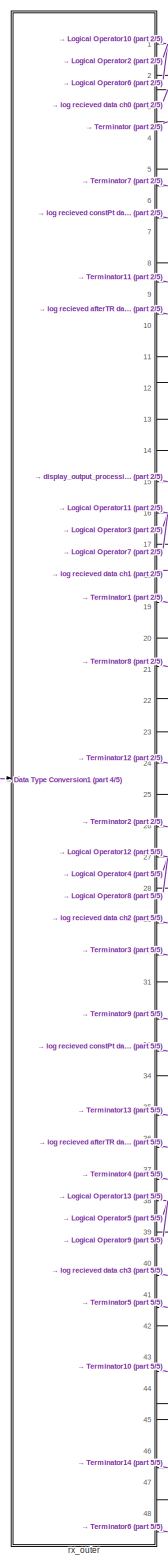
[diagram: root canvas - part 1/5, right side, full height]
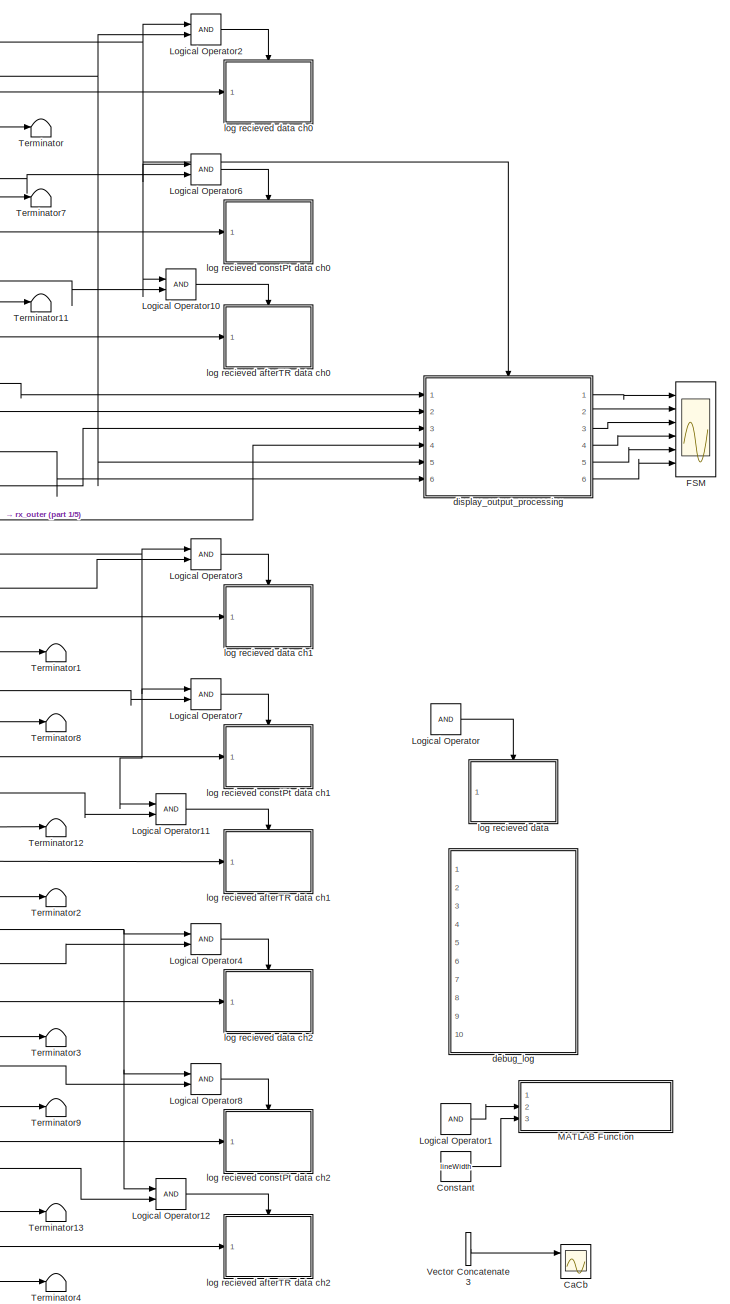
[diagram: root canvas - part 2/5, right side, full height]
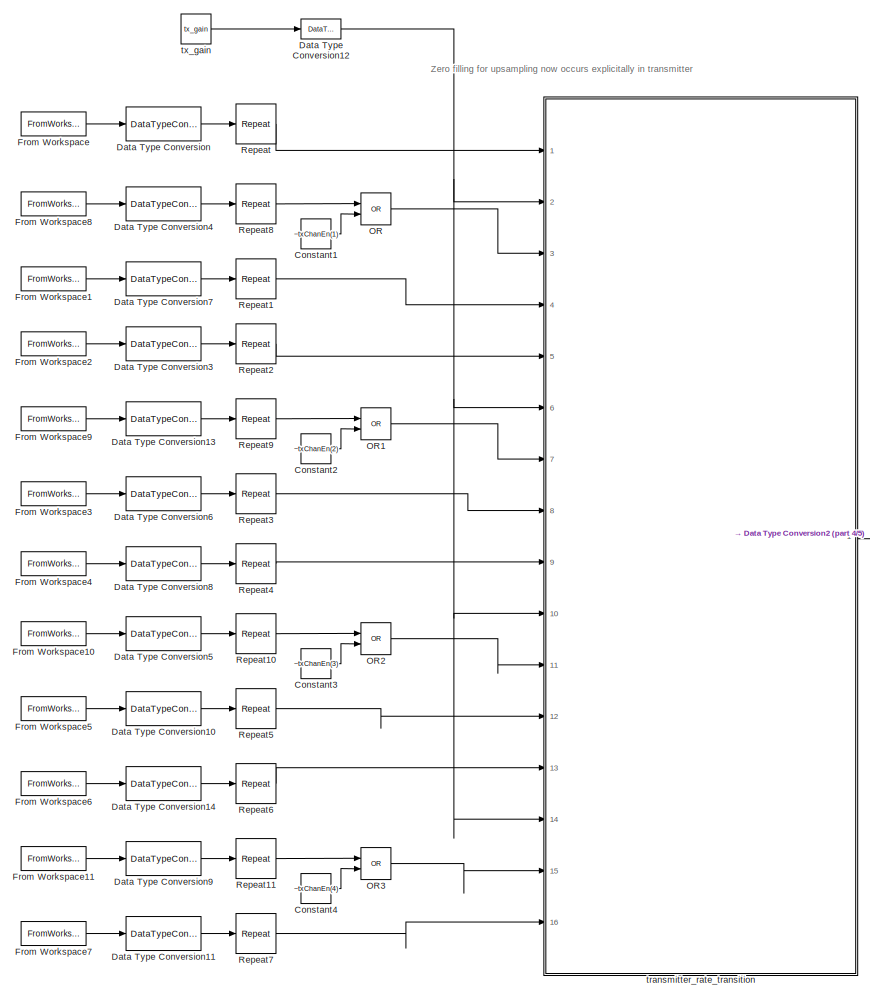
[diagram: root canvas - part 3/5, middle left region]
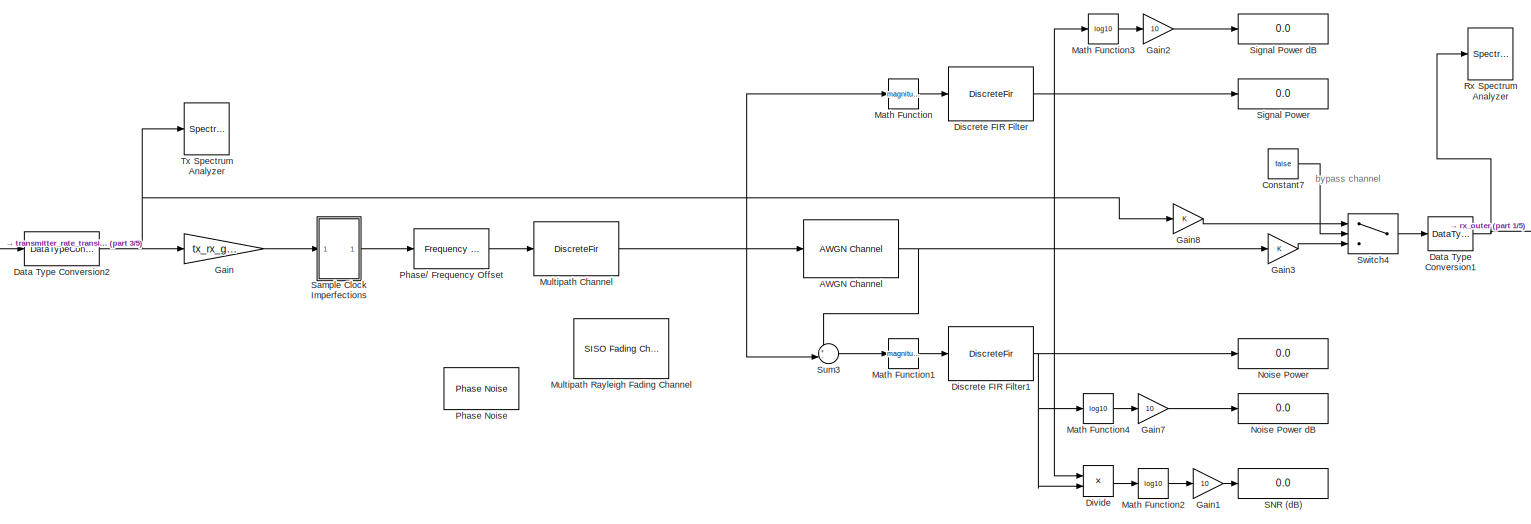
[diagram: root canvas - part 4/5, central region]
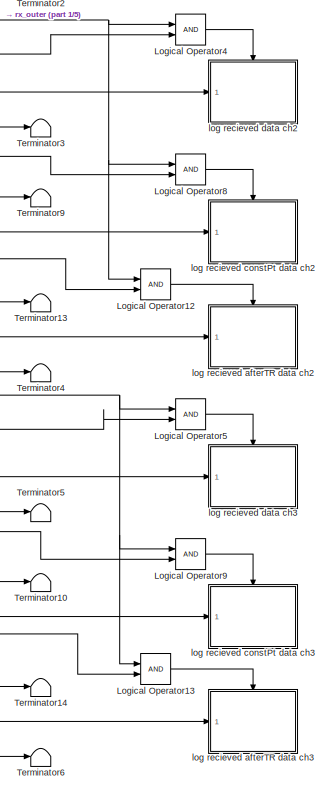
[diagram: root canvas - part 5/5, bottom right region]
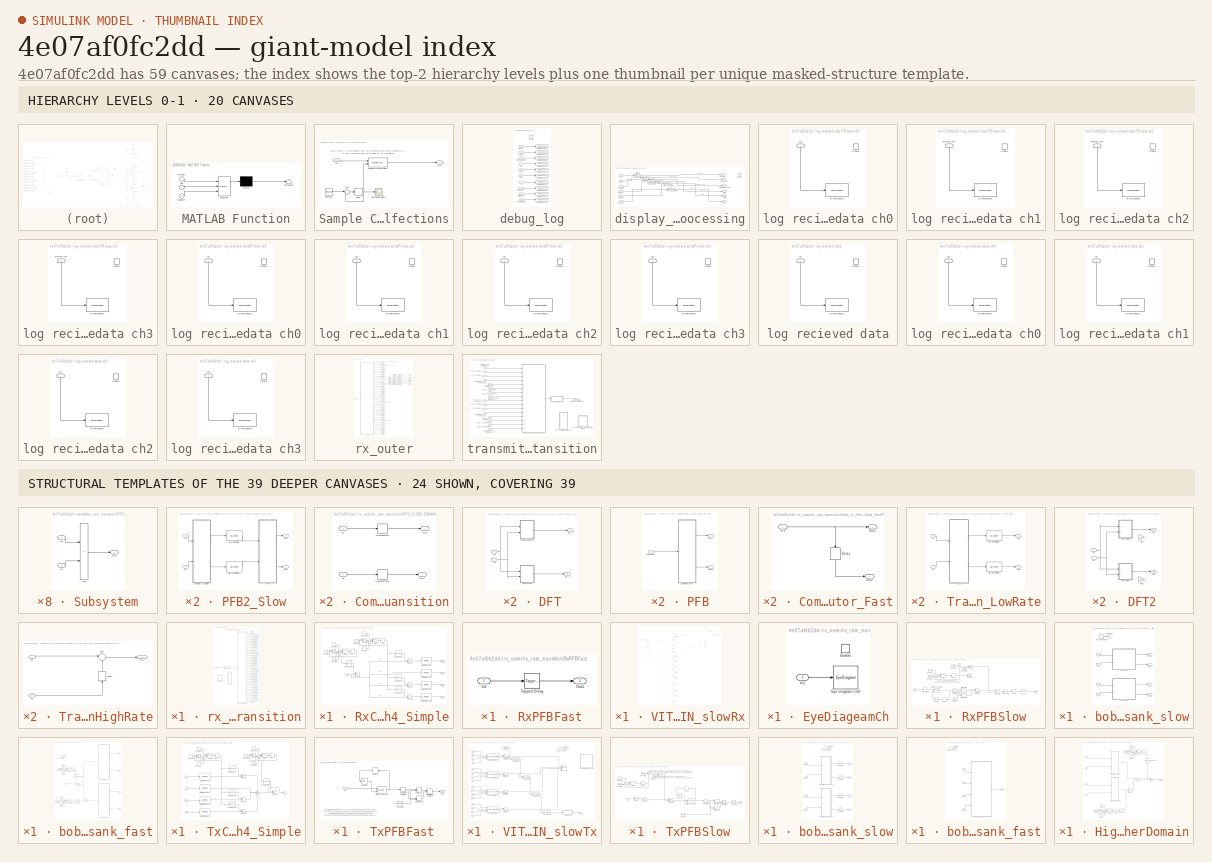
[diagram: thumbnail index - top-2 hierarchy levels (20 canvases) + 24 structural-template representatives of the remaining 39 canvases]
MODEL slx_4e07af0fc2dd
KIND model
CONFIG AbsTol = auto
CONFIG EnableMultiTasking = off
CONFIG FixedStep = auto
CONFIG MaxStep = auto
CONFIG MinStep = auto
CONFIG RelTol = 1e-3
CONFIG SampleTimeConstraint = Unconstrained
CONFIG Solver = FixedStepDiscrete
CONFIG SolverName = FixedStepDiscrete
CONFIG StartTime = 0
CONFIG StopTime = (length(testMsg)+pad_first*2)*basePer
BLOCK [Reference] AWGN Channel  REF=commchan3/AWGN
Channel
  Ports = [1, 1]
  SourceBlock = commchan3/AWGN\nChannel
  SourceProductBaseCode = CM
  SourceType = AWGN Channel
  UserDataPersistent = on
BLOCK [Scope] CaCb
  Commented = on
  Floating = off
  NumInputPorts = 3
  Ports = [3]
  ScopeSpecificationString = Simulink.scopes.TimeScopeBlockCfg('CurrentConfiguration', extmgr.ConfigurationSet(extmgr.Configuration('Core','General UI',true),extmgr.Configuration('Core','Source UI',true),extmgr.Configuration('Sources','WiredSimulink',true,'DataLoggingVariableName','ScopeData1'),extmgr.Configuration('Visuals','Time Domain',true,'SerializedDisplays',{struct('MinYLimReal','-0.05145','MaxYLimReal','0.65186','YLab...<+1591ch>
BLOCK [Constant] Constant
  Commented = on
  Value = lineWidth
BLOCK [Constant] Constant1
  OutDataTypeStr = boolean
  Value = ~txChanEn(1)
BLOCK [Constant] Constant2
  OutDataTypeStr = boolean
  Value = ~txChanEn(2)
BLOCK [Constant] Constant3
  OutDataTypeStr = boolean
  Value = ~txChanEn(3)
BLOCK [Constant] Constant4
  OutDataTypeStr = boolean
  Value = ~txChanEn(4)
BLOCK [Constant] Constant7
  OutDataTypeStr = boolean
  Value = false
BLOCK [DataTypeConversion] Data Type Conversion
  OutDataTypeStr = uint8
  RndMeth = Nearest
  SaturateOnIntegerOverflow = off
BLOCK [DataTypeConversion] Data Type Conversion1
  OutDataTypeStr = single
  RndMeth = Floor
  SaturateOnIntegerOverflow = off
BLOCK [DataTypeConversion] Data Type Conversion10
  OutDataTypeStr = uint8
  RndMeth = Nearest
  SaturateOnIntegerOverflow = off
BLOCK [DataTypeConversion] Data Type Conversion11
  OutDataTypeStr = uint8
  RndMeth = Nearest
  SaturateOnIntegerOverflow = off
BLOCK [DataTypeConversion] Data Type Conversion12
  OutDataTypeStr = single
  RndMeth = Nearest
  SaturateOnIntegerOverflow = off
BLOCK [DataTypeConversion] Data Type Conversion13
  OutDataTypeStr = boolean
  RndMeth = Nearest
  SaturateOnIntegerOverflow = off
BLOCK [DataTypeConversion] Data Type Conversion14
  OutDataTypeStr = uint8
  RndMeth = Nearest
  SaturateOnIntegerOverflow = off
BLOCK [DataTypeConversion] Data Type Conversion2
  OutDataTypeStr = double
  RndMeth = Floor
  SaturateOnIntegerOverflow = off
BLOCK [DataTypeConversion] Data Type Conversion3
  OutDataTypeStr = uint8
  RndMeth = Nearest
  SaturateOnIntegerOverflow = off
BLOCK [DataTypeConversion] Data Type Conversion4
  OutDataTypeStr = boolean
  RndMeth = Nearest
  SaturateOnIntegerOverflow = off
BLOCK [DataTypeConversion] Data Type Conversion5
  OutDataTypeStr = boolean
  RndMeth = Nearest
  SaturateOnIntegerOverflow = off
BLOCK [DataTypeConversion] Data Type Conversion6
  OutDataTypeStr = uint8
  RndMeth = Nearest
  SaturateOnIntegerOverflow = off
BLOCK [DataTypeConversion] Data Type Conversion7
  OutDataTypeStr = uint8
  RndMeth = Nearest
  SaturateOnIntegerOverflow = off
BLOCK [DataTypeConversion] Data Type Conversion8
  OutDataTypeStr = uint8
  RndMeth = Nearest
  SaturateOnIntegerOverflow = off
BLOCK [DataTypeConversion] Data Type Conversion9
  OutDataTypeStr = boolean
  RndMeth = Nearest
  SaturateOnIntegerOverflow = off
BLOCK [DiscreteFir] Discrete FIR Filter
  Coefficients = ones(1,10000)./10000
  InputPortMap = u0
  InputProcessing = Columns as channels (frame based)
  OutputPortMap = o0
  Ports = [1, 1]
BLOCK [DiscreteFir] Discrete FIR Filter1
  Coefficients = ones(1,10000)./10000
  InputPortMap = u0
  InputProcessing = Columns as channels (frame based)
  OutputPortMap = o0
  Ports = [1, 1]
BLOCK [Product] Divide
  Inputs = */
  Ports = [2, 1]
BLOCK [Scope] FSM
  Floating = off
  NumInputPorts = 6
  Ports = [6]
  ScopeSpecificationString = Simulink.scopes.TimeScopeBlockCfg('CurrentConfiguration', extmgr.ConfigurationSet(extmgr.Configuration('Core','General UI',true),extmgr.Configuration('Core','Source UI',true),extmgr.Configuration('Sources','WiredSimulink',true,'DataLoggingVariableName','ScopeData1'),extmgr.Configuration('Visuals','Time Domain',true,'SerializedDisplays',{struct('MinYLimReal','-0.125','MaxYLimReal','1.125','YLabelRe...<+1637ch>
BLOCK [FromWorkspace] From Workspace
  Interpolate = off
  OutputAfterFinalValue = Setting to zero
  SampleTime = basePer*1
  VariableName = simX_ch0
BLOCK [FromWorkspace] From Workspace1
  Interpolate = off
  OutputAfterFinalValue = Setting to zero
  SampleTime = basePer*1
  VariableName = modX_ch0
BLOCK [FromWorkspace] From Workspace10
  Interpolate = off
  OutputAfterFinalValue = Setting to zero
  SampleTime = basePer*1
  VariableName = zeroX_ch2
BLOCK [FromWorkspace] From Workspace11
  Interpolate = off
  OutputAfterFinalValue = Setting to zero
  SampleTime = basePer*1
  VariableName = zeroX_ch3
BLOCK [FromWorkspace] From Workspace2
  Interpolate = off
  OutputAfterFinalValue = Setting to zero
  SampleTime = basePer*1
  VariableName = simX_ch1
BLOCK [FromWorkspace] From Workspace3
  Interpolate = off
  OutputAfterFinalValue = Setting to zero
  SampleTime = basePer*1
  VariableName = modX_ch1
BLOCK [FromWorkspace] From Workspace4
  Interpolate = off
  OutputAfterFinalValue = Setting to zero
  SampleTime = basePer*1
  VariableName = simX_ch2
BLOCK [FromWorkspace] From Workspace5
  Interpolate = off
  OutputAfterFinalValue = Setting to zero
  SampleTime = basePer*1
  VariableName = modX_ch2
BLOCK [FromWorkspace] From Workspace6
  Interpolate = off
  OutputAfterFinalValue = Setting to zero
  SampleTime = basePer*1
  VariableName = simX_ch3
BLOCK [FromWorkspace] From Workspace7
  Interpolate = off
  OutputAfterFinalValue = Setting to zero
  SampleTime = basePer*1
  VariableName = modX_ch3
BLOCK [FromWorkspace] From Workspace8
  Interpolate = off
  OutputAfterFinalValue = Setting to zero
  SampleTime = basePer*1
  VariableName = zeroX_ch0
BLOCK [FromWorkspace] From Workspace9
  Interpolate = off
  OutputAfterFinalValue = Setting to zero
  SampleTime = basePer*1
  VariableName = zeroX_ch1
BLOCK [Gain] Gain
  Gain = tx_rx_gain
BLOCK [Gain] Gain1
  Gain = 10
BLOCK [Gain] Gain2
  Gain = 10
BLOCK [Gain] Gain3
BLOCK [Gain] Gain7
  Gain = 10
BLOCK [Gain] Gain8
BLOCK [Logic] Logical Operator
  AllPortsSameDT = off
  Commented = on
  OutDataTypeStr = boolean
  Ports = [2, 1]
BLOCK [Logic] Logical Operator1
  AllPortsSameDT = off
  Commented = on
  OutDataTypeStr = boolean
  Ports = [2, 1]
BLOCK [Logic] Logical Operator10
  AllPortsSameDT = off
  OutDataTypeStr = boolean
  Ports = [2, 1]
BLOCK [Logic] Logical Operator11
  AllPortsSameDT = off
  OutDataTypeStr = boolean
  Ports = [2, 1]
BLOCK [Logic] Logical Operator12
  AllPortsSameDT = off
  OutDataTypeStr = boolean
  Ports = [2, 1]
BLOCK [Logic] Logical Operator13
  AllPortsSameDT = off
  OutDataTypeStr = boolean
  Ports = [2, 1]
BLOCK [Logic] Logical Operator2
  AllPortsSameDT = off
  OutDataTypeStr = boolean
  Ports = [2, 1]
BLOCK [Logic] Logical Operator3
  AllPortsSameDT = off
  OutDataTypeStr = boolean
  Ports = [2, 1]
BLOCK [Logic] Logical Operator4
  AllPortsSameDT = off
  OutDataTypeStr = boolean
  Ports = [2, 1]
BLOCK [Logic] Logical Operator5
  AllPortsSameDT = off
  OutDataTypeStr = boolean
  Ports = [2, 1]
BLOCK [Logic] Logical Operator6
  AllPortsSameDT = off
  OutDataTypeStr = boolean
  Ports = [2, 1]
BLOCK [Logic] Logical Operator7
  AllPortsSameDT = off
  OutDataTypeStr = boolean
  Ports = [2, 1]
BLOCK [Logic] Logical Operator8
  AllPortsSameDT = off
  OutDataTypeStr = boolean
  Ports = [2, 1]
BLOCK [Logic] Logical Operator9
  AllPortsSameDT = off
  OutDataTypeStr = boolean
  Ports = [2, 1]
BLOCK [SubSystem] MATLAB Function
  Commented = on
  ErrorFcn = Stateflow.Translate.translate
  PermitHierarchicalResolution = ExplicitOnly
  Ports = [3]
  RequestExecContextInheritance = off
  SFBlockType = MATLAB Function
  TreatAsAtomicUnit = on
BLOCK [Demux] MATLAB Function/ Demux 
  Outputs = 1
  Ports = [1, 1]
BLOCK [S-Function] MATLAB Function/ SFunction 
  EnableBusSupport = on
  FunctionName = sf_sfun
  PortCounts = [3 1]
  Ports = [3, 1]
  SFcnIsStateOwnerBlock = off
  SFunctionDeploymentMode = off
  Tag = Stateflow S-Function 2
BLOCK [Terminator] MATLAB Function/ Terminator 
BLOCK [Inport] MATLAB Function/lineWidth
  Port = 3
BLOCK [Inport] MATLAB Function/symbolIn
BLOCK [Inport] MATLAB Function/valid
  Port = 2
BLOCK [Math] Math Function
  Operator = magnitude^2
  OutputSignalType = real
  Ports = [1, 1]
  SignedPower = on
BLOCK [Math] Math Function1
  Operator = magnitude^2
  OutputSignalType = real
  Ports = [1, 1]
  SignedPower = on
BLOCK [Math] Math Function2
  Operator = log10
  OutputSignalType = real
  Ports = [1, 1]
  SignedPower = on
BLOCK [Math] Math Function3
  Operator = log10
  OutputSignalType = real
  Ports = [1, 1]
  SignedPower = on
BLOCK [Math] Math Function4
  Operator = log10
  OutputSignalType = real
  Ports = [1, 1]
  SignedPower = on
BLOCK [DiscreteFir] Multipath Channel
  Coefficients = channelFIR
  InputPortMap = u0
  InputProcessing = Columns as channels (frame based)
  OutputPortMap = o0
  Ports = [1, 1]
BLOCK [Reference] Multipath Rayleigh Fading Channel  REF=commchan3/SISO Fading Channel
  Commented = on
  Ports = [1, 3]
  SourceBlock = commchan3/SISO Fading Channel
  SourceProductBaseCode = CM
  SourceType = SISO Fading Channel
BLOCK [Display] Noise Power
  Decimation = 1
  Ports = [1]
BLOCK [Display] Noise Power dB
  Decimation = 1
  Ports = [1]
BLOCK [Logic] OR
  AllPortsSameDT = off
  IconShape = distinctive
  Operator = OR
  OutDataTypeStr = boolean
  Ports = [2, 1]
BLOCK [Logic] OR1
  AllPortsSameDT = off
  IconShape = distinctive
  Operator = OR
  OutDataTypeStr = boolean
  Ports = [2, 1]
BLOCK [Logic] OR2
  AllPortsSameDT = off
  IconShape = distinctive
  Operator = OR
  OutDataTypeStr = boolean
  Ports = [2, 1]
BLOCK [Logic] OR3
  AllPortsSameDT = off
  IconShape = distinctive
  Operator = OR
  OutDataTypeStr = boolean
  Ports = [2, 1]
BLOCK [Reference] Phase Noise  REF=impairlib/Phase
Noise
  Commented = on
  Ports = [1, 1]
  SourceBlock = impairlib/Phase\nNoise
  SourceProductBaseCode = CM,AM,SX
  SourceType = Phase Noise
BLOCK [Reference] Phase// Frequency Offset  REF=commrflib2/Phase//
Frequency
Offset
  Ports = [1, 1]
  SourceBlock = commrflib2/Phase//\nFrequency\nOffset
  SourceProductBaseCode = CM
  SourceType = Phase/Frequency Offset
BLOCK [Reference] Repeat  REF=dspsigops/Repeat
  Ports = [1, 1]
  SourceBlock = dspsigops/Repeat
  SourceProductBaseCode = DS
  SourceType = Repeat
  UserDataPersistent = on
BLOCK [Reference] Repeat1  REF=dspsigops/Repeat
  Ports = [1, 1]
  SourceBlock = dspsigops/Repeat
  SourceProductBaseCode = DS
  SourceType = Repeat
  UserDataPersistent = on
BLOCK [Reference] Repeat10  REF=dspsigops/Repeat
  Ports = [1, 1]
  SourceBlock = dspsigops/Repeat
  SourceProductBaseCode = DS
  SourceType = Repeat
  UserDataPersistent = on
BLOCK [Reference] Repeat11  REF=dspsigops/Repeat
  Ports = [1, 1]
  SourceBlock = dspsigops/Repeat
  SourceProductBaseCode = DS
  SourceType = Repeat
  UserDataPersistent = on
BLOCK [Reference] Repeat2  REF=dspsigops/Repeat
  Ports = [1, 1]
  SourceBlock = dspsigops/Repeat
  SourceProductBaseCode = DS
  SourceType = Repeat
  UserDataPersistent = on
BLOCK [Reference] Repeat3  REF=dspsigops/Repeat
  Ports = [1, 1]
  SourceBlock = dspsigops/Repeat
  SourceProductBaseCode = DS
  SourceType = Repeat
  UserDataPersistent = on
BLOCK [Reference] Repeat4  REF=dspsigops/Repeat
  Ports = [1, 1]
  SourceBlock = dspsigops/Repeat
  SourceProductBaseCode = DS
  SourceType = Repeat
  UserDataPersistent = on
BLOCK [Reference] Repeat5  REF=dspsigops/Repeat
  Ports = [1, 1]
  SourceBlock = dspsigops/Repeat
  SourceProductBaseCode = DS
  SourceType = Repeat
  UserDataPersistent = on
BLOCK [Reference] Repeat6  REF=dspsigops/Repeat
  Ports = [1, 1]
  SourceBlock = dspsigops/Repeat
  SourceProductBaseCode = DS
  SourceType = Repeat
  UserDataPersistent = on
BLOCK [Reference] Repeat7  REF=dspsigops/Repeat
  Ports = [1, 1]
  SourceBlock = dspsigops/Repeat
  SourceProductBaseCode = DS
  SourceType = Repeat
  UserDataPersistent = on
BLOCK [Reference] Repeat8  REF=dspsigops/Repeat
  Ports = [1, 1]
  SourceBlock = dspsigops/Repeat
  SourceProductBaseCode = DS
  SourceType = Repeat
  UserDataPersistent = on
BLOCK [Reference] Repeat9  REF=dspsigops/Repeat
  Ports = [1, 1]
  SourceBlock = dspsigops/Repeat
  SourceProductBaseCode = DS
  SourceType = Repeat
  UserDataPersistent = on
BLOCK [SpectrumAnalyzer] Rx Spectrum Analyzer
  Ports = [1]
  ScopeSpecificationString = spbscopes.SpectrumAnalyzerBlockCfg('CurrentConfiguration', extmgr.ConfigurationSet(extmgr.Configuration('Core','General UI',true),extmgr.Configuration('Core','Source UI',true),extmgr.Configuration('Sources','WiredSimulink',true),extmgr.Configuration('Visuals','Spectrum',true,'AxesProperties',struct('Color',{[0 0 0],[0 0 0]},'XColor',{[0.686274509803922 0.686274509803922 0.686274509803922],[0.68627...<+2307ch>
BLOCK [Display] SNR (dB)
  Decimation = 1
  Ports = [1]
BLOCK [SubSystem] Sample Clock Imperfections
  Ports = [1, 1]
  RequestExecContextInheritance = off
BLOCK [Constant] Sample Clock Imperfections/Constant
  Value = txTimingOffset
BLOCK [Delay] Sample Clock Imperfections/Delay
  DelayLength = 1
  InitialCondition = txTimingPhase
  InputPortMap = u0
  Ports = [1, 1]
BLOCK [Inport] Sample Clock Imperfections/In1
BLOCK [Outport] Sample Clock Imperfections/Out1
  VectorParamsAs1DForOutWhenUnconnected = off
BLOCK [Scope] Sample Clock Imperfections/SampleClockDelay
  DefaultConfigurationName = spbscopes.TimeScopeBlockCfg
  Floating = off
  NumInputPorts = 1
  Ports = [1]
  ScopeSpecificationString = spbscopes.TimeScopeBlockCfg('CurrentConfiguration', extmgr.ConfigurationSet(extmgr.Configuration('Core','General UI',true),extmgr.Configuration('Core','Source UI',true),extmgr.Configuration('Sources','WiredSimulink',true,'PointsPerSignal',5000000,'DataLoggingVariableName','ScopeData1'),extmgr.Configuration('Visuals','Time Domain',true,'DisplayPropertyDefaults',struct('MinYLimReal','400.54585','Max...<+1478ch>
  UserDataPersistent = on
BLOCK [Sum] Sample Clock Imperfections/Sum
  Inputs = |++
  Ports = [2, 1]
BLOCK [Reference] Sample Clock Imperfections/Variable Fractional Delay  REF=dspsigops/Variable
Fractional Delay
  Ports = [2, 1]
  SourceBlock = dspsigops/Variable\nFractional Delay
  SourceProductBaseCode = DS
  SourceType = Variable Fractional Delay
  UserDataPersistent = on
BLOCK [Display] Signal Power
  Decimation = 1
  Ports = [1]
BLOCK [Display] Signal Power dB
  Decimation = 1
  Ports = [1]
BLOCK [Sum] Sum3
  Inputs = +-|
  Ports = [2, 1]
BLOCK [Switch] Switch4
  Criteria = u2 > Threshold
  InputSameDT = off
  SaturateOnIntegerOverflow = off
BLOCK [Terminator] Terminator
BLOCK [Terminator] Terminator1
BLOCK [Terminator] Terminator10
BLOCK [Terminator] Terminator11
BLOCK [Terminator] Terminator12
BLOCK [Terminator] Terminator13
BLOCK [Terminator] Terminator14
BLOCK [Terminator] Terminator2
BLOCK [Terminator] Terminator3
BLOCK [Terminator] Terminator4
BLOCK [Terminator] Terminator5
BLOCK [Terminator] Terminator6
BLOCK [Terminator] Terminator7
BLOCK [Terminator] Terminator8
BLOCK [Terminator] Terminator9
BLOCK [SpectrumAnalyzer] Tx Spectrum Analyzer
  Ports = [1]
  ScopeSpecificationString = spbscopes.SpectrumAnalyzerBlockCfg('CurrentConfiguration', extmgr.ConfigurationSet(extmgr.Configuration('Core','General UI',true),extmgr.Configuration('Core','Source UI',true),extmgr.Configuration('Sources','WiredSimulink',true),extmgr.Configuration('Visuals','Spectrum',true,'AxesProperties',struct('Color',{[0 0 0],[0 0 0]},'XColor',{[0.686274509803922 0.686274509803922 0.686274509803922],[0.68627...<+2308ch>
BLOCK [Concatenate] Vector Concatenate3
  Commented = on
  ConcatenateDimension = 2
  Mode = Multidimensional array
  Ports = [2, 1]
BLOCK [SubSystem] debug_log
  Commented = on
  Ports = [10, 0, 1]
  RequestExecContextInheritance = off
BLOCK [EnablePort] debug_log/Enable
  Ports = []
BLOCK [ToWorkspace] debug_log/To Workspace1
  FixptAsFi = on
  MaxDataPoints = inf
  Ports = [1]
  SampleTime = -1
  Save2DSignal = 2-D array (concatenate along first dimension)
  VariableName = rx_stfDone
BLOCK [ToWorkspace] debug_log/To Workspace10
  FixptAsFi = on
  MaxDataPoints = inf
  Ports = [1]
  SampleTime = -1
  Save2DSignal = 2-D array (concatenate along first dimension)
  VariableName = rx_agcCorrection
BLOCK [ToWorkspace] debug_log/To Workspace2
  FixptAsFi = on
  MaxDataPoints = inf
  Ports = [1]
  SampleTime = -1
  Save2DSignal = 2-D array (concatenate along first dimension)
  VariableName = rx_cefDone1
BLOCK [ToWorkspace] debug_log/To Workspace3
  FixptAsFi = on
  MaxDataPoints = inf
  Ports = [1]
  SampleTime = -1
  Save2DSignal = 2-D array (concatenate along first dimension)
  VariableName = rx_preambleDone
BLOCK [ToWorkspace] debug_log/To Workspace4
  FixptAsFi = on
  MaxDataPoints = inf
  Ports = [1]
  SampleTime = -1
  Save2DSignal = 2-D array (concatenate along first dimension)
  VariableName = rx_failed
BLOCK [ToWorkspace] debug_log/To Workspace5
  FixptAsFi = on
  MaxDataPoints = inf
  Ports = [1]
  SampleTime = -1
  Save2DSignal = 2-D array (concatenate along first dimension)
  VariableName = rx_valid
BLOCK [ToWorkspace] debug_log/To Workspace6
  FixptAsFi = on
  MaxDataPoints = inf
  Ports = [1]
  SampleTime = -1
  Save2DSignal = 2-D array (concatenate along first dimension)
  VariableName = rx_ca
BLOCK [ToWorkspace] debug_log/To Workspace7
  FixptAsFi = on
  MaxDataPoints = inf
  Ports = [1]
  SampleTime = -1
  Save2DSignal = 2-D array (concatenate along first dimension)
  VariableName = rx_cb
BLOCK [ToWorkspace] debug_log/To Workspace8
  FixptAsFi = on
  MaxDataPoints = inf
  Ports = [1]
  SampleTime = -1
  Save2DSignal = 2-D array (concatenate along first dimension)
  VariableName = rx_timingDelay
BLOCK [ToWorkspace] debug_log/To Workspace9
  FixptAsFi = on
  MaxDataPoints = inf
  Ports = [1]
  SampleTime = -1
  Save2DSignal = 2-D array (concatenate along first dimension)
  VariableName = rx_carrierPhase
BLOCK [Inport] debug_log/agcCorrection
  Port = 10
BLOCK [Inport] debug_log/ca
  Port = 6
BLOCK [Inport] debug_log/carrierPhase
  Port = 9
BLOCK [Inport] debug_log/cb
  Port = 7
BLOCK [Inport] debug_log/cefDone
  Port = 2
BLOCK [Inport] debug_log/failed
  Port = 4
BLOCK [Inport] debug_log/preambleDone
  Port = 3
BLOCK [Inport] debug_log/stfDone
BLOCK [Inport] debug_log/timingDelay
  Port = 8
BLOCK [Inport] debug_log/valid
  Port = 5
BLOCK [SubSystem] display_output_processing
  Ports = [6, 6, 1]
  RequestExecContextInheritance = off
BLOCK [EnablePort] display_output_processing/Enable
  Ports = []
BLOCK [Outport] display_output_processing/ack
  Port = 6
  VectorParamsAs1DForOutWhenUnconnected = off
BLOCK [Inport] display_output_processing/ack_in
  Port = 6
BLOCK [DataTypeConversion] display_output_processing/ack_upsample
  RndMeth = Floor
  SaturateOnIntegerOverflow = off
BLOCK [Inport] display_output_processing/cef
  Port = 2
BLOCK [DataTypeConversion] display_output_processing/cefDone
  RndMeth = Floor
  SaturateOnIntegerOverflow = off
BLOCK [Outport] display_output_processing/cef_done
  Port = 2
  VectorParamsAs1DForOutWhenUnconnected = off
BLOCK [Outport] display_output_processing/failed
  Port = 4
  VectorParamsAs1DForOutWhenUnconnected = off
BLOCK [DataTypeConversion] display_output_processing/failed_
  RndMeth = Floor
  SaturateOnIntegerOverflow = off
BLOCK [Inport] display_output_processing/failed_in
  Port = 4
BLOCK [Inport] display_output_processing/preamble
  Port = 3
BLOCK [DataTypeConversion] display_output_processing/preambleDone_upsample
  RndMeth = Floor
  SaturateOnIntegerOverflow = off
BLOCK [Outport] display_output_processing/preamble_done
  Port = 3
  VectorParamsAs1DForOutWhenUnconnected = off
BLOCK [Inport] display_output_processing/stf
BLOCK [DataTypeConversion] display_output_processing/stfDone
  RndMeth = Floor
  SaturateOnIntegerOverflow = off
BLOCK [Outport] display_output_processing/stf_done
  VectorParamsAs1DForOutWhenUnconnected = off
BLOCK [Outport] display_output_processing/valid
  Port = 5
  VectorParamsAs1DForOutWhenUnconnected = off
BLOCK [Inport] display_output_processing/valid_in
  Port = 5
BLOCK [DataTypeConversion] display_output_processing/valid_upsample
  RndMeth = Floor
  SaturateOnIntegerOverflow = off
BLOCK [SubSystem] log recieved afterTR data ch0
  Ports = [1, 0, 1]
  RequestExecContextInheritance = off
BLOCK [EnablePort] log recieved afterTR data ch0/Enable
  Ports = []
BLOCK [Inport] log recieved afterTR data ch0/In1
  NameLocation = right
BLOCK [ToWorkspace] log recieved afterTR data ch0/To Workspace1
  FixptAsFi = on
  MaxDataPoints = inf
  Ports = [1]
  SampleTime = -1
  Save2DSignal = 2-D array (concatenate along first dimension)
  VariableName = data_recieved_afterTR_ch0
BLOCK [SubSystem] log recieved afterTR data ch1
  Ports = [1, 0, 1]
  RequestExecContextInheritance = off
BLOCK [EnablePort] log recieved afterTR data ch1/Enable
  Ports = []
BLOCK [ToWorkspace] log recieved afterTR data ch1/To Workspace1
  FixptAsFi = on
  MaxDataPoints = inf
  Ports = [1]
  SampleTime = -1
  Save2DSignal = 2-D array (concatenate along first dimension)
  VariableName = data_recieved_afterTR_ch1
BLOCK [Inport] log recieved afterTR data ch1/afterTR_ch1
  NameLocation = right
BLOCK [SubSystem] log recieved afterTR data ch2
  Ports = [1, 0, 1]
  RequestExecContextInheritance = off
BLOCK [EnablePort] log recieved afterTR data ch2/Enable
  Ports = []
BLOCK [ToWorkspace] log recieved afterTR data ch2/To Workspace1
  FixptAsFi = on
  MaxDataPoints = inf
  Ports = [1]
  SampleTime = -1
  Save2DSignal = 2-D array (concatenate along first dimension)
  VariableName = data_recieved_afterTR_ch2
BLOCK [Inport] log recieved afterTR data ch2/afterTR_ch2
  NameLocation = right
BLOCK [SubSystem] log recieved afterTR data ch3
  Ports = [1, 0, 1]
  RequestExecContextInheritance = off
BLOCK [EnablePort] log recieved afterTR data ch3/Enable
  Ports = []
BLOCK [ToWorkspace] log recieved afterTR data ch3/To Workspace1
  FixptAsFi = on
  MaxDataPoints = inf
  Ports = [1]
  SampleTime = -1
  Save2DSignal = 2-D array (concatenate along first dimension)
  VariableName = data_recieved_afterTR_ch3
BLOCK [Inport] log recieved afterTR data ch3/afterTR_ch3
  NameLocation = right
BLOCK [SubSystem] log recieved constPt data ch0
  Ports = [1, 0, 1]
  RequestExecContextInheritance = off
BLOCK [EnablePort] log recieved constPt data ch0/Enable
  Ports = []
BLOCK [Inport] log recieved constPt data ch0/In1
  NameLocation = right
BLOCK [ToWorkspace] log recieved constPt data ch0/To Workspace1
  FixptAsFi = on
  MaxDataPoints = inf
  Ports = [1]
  SampleTime = -1
  Save2DSignal = 2-D array (concatenate along first dimension)
  VariableName = data_recieved_constPt_ch0
BLOCK [SubSystem] log recieved constPt data ch1
  Ports = [1, 0, 1]
  RequestExecContextInheritance = off
BLOCK [EnablePort] log recieved constPt data ch1/Enable
  Ports = []
BLOCK [Inport] log recieved constPt data ch1/In1
  NameLocation = right
BLOCK [ToWorkspace] log recieved constPt data ch1/To Workspace1
  FixptAsFi = on
  MaxDataPoints = inf
  Ports = [1]
  SampleTime = -1
  Save2DSignal = 2-D array (concatenate along first dimension)
  VariableName = data_recieved_constPt_ch1
BLOCK [SubSystem] log recieved constPt data ch2
  Ports = [1, 0, 1]
  RequestExecContextInheritance = off
BLOCK [EnablePort] log recieved constPt data ch2/Enable
  Ports = []
BLOCK [Inport] log recieved constPt data ch2/In1
  NameLocation = right
BLOCK [ToWorkspace] log recieved constPt data ch2/To Workspace1
  FixptAsFi = on
  MaxDataPoints = inf
  Ports = [1]
  SampleTime = -1
  Save2DSignal = 2-D array (concatenate along first dimension)
  VariableName = data_recieved_constPt_ch2
BLOCK [SubSystem] log recieved constPt data ch3
  Ports = [1, 0, 1]
  RequestExecContextInheritance = off
BLOCK [EnablePort] log recieved constPt data ch3/Enable
  Ports = []
BLOCK [Inport] log recieved constPt data ch3/In1
  NameLocation = right
BLOCK [ToWorkspace] log recieved constPt data ch3/To Workspace1
  FixptAsFi = on
  MaxDataPoints = inf
  Ports = [1]
  SampleTime = -1
  Save2DSignal = 2-D array (concatenate along first dimension)
  VariableName = data_recieved_constPt_ch3
BLOCK [SubSystem] log recieved data
  Commented = on
  Ports = [1, 0, 1]
  RequestExecContextInheritance = off
BLOCK [SubSystem] log recieved data ch0
  Ports = [1, 0, 1]
  RequestExecContextInheritance = off
BLOCK [EnablePort] log recieved data ch0/Enable
  Ports = []
BLOCK [Inport] log recieved data ch0/In1
  NameLocation = right
BLOCK [ToWorkspace] log recieved data ch0/To Workspace1
  FixptAsFi = on
  MaxDataPoints = inf
  Ports = [1]
  SampleTime = -1
  Save2DSignal = 2-D array (concatenate along first dimension)
  VariableName = data_recieved_packed_ch0
BLOCK [SubSystem] log recieved data ch1
  Ports = [1, 0, 1]
  RequestExecContextInheritance = off
BLOCK [EnablePort] log recieved data ch1/Enable
  Ports = []
BLOCK [Inport] log recieved data ch1/In1
  NameLocation = right
BLOCK [ToWorkspace] log recieved data ch1/To Workspace1
  FixptAsFi = on
  MaxDataPoints = inf
  Ports = [1]
  SampleTime = -1
  Save2DSignal = 2-D array (concatenate along first dimension)
  VariableName = data_recieved_packed_ch1
BLOCK [SubSystem] log recieved data ch2
  Ports = [1, 0, 1]
  RequestExecContextInheritance = off
BLOCK [EnablePort] log recieved data ch2/Enable
  Ports = []
BLOCK [Inport] log recieved data ch2/In1
  NameLocation = right
BLOCK [ToWorkspace] log recieved data ch2/To Workspace1
  FixptAsFi = on
  MaxDataPoints = inf
  Ports = [1]
  SampleTime = -1
  Save2DSignal = 2-D array (concatenate along first dimension)
  VariableName = data_recieved_packed_ch2
BLOCK [SubSystem] log recieved data ch3
  Ports = [1, 0, 1]
  RequestExecContextInheritance = off
BLOCK [EnablePort] log recieved data ch3/Enable
  Ports = []
BLOCK [Inport] log recieved data ch3/In1
  NameLocation = right
BLOCK [ToWorkspace] log recieved data ch3/To Workspace1
  FixptAsFi = on
  MaxDataPoints = inf
  Ports = [1]
  SampleTime = -1
  Save2DSignal = 2-D array (concatenate along first dimension)
  VariableName = data_recieved_packed_ch3
BLOCK [EnablePort] log recieved data/Enable
  Ports = []
BLOCK [Inport] log recieved data/In1
  NameLocation = right
BLOCK [ToWorkspace] log recieved data/To Workspace1
  FixptAsFi = on
  MaxDataPoints = inf
  Ports = [1]
  SampleTime = -1
  Save2DSignal = 2-D array (concatenate along first dimension)
  VariableName = data_recieved
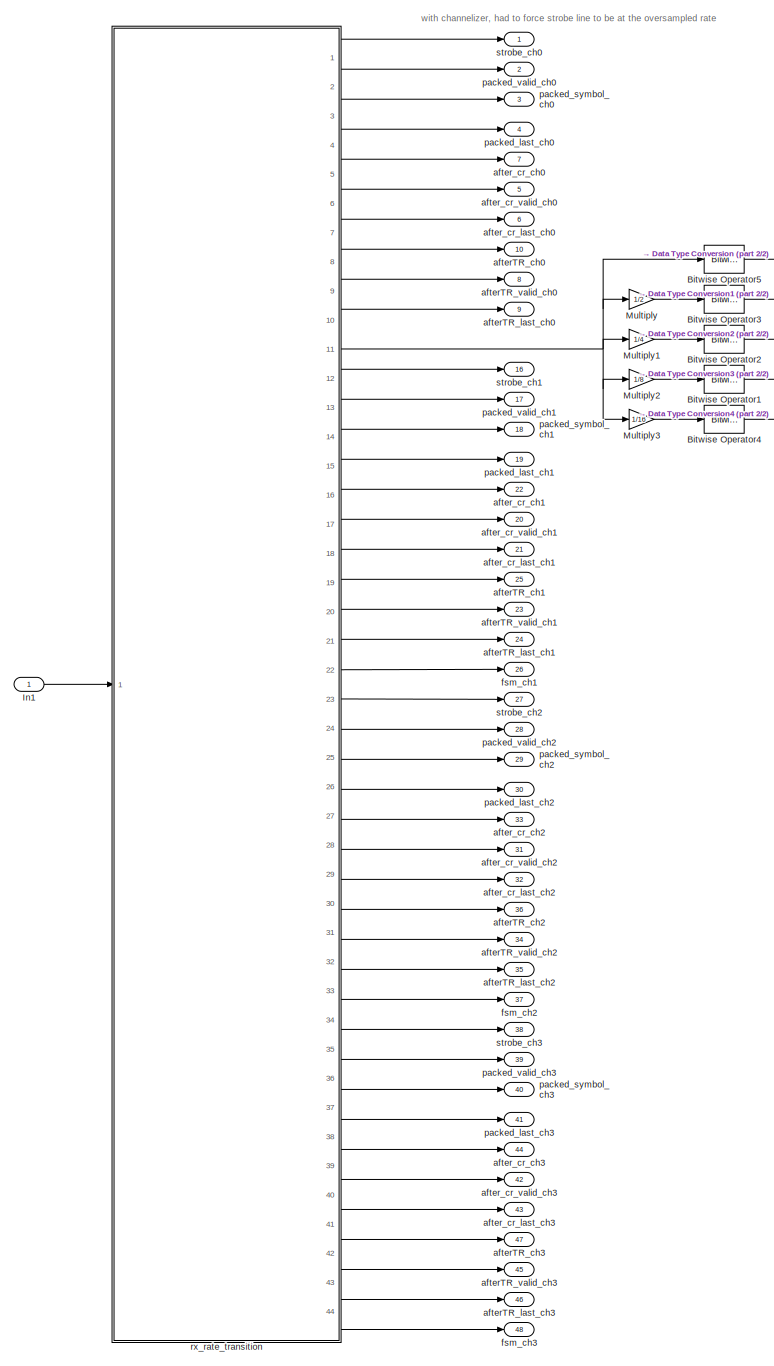
[diagram: rx_outer - part 1/2, center side, full height]
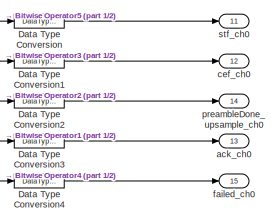
[diagram: rx_outer - part 2/2, top right region]
BLOCK [SubSystem] rx_outer
  Ports = [1, 48]
  RequestExecContextInheritance = off
  TreatAsAtomicUnit = on
BLOCK [Reference] rx_outer/Bitwise Operator1  REF=simulink/Logic and Bit
Operations/Bitwise
Operator
  Ports = [1, 1]
  SourceBlock = simulink/Logic and Bit\nOperations/Bitwise\nOperator
  SourceProductBaseCode = SL
  SourceType = Bitwise Operator
BLOCK [Reference] rx_outer/Bitwise Operator2  REF=simulink/Logic and Bit
Operations/Bitwise
Operator
  Ports = [1, 1]
  SourceBlock = simulink/Logic and Bit\nOperations/Bitwise\nOperator
  SourceProductBaseCode = SL
  SourceType = Bitwise Operator
BLOCK [Reference] rx_outer/Bitwise Operator3  REF=simulink/Logic and Bit
Operations/Bitwise
Operator
  Ports = [1, 1]
  SourceBlock = simulink/Logic and Bit\nOperations/Bitwise\nOperator
  SourceProductBaseCode = SL
  SourceType = Bitwise Operator
BLOCK [Reference] rx_outer/Bitwise Operator4  REF=simulink/Logic and Bit
Operations/Bitwise
Operator
  Ports = [1, 1]
  SourceBlock = simulink/Logic and Bit\nOperations/Bitwise\nOperator
  SourceProductBaseCode = SL
  SourceType = Bitwise Operator
BLOCK [Reference] rx_outer/Bitwise Operator5  REF=simulink/Logic and Bit
Operations/Bitwise
Operator
  Ports = [1, 1]
  SourceBlock = simulink/Logic and Bit\nOperations/Bitwise\nOperator
  SourceProductBaseCode = SL
  SourceType = Bitwise Operator
BLOCK [DataTypeConversion] rx_outer/Data Type Conversion
  OutDataTypeStr = boolean
  RndMeth = Floor
  SaturateOnIntegerOverflow = off
BLOCK [DataTypeConversion] rx_outer/Data Type Conversion1
  OutDataTypeStr = boolean
  RndMeth = Floor
  SaturateOnIntegerOverflow = off
BLOCK [DataTypeConversion] rx_outer/Data Type Conversion2
  OutDataTypeStr = boolean
  RndMeth = Floor
  SaturateOnIntegerOverflow = off
BLOCK [DataTypeConversion] rx_outer/Data Type Conversion3
  OutDataTypeStr = boolean
  RndMeth = Floor
  SaturateOnIntegerOverflow = off
BLOCK [DataTypeConversion] rx_outer/Data Type Conversion4
  OutDataTypeStr = boolean
  RndMeth = Floor
  SaturateOnIntegerOverflow = off
BLOCK [Inport] rx_outer/In1
BLOCK [Gain] rx_outer/Multiply
  Gain = 1/2
BLOCK [Gain] rx_outer/Multiply1
  Gain = 1/4
BLOCK [Gain] rx_outer/Multiply2
  Gain = 1/8
BLOCK [Gain] rx_outer/Multiply3
  Gain = 1/16
BLOCK [Outport] rx_outer/ack_ch0
  Port = 13
  VectorParamsAs1DForOutWhenUnconnected = off
BLOCK [Outport] rx_outer/afterTR_ch0
  Port = 10
  VectorParamsAs1DForOutWhenUnconnected = off
BLOCK [Outport] rx_outer/afterTR_ch1
  Port = 25
  VectorParamsAs1DForOutWhenUnconnected = off
BLOCK [Outport] rx_outer/afterTR_ch2
  Port = 36
  VectorParamsAs1DForOutWhenUnconnected = off
BLOCK [Outport] rx_outer/afterTR_ch3
  Port = 47
  VectorParamsAs1DForOutWhenUnconnected = off
BLOCK [Outport] rx_outer/afterTR_last_ch0
  Port = 9
  VectorParamsAs1DForOutWhenUnconnected = off
BLOCK [Outport] rx_outer/afterTR_last_ch1
  Port = 24
  VectorParamsAs1DForOutWhenUnconnected = off
BLOCK [Outport] rx_outer/afterTR_last_ch2
  Port = 35
  VectorParamsAs1DForOutWhenUnconnected = off
BLOCK [Outport] rx_outer/afterTR_last_ch3
  Port = 46
  VectorParamsAs1DForOutWhenUnconnected = off
BLOCK [Outport] rx_outer/afterTR_valid_ch0
  Port = 8
  VectorParamsAs1DForOutWhenUnconnected = off
BLOCK [Outport] rx_outer/afterTR_valid_ch1
  Port = 23
  VectorParamsAs1DForOutWhenUnconnected = off
BLOCK [Outport] rx_outer/afterTR_valid_ch2
  Port = 34
  VectorParamsAs1DForOutWhenUnconnected = off
BLOCK [Outport] rx_outer/afterTR_valid_ch3
  Port = 45
  VectorParamsAs1DForOutWhenUnconnected = off
BLOCK [Outport] rx_outer/after_cr_ch0
  Port = 7
  VectorParamsAs1DForOutWhenUnconnected = off
BLOCK [Outport] rx_outer/after_cr_ch1
  Port = 22
  VectorParamsAs1DForOutWhenUnconnected = off
BLOCK [Outport] rx_outer/after_cr_ch2
  Port = 33
  VectorParamsAs1DForOutWhenUnconnected = off
BLOCK [Outport] rx_outer/after_cr_ch3
  Port = 44
  VectorParamsAs1DForOutWhenUnconnected = off
BLOCK [Outport] rx_outer/after_cr_last_ch0
  Port = 6
  VectorParamsAs1DForOutWhenUnconnected = off
BLOCK [Outport] rx_outer/after_cr_last_ch1
  Port = 21
  VectorParamsAs1DForOutWhenUnconnected = off
BLOCK [Outport] rx_outer/after_cr_last_ch2
  Port = 32
  VectorParamsAs1DForOutWhenUnconnected = off
BLOCK [Outport] rx_outer/after_cr_last_ch3
  Port = 43
  VectorParamsAs1DForOutWhenUnconnected = off
BLOCK [Outport] rx_outer/after_cr_valid_ch0
  Port = 5
  VectorParamsAs1DForOutWhenUnconnected = off
BLOCK [Outport] rx_outer/after_cr_valid_ch1
  Port = 20
  VectorParamsAs1DForOutWhenUnconnected = off
BLOCK [Outport] rx_outer/after_cr_valid_ch2
  Port = 31
  VectorParamsAs1DForOutWhenUnconnected = off
BLOCK [Outport] rx_outer/after_cr_valid_ch3
  Port = 42
  VectorParamsAs1DForOutWhenUnconnected = off
BLOCK [Outport] rx_outer/cef_ch0
  Port = 12
  VectorParamsAs1DForOutWhenUnconnected = off
BLOCK [Outport] rx_outer/failed_ch0
  Port = 15
  VectorParamsAs1DForOutWhenUnconnected = off
BLOCK [Outport] rx_outer/fsm_ch1
  Port = 26
  VectorParamsAs1DForOutWhenUnconnected = off
BLOCK [Outport] rx_outer/fsm_ch2
  Port = 37
  VectorParamsAs1DForOutWhenUnconnected = off
BLOCK [Outport] rx_outer/fsm_ch3
  Port = 48
  VectorParamsAs1DForOutWhenUnconnected = off
BLOCK [Outport] rx_outer/packed_last_ch0
  Port = 4
  VectorParamsAs1DForOutWhenUnconnected = off
BLOCK [Outport] rx_outer/packed_last_ch1
  Port = 19
  VectorParamsAs1DForOutWhenUnconnected = off
BLOCK [Outport] rx_outer/packed_last_ch2
  Port = 30
  VectorParamsAs1DForOutWhenUnconnected = off
BLOCK [Outport] rx_outer/packed_last_ch3
  Port = 41
  VectorParamsAs1DForOutWhenUnconnected = off
BLOCK [Outport] rx_outer/packed_symbol_ch0
  Port = 3
  VectorParamsAs1DForOutWhenUnconnected = off
BLOCK [Outport] rx_outer/packed_symbol_ch1
  Port = 18
  VectorParamsAs1DForOutWhenUnconnected = off
BLOCK [Outport] rx_outer/packed_symbol_ch2
  Port = 29
  VectorParamsAs1DForOutWhenUnconnected = off
BLOCK [Outport] rx_outer/packed_symbol_ch3
  Port = 40
  VectorParamsAs1DForOutWhenUnconnected = off
BLOCK [Outport] rx_outer/packed_valid_ch0
  Port = 2
  VectorParamsAs1DForOutWhenUnconnected = off
BLOCK [Outport] rx_outer/packed_valid_ch1
  Port = 17
  VectorParamsAs1DForOutWhenUnconnected = off
BLOCK [Outport] rx_outer/packed_valid_ch2
  Port = 28
  VectorParamsAs1DForOutWhenUnconnected = off
BLOCK [Outport] rx_outer/packed_valid_ch3
  Port = 39
  VectorParamsAs1DForOutWhenUnconnected = off
BLOCK [Outport] rx_outer/preambleDone_upsample_ch0
  Port = 14
  VectorParamsAs1DForOutWhenUnconnected = off
BLOCK [SubSystem] rx_outer/rx_rate_transition
  Ports = [1, 44]
  RequestExecContextInheritance = off
BLOCK [Inport] rx_outer/rx_rate_transition/In1_BUNDLE_1
BLOCK [SubSystem] rx_outer/rx_rate_transition/RxChannelizer4_Oversample4_Simple
  Commented = on
  Ports = [1, 4]
  RequestExecContextInheritance = off
BLOCK [Outport] rx_outer/rx_rate_transition/RxChannelizer4_Oversample4_Simple/Ch0
BLOCK [Lookup_n-D] rx_outer/rx_rate_transition/RxChannelizer4_Oversample4_Simple/Ch0MixerCoef
  BreakpointsForDimension1 = [0, 1, 2, 3]
  IndexSearchMethod = Evenly spaced points
  InternalRulePriority = Speed
  InterpMethod = Flat
  NumberOfTableDimensions = 1
  OutDataTypeStr = Inherit: Inherit via back propagation
  Ports = [1, 1]
  RndMeth = Simplest
  Table = [1, exp(j*pi/2), exp(j*pi), exp(j*3*pi/2)]
BLOCK [Outport] rx_outer/rx_rate_transition/RxChannelizer4_Oversample4_Simple/Ch1
  Port = 2
BLOCK [Outport] rx_outer/rx_rate_transition/RxChannelizer4_Oversample4_Simple/Ch2
  Port = 3
BLOCK [Lookup_n-D] rx_outer/rx_rate_transition/RxChannelizer4_Oversample4_Simple/Ch2MixerCoef
  BreakpointsForDimension1 = [0, 1, 2, 3]
  IndexSearchMethod = Evenly spaced points
  InternalRulePriority = Speed
  InterpMethod = Flat
  NumberOfTableDimensions = 1
  OutDataTypeStr = Inherit: Inherit via back propagation
  Ports = [1, 1]
  RndMeth = Simplest
  Table = [1, exp(-j*pi/2), exp(-j*pi), exp(-j*3*pi/2)]
BLOCK [Outport] rx_outer/rx_rate_transition/RxChannelizer4_Oversample4_Simple/Ch3
  Port = 4
BLOCK [Lookup_n-D] rx_outer/rx_rate_transition/RxChannelizer4_Oversample4_Simple/Ch3MixerCoef
  BreakpointsForDimension1 = [0, 1, 2, 3]
  IndexSearchMethod = Evenly spaced points
  InternalRulePriority = Speed
  InterpMethod = Flat
  NumberOfTableDimensions = 1
  OutDataTypeStr = Inherit: Inherit via back propagation
  Ports = [1, 1]
  RndMeth = Simplest
  Table = [1, exp(-j*pi), exp(-j*2*pi), exp(-j*3*pi)]
BLOCK [Lookup_n-D] rx_outer/rx_rate_transition/RxChannelizer4_Oversample4_Simple/Ch3MixerCoef1
  BreakpointsForDimension1 = [0, 1, 2, 3, 4, 5, 6, 7]
  Commented = on
  IndexSearchMethod = Evenly spaced points
  InternalRulePriority = Speed
  InterpMethod = Flat
  NumberOfTableDimensions = 1
  OutDataTypeStr = Inherit: Inherit via back propagation
  Ports = [1, 1]
  RndMeth = Simplest
  Table = [1, exp(j*pi/4), exp(j*pi/2), exp(j*3*pi/4), exp(j*pi), exp(j*5*pi/4), exp(j*3*pi/2), exp(j*7*pi/4)]
BLOCK [Constant] rx_outer/rx_rate_transition/RxChannelizer4_Oversample4_Simple/Constant
  OutDataTypeStr = int8
BLOCK [Constant] rx_outer/rx_rate_transition/RxChannelizer4_Oversample4_Simple/Constant1
  OutDataTypeStr = Inherit: Inherit via back propagation
  Value = 0
BLOCK [Constant] rx_outer/rx_rate_transition/RxChannelizer4_Oversample4_Simple/Constant2
  OutDataTypeStr = Inherit: Inherit via back propagation
  Value = 3
BLOCK [Constant] rx_outer/rx_rate_transition/RxChannelizer4_Oversample4_Simple/Constant3
  Commented = on
  OutDataTypeStr = int8
BLOCK [Constant] rx_outer/rx_rate_transition/RxChannelizer4_Oversample4_Simple/Constant4
  Commented = on
  OutDataTypeStr = Inherit: Inherit via back propagation
  Value = 0
BLOCK [Constant] rx_outer/rx_rate_transition/RxChannelizer4_Oversample4_Simple/Constant5
  Commented = on
  OutDataTypeStr = Inherit: Inherit via back propagation
  Value = 7
BLOCK [Delay] rx_outer/rx_rate_transition/RxChannelizer4_Oversample4_Simple/Delay
  DelayLength = 1
  InputPortMap = u0
  Ports = [1, 1]
BLOCK [Delay] rx_outer/rx_rate_transition/RxChannelizer4_Oversample4_Simple/Delay1
  Commented = on
  DelayLength = 1
  InputPortMap = u0
  Ports = [1, 1]
BLOCK [Reference] rx_outer/rx_rate_transition/RxChannelizer4_Oversample4_Simple/Digital Filter Design  REF=dsparch4/Digital
Filter Design
  Ports = [1, 1]
  SourceBlock = dsparch4/Digital\nFilter Design
  SourceProductBaseCode = DS
  SourceType = Digital Filter Design
  UserDataPersistent = on
BLOCK [Reference] rx_outer/rx_rate_transition/RxChannelizer4_Oversample4_Simple/Digital Filter Design1  REF=dsparch4/Digital
Filter Design
  Ports = [1, 1]
  SourceBlock = dsparch4/Digital\nFilter Design
  SourceProductBaseCode = DS
  SourceType = Digital Filter Design
  UserDataPersistent = on
BLOCK [Reference] rx_outer/rx_rate_transition/RxChannelizer4_Oversample4_Simple/Digital Filter Design2  REF=dsparch4/Digital
Filter Design
  Ports = [1, 1]
  SourceBlock = dsparch4/Digital\nFilter Design
  SourceProductBaseCode = DS
  SourceType = Digital Filter Design
  UserDataPersistent = on
BLOCK [Reference] rx_outer/rx_rate_transition/RxChannelizer4_Oversample4_Simple/Digital Filter Design3  REF=dsparch4/Digital
Filter Design
  Ports = [1, 1]
  SourceBlock = dsparch4/Digital\nFilter Design
  SourceProductBaseCode = DS
  SourceType = Digital Filter Design
  UserDataPersistent = on
BLOCK [RelationalOperator] rx_outer/rx_rate_transition/RxChannelizer4_Oversample4_Simple/Equal
  InputSameDT = off
  OutDataTypeStr = boolean
  Ports = [2, 1]
  RndMeth = Simplest
BLOCK [RelationalOperator] rx_outer/rx_rate_transition/RxChannelizer4_Oversample4_Simple/Equal1
  Commented = on
  InputSameDT = off
  OutDataTypeStr = boolean
  Ports = [2, 1]
  RndMeth = Simplest
BLOCK [Inport] rx_outer/rx_rate_transition/RxChannelizer4_Oversample4_Simple/In
BLOCK [Product] rx_outer/rx_rate_transition/RxChannelizer4_Oversample4_Simple/Product
  Ports = [2, 1]
BLOCK [Product] rx_outer/rx_rate_transition/RxChannelizer4_Oversample4_Simple/Product1
  Ports = [2, 1]
BLOCK [Product] rx_outer/rx_rate_transition/RxChannelizer4_Oversample4_Simple/Product2
  Ports = [2, 1]
BLOCK [Product] rx_outer/rx_rate_transition/RxChannelizer4_Oversample4_Simple/Product3
  Commented = on
  Ports = [2, 1]
BLOCK [Sum] rx_outer/rx_rate_transition/RxChannelizer4_Oversample4_Simple/Sum
  Inputs = |++
  Ports = [2, 1]
BLOCK [Sum] rx_outer/rx_rate_transition/RxChannelizer4_Oversample4_Simple/Sum2
  Commented = on
  Inputs = |++
  Ports = [2, 1]
BLOCK [Switch] rx_outer/rx_rate_transition/RxChannelizer4_Oversample4_Simple/Switch
  Criteria = u2 > Threshold
  InputSameDT = off
  SaturateOnIntegerOverflow = off
BLOCK [Switch] rx_outer/rx_rate_transition/RxChannelizer4_Oversample4_Simple/Switch1
  Commented = on
  Criteria = u2 > Threshold
  InputSameDT = off
  SaturateOnIntegerOverflow = off
BLOCK [SubSystem] rx_outer/rx_rate_transition/RxPFBFast
  Ports = [1, 1]
  RequestExecContextInheritance = off
BLOCK [Inport] rx_outer/rx_rate_transition/RxPFBFast/In1
BLOCK [Outport] rx_outer/rx_rate_transition/RxPFBFast/Out1
  PortDimensions = decimation
BLOCK [Reference] rx_outer/rx_rate_transition/RxPFBFast/Tapped Delay  REF=simulink/Discrete/Tapped Delay
  Ports = [1, 1]
  SourceBlock = simulink/Discrete/Tapped Delay
  SourceProductBaseCode = SL
  SourceType = Tapped Delay Line
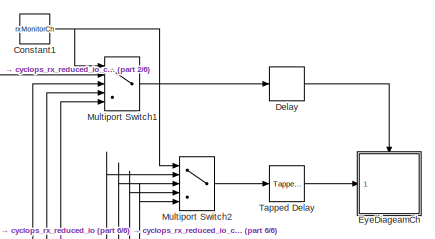
[diagram: rx_outer/rx_rate_transition/VITIS_CLOCK_DOMAIN_slowRx - part 1/6, top right region]
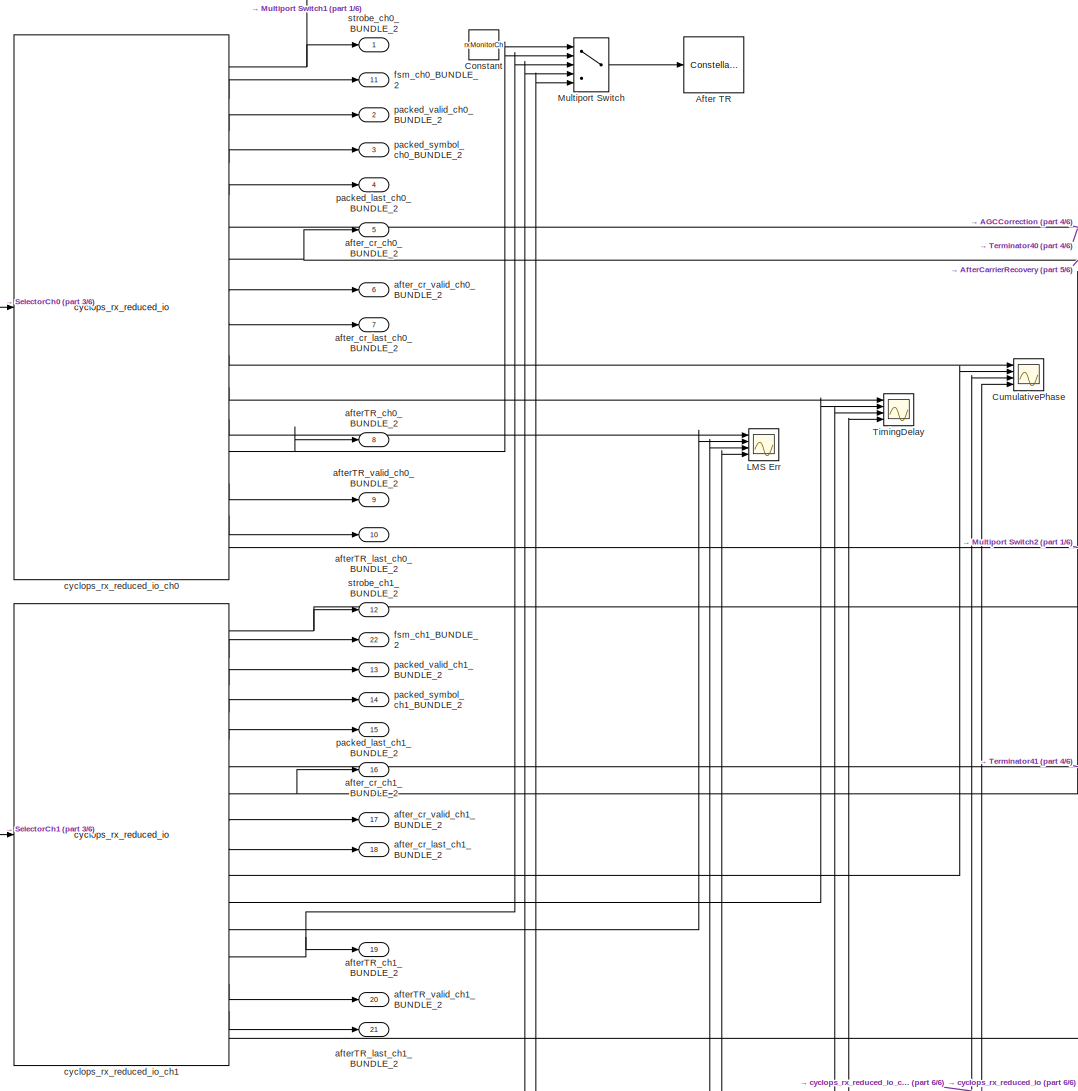
[diagram: rx_outer/rx_rate_transition/VITIS_CLOCK_DOMAIN_slowRx - part 2/6, top center region]
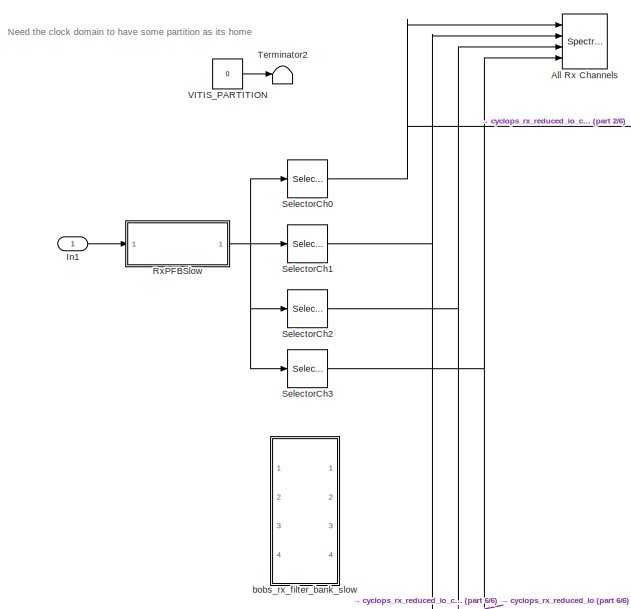
[diagram: rx_outer/rx_rate_transition/VITIS_CLOCK_DOMAIN_slowRx - part 3/6, top left region]
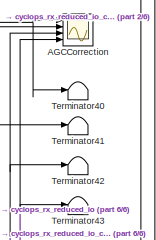
[diagram: rx_outer/rx_rate_transition/VITIS_CLOCK_DOMAIN_slowRx - part 4/6, top right region]
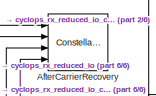
[diagram: rx_outer/rx_rate_transition/VITIS_CLOCK_DOMAIN_slowRx - part 5/6, top right region]
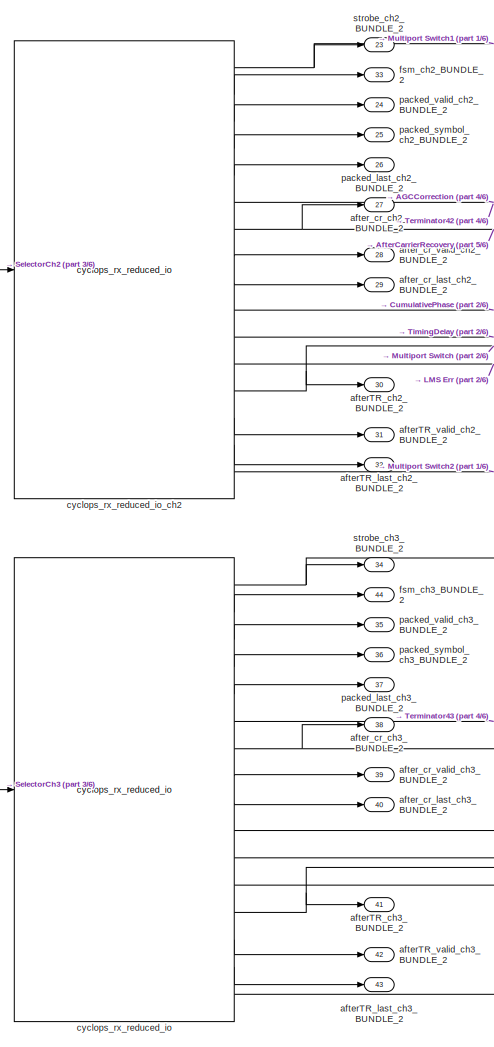
[diagram: rx_outer/rx_rate_transition/VITIS_CLOCK_DOMAIN_slowRx - part 6/6, bottom center region]
BLOCK [SubSystem] rx_outer/rx_rate_transition/VITIS_CLOCK_DOMAIN_slowRx
  Ports = [1, 44]
  RequestExecContextInheritance = off
BLOCK [Scope] rx_outer/rx_rate_transition/VITIS_CLOCK_DOMAIN_slowRx/AGCCorrection
  Commented = on
  DefaultConfigurationName = spbscopes.TimeScopeBlockCfg
  Floating = off
  NumInputPorts = 4
  Ports = [4]
  ScopeSpecificationString = spbscopes.TimeScopeBlockCfg('CurrentConfiguration', extmgr.ConfigurationSet(extmgr.Configuration('Core','General UI',true),extmgr.Configuration('Core','Source UI',true),extmgr.Configuration('Sources','WiredSimulink',true,'PointsPerSignal',500000,'DataLoggingVariableName','ScopeData4'),extmgr.Configuration('Visuals','Time Domain',true,'DisplayPropertyDefaults',struct('MinYLimReal','-1.70777','MaxYL...<+1585ch>
  UserDataPersistent = on
BLOCK [ConstellationDiagram] rx_outer/rx_rate_transition/VITIS_CLOCK_DOMAIN_slowRx/After TR
  Ports = [1]
  ScopeSpecificationString = comm.scopes.ConstellationDiagramBlockCfg('CurrentConfiguration', extmgr.ConfigurationSet(extmgr.Configuration('Core','General UI',true),extmgr.Configuration('Core','Source UI',true),extmgr.Configuration('Sources','WiredSimulink',true),extmgr.Configuration('Sources','SPTool',false),extmgr.Configuration('Sources','File',false),extmgr.Configuration('Sources','Workspace',false),extmgr.Configuration('S...<+2455ch>
BLOCK [ConstellationDiagram] rx_outer/rx_rate_transition/VITIS_CLOCK_DOMAIN_slowRx/AfterCarrierRecovery
  NumInputPorts = 4
  Ports = [4]
  ScopeSpecificationString = comm.scopes.ConstellationDiagramBlockCfg('CurrentConfiguration', extmgr.ConfigurationSet(extmgr.Configuration('Core','General UI',true),extmgr.Configuration('Core','Source UI',true),extmgr.Configuration('Sources','WiredSimulink',true),extmgr.Configuration('Sources','SPTool',false),extmgr.Configuration('Sources','SimulinkEvent',false),extmgr.Configuration('Sources','Streaming',false),extmgr.Configu...<+3500ch>
BLOCK [SpectrumAnalyzer] rx_outer/rx_rate_transition/VITIS_CLOCK_DOMAIN_slowRx/All Rx Channels
  NumInputPorts = 4
  Ports = [4]
  ScopeSpecificationString = spbscopes.SpectrumAnalyzerBlockCfg('CurrentConfiguration', extmgr.ConfigurationSet(extmgr.Configuration('Core','General UI',true),extmgr.Configuration('Core','Source UI',true),extmgr.Configuration('Sources','WiredSimulink',true),extmgr.Configuration('Visuals','Spectrum',true,'AxesProperties',struct('Color',{[0 0 0],[0 0 0]},'XColor',{[0.686274509803922 0.686274509803922 0.686274509803922],[0.68627...<+2595ch>
BLOCK [Constant] rx_outer/rx_rate_transition/VITIS_CLOCK_DOMAIN_slowRx/Constant
  Value = rxMonitorCh
BLOCK [Constant] rx_outer/rx_rate_transition/VITIS_CLOCK_DOMAIN_slowRx/Constant1
  Value = rxMonitorCh
BLOCK [Scope] rx_outer/rx_rate_transition/VITIS_CLOCK_DOMAIN_slowRx/CumulativePhase
  DefaultConfigurationName = spbscopes.TimeScopeBlockCfg
  Floating = off
  NumInputPorts = 4
  Ports = [4]
  ScopeSpecificationString = spbscopes.TimeScopeBlockCfg('CurrentConfiguration', extmgr.ConfigurationSet(extmgr.Configuration('Core','General UI',true),extmgr.Configuration('Core','Source UI',true),extmgr.Configuration('Sources','WiredSimulink',true,'PointsPerSignal',500000,'DataLoggingVariableName','ScopeData1'),extmgr.Configuration('Visuals','Time Domain',true,'DisplayPropertyDefaults',struct('MinYLimReal','-3.9846','MaxYLi...<+1594ch>
  UserDataPersistent = on
BLOCK [Delay] rx_outer/rx_rate_transition/VITIS_CLOCK_DOMAIN_slowRx/Delay
  DelayLength = overSample/2
  InputPortMap = u0
  Ports = [1, 1]
BLOCK [SubSystem] rx_outer/rx_rate_transition/VITIS_CLOCK_DOMAIN_slowRx/EyeDiageamCh
  Ports = [1, 0, 1]
  RequestExecContextInheritance = off
BLOCK [EnablePort] rx_outer/rx_rate_transition/VITIS_CLOCK_DOMAIN_slowRx/EyeDiageamCh/Enable
  Ports = []
BLOCK [EyeDiagram] rx_outer/rx_rate_transition/VITIS_CLOCK_DOMAIN_slowRx/EyeDiageamCh/Eye Diagram Ch0
  Ports = [1]
  ScopeSpecificationString = comm.scopes.EyeDiagramBlockCfg('CurrentConfiguration', extmgr.ConfigurationSet(extmgr.Configuration('Core','General UI',true),extmgr.Configuration('Core','Source UI',true),extmgr.Configuration('Sources','WiredSimulink',true),extmgr.Configuration('Sources','Simulink',false),extmgr.Configuration('Sources','File',false),extmgr.Configuration('Sources','Workspace',false),extmgr.Configuration('Sources',...<+2566ch>
BLOCK [Inport] rx_outer/rx_rate_transition/VITIS_CLOCK_DOMAIN_slowRx/EyeDiageamCh/In1
BLOCK [Inport] rx_outer/rx_rate_transition/VITIS_CLOCK_DOMAIN_slowRx/In1
BLOCK [Scope] rx_outer/rx_rate_transition/VITIS_CLOCK_DOMAIN_slowRx/LMS Err
  Floating = off
  NumInputPorts = 4
  Ports = [4]
  ScopeSpecificationString = Simulink.scopes.TimeScopeBlockCfg('CurrentConfiguration', extmgr.ConfigurationSet(extmgr.Configuration('Core','General UI',true),extmgr.Configuration('Core','Source UI',true),extmgr.Configuration('Sources','WiredSimulink',true,'DataLoggingVariableName','ScopeData2'),extmgr.Configuration('Visuals','Time Domain',true,'SerializedDisplays',{struct('MinYLimReal','-0.16507','MaxYLimReal','2.09378','YLab...<+1570ch>
BLOCK [MultiPortSwitch] rx_outer/rx_rate_transition/VITIS_CLOCK_DOMAIN_slowRx/Multiport Switch
  DataPortOrder = Zero-based contiguous
  InputSameDT = off
  Inputs = 4
  Ports = [5, 1]
  SaturateOnIntegerOverflow = off
  zeroidx = on
BLOCK [MultiPortSwitch] rx_outer/rx_rate_transition/VITIS_CLOCK_DOMAIN_slowRx/Multiport Switch1
  DataPortOrder = Zero-based contiguous
  InputSameDT = off
  Inputs = 4
  Ports = [5, 1]
  SaturateOnIntegerOverflow = off
  zeroidx = on
BLOCK [MultiPortSwitch] rx_outer/rx_rate_transition/VITIS_CLOCK_DOMAIN_slowRx/Multiport Switch2
  DataPortOrder = Zero-based contiguous
  InputSameDT = off
  Inputs = 4
  Ports = [5, 1]
  SaturateOnIntegerOverflow = off
  zeroidx = on
BLOCK [SubSystem] rx_outer/rx_rate_transition/VITIS_CLOCK_DOMAIN_slowRx/RxPFBSlow
  Ports = [1, 1]
  RequestExecContextInheritance = off
BLOCK [ComplexToRealImag] rx_outer/rx_rate_transition/VITIS_CLOCK_DOMAIN_slowRx/RxPFBSlow/Complex to Real-Imag
  Ports = [1, 2]
BLOCK [Constant] rx_outer/rx_rate_transition/VITIS_CLOCK_DOMAIN_slowRx/RxPFBSlow/Constant
  Value = filterCoefs
BLOCK [Constant] rx_outer/rx_rate_transition/VITIS_CLOCK_DOMAIN_slowRx/RxPFBSlow/Constant1
  Value = 0:(size(filterCoefs, 2)-1)
BLOCK [Constant] rx_outer/rx_rate_transition/VITIS_CLOCK_DOMAIN_slowRx/RxPFBSlow/Constant2
  Value = decimation
BLOCK [Constant] rx_outer/rx_rate_transition/VITIS_CLOCK_DOMAIN_slowRx/RxPFBSlow/Constant3
  Value = 0
BLOCK [Constant] rx_outer/rx_rate_transition/VITIS_CLOCK_DOMAIN_slowRx/RxPFBSlow/Constant4
  Value = size(filterCoefs, 2)
BLOCK [Delay] rx_outer/rx_rate_transition/VITIS_CLOCK_DOMAIN_slowRx/RxPFBSlow/Delay
  DelayLength = 1
  InputPortMap = u0
  Ports = [1, 1]
BLOCK [Delay] rx_outer/rx_rate_transition/VITIS_CLOCK_DOMAIN_slowRx/RxPFBSlow/Delay1
  DelayLength = 1
  InputPortMap = u0
  Ports = [1, 1]
BLOCK [DownSample] rx_outer/rx_rate_transition/VITIS_CLOCK_DOMAIN_slowRx/RxPFBSlow/Downsample
  InputProcessing = Elements as channels (sample based)
  N = decimation
  RateOptions = Allow multirate processing
BLOCK [Reference] rx_outer/rx_rate_transition/VITIS_CLOCK_DOMAIN_slowRx/RxPFBSlow/FFT  REF=dspxfrm3/FFT
  Ports = [1, 1]
  SourceBlock = dspxfrm3/FFT
  SourceProductBaseCode = DS
  SourceType = FFT
BLOCK [DSPFlip] rx_outer/rx_rate_transition/VITIS_CLOCK_DOMAIN_slowRx/RxPFBSlow/Flip
BLOCK [Inport] rx_outer/rx_rate_transition/VITIS_CLOCK_DOMAIN_slowRx/RxPFBSlow/In1
  PortDimensions = decimation
BLOCK [Concatenate] rx_outer/rx_rate_transition/VITIS_CLOCK_DOMAIN_slowRx/RxPFBSlow/Matrix Concatenate
  ConcatenateDimension = 2
  Ports = [2, 1]
BLOCK [Product] rx_outer/rx_rate_transition/VITIS_CLOCK_DOMAIN_slowRx/RxPFBSlow/Matrix Multiply
  Multiplication = Matrix(*)
  Ports = [2, 1]
BLOCK [Product] rx_outer/rx_rate_transition/VITIS_CLOCK_DOMAIN_slowRx/RxPFBSlow/Matrix Multiply1
  Multiplication = Matrix(*)
  Ports = [2, 1]
BLOCK [Math] rx_outer/rx_rate_transition/VITIS_CLOCK_DOMAIN_slowRx/RxPFBSlow/Mod
  Operator = mod
  Ports = [2, 1]
BLOCK [Outport] rx_outer/rx_rate_transition/VITIS_CLOCK_DOMAIN_slowRx/RxPFBSlow/Out1
  PortDimensions = size(filterCoefs,2)
BLOCK [RealImagToComplex] rx_outer/rx_rate_transition/VITIS_CLOCK_DOMAIN_slowRx/RxPFBSlow/Real-Imag to Complex
  Ports = [2, 1]
BLOCK [Scope] rx_outer/rx_rate_transition/VITIS_CLOCK_DOMAIN_slowRx/RxPFBSlow/Scope
  Floating = off
  NumInputPorts = 1
  Ports = [1]
  ScopeSpecificationString = Simulink.scopes.TimeScopeBlockCfg('CurrentConfiguration', extmgr.ConfigurationSet(extmgr.Configuration('Core','General UI',true),extmgr.Configuration('Core','Source UI',true),extmgr.Configuration('Sources','WiredSimulink',true,'DataLoggingVariableName','ScopeData1'),extmgr.Configuration('Visuals','Time Domain',true,'SerializedDisplays',{struct('MinYLimReal','-1.11585','MaxYLimReal','30.52417','YLa...<+1468ch>
BLOCK [Selector] rx_outer/rx_rate_transition/VITIS_CLOCK_DOMAIN_slowRx/RxPFBSlow/Selector
  IndexMode = Zero-based
  IndexOptions = Starting index (dialog)
  Indices = 0
  InputPortWidth = size(filterCoefs, 1)
  OutputSizes = size(filterCoefs, 1)-decimation
  Ports = [1, 1]
BLOCK [Selector] rx_outer/rx_rate_transition/VITIS_CLOCK_DOMAIN_slowRx/RxPFBSlow/Selector1
  IndexMode = Zero-based
  IndexOptions = Index vector (port)
  Indices = [1 3]
  InputPortWidth = size(filterCoefs, 2)
  OutputSizes = 1
  Ports = [2, 1]
BLOCK [Sum] rx_outer/rx_rate_transition/VITIS_CLOCK_DOMAIN_slowRx/RxPFBSlow/Sum
  Inputs = |++
  NameLocation = top
  Ports = [2, 1]
BLOCK [Sum] rx_outer/rx_rate_transition/VITIS_CLOCK_DOMAIN_slowRx/RxPFBSlow/Sum1
  Inputs = |++
  Ports = [2, 1]
BLOCK [Switch] rx_outer/rx_rate_transition/VITIS_CLOCK_DOMAIN_slowRx/RxPFBSlow/Switch
  InputSameDT = off
  SaturateOnIntegerOverflow = off
  Threshold = size(filterCoefs, 2)-decimation
BLOCK [Math] rx_outer/rx_rate_transition/VITIS_CLOCK_DOMAIN_slowRx/RxPFBSlow/Transpose
  Operator = transpose
  Ports = [1, 1]
BLOCK [Selector] rx_outer/rx_rate_transition/VITIS_CLOCK_DOMAIN_slowRx/SelectorCh0
  IndexMode = Zero-based
  IndexOptions = Index vector (dialog)
  Indices = chanBinMapping(1)
  InputPortWidth = chanFFTSize
  OutputSizes = 1
  Ports = [1, 1]
BLOCK [Selector] rx_outer/rx_rate_transition/VITIS_CLOCK_DOMAIN_slowRx/SelectorCh1
  IndexMode = Zero-based
  IndexOptions = Index vector (dialog)
  Indices = chanBinMapping(2)
  InputPortWidth = chanFFTSize
  OutputSizes = 1
  Ports = [1, 1]
BLOCK [Selector] rx_outer/rx_rate_transition/VITIS_CLOCK_DOMAIN_slowRx/SelectorCh2
  IndexMode = Zero-based
  IndexOptions = Index vector (dialog)
  Indices = chanBinMapping(3)
  InputPortWidth = chanFFTSize
  OutputSizes = 1
  Ports = [1, 1]
BLOCK [Selector] rx_outer/rx_rate_transition/VITIS_CLOCK_DOMAIN_slowRx/SelectorCh3
  IndexMode = Zero-based
  IndexOptions = Index vector (dialog)
  Indices = chanBinMapping(4)
  InputPortWidth = chanFFTSize
  OutputSizes = 1
  Ports = [1, 1]
BLOCK [Reference] rx_outer/rx_rate_transition/VITIS_CLOCK_DOMAIN_slowRx/Tapped Delay  REF=simulink/Discrete/Tapped Delay
  Ports = [1, 1]
  SourceBlock = simulink/Discrete/Tapped Delay
  SourceProductBaseCode = SL
  SourceType = Tapped Delay Line
BLOCK [Terminator] rx_outer/rx_rate_transition/VITIS_CLOCK_DOMAIN_slowRx/Terminator2
BLOCK [Terminator] rx_outer/rx_rate_transition/VITIS_CLOCK_DOMAIN_slowRx/Terminator40
BLOCK [Terminator] rx_outer/rx_rate_transition/VITIS_CLOCK_DOMAIN_slowRx/Terminator41
BLOCK [Terminator] rx_outer/rx_rate_transition/VITIS_CLOCK_DOMAIN_slowRx/Terminator42
BLOCK [Terminator] rx_outer/rx_rate_transition/VITIS_CLOCK_DOMAIN_slowRx/Terminator43
BLOCK [Scope] rx_outer/rx_rate_transition/VITIS_CLOCK_DOMAIN_slowRx/TimingDelay
  DefaultConfigurationName = spbscopes.TimeScopeBlockCfg
  Floating = off
  NumInputPorts = 4
  Ports = [4]
  ScopeSpecificationString = spbscopes.TimeScopeBlockCfg('CurrentConfiguration', extmgr.ConfigurationSet(extmgr.Configuration('Core','General UI',true),extmgr.Configuration('Core','Source UI',true),extmgr.Configuration('Sources','WiredSimulink',true,'PointsPerSignal',5000000,'DataLoggingVariableName','ScopeData3'),extmgr.Configuration('Visuals','Time Domain',true,'DisplayPropertyDefaults',struct('MinYLimReal','20.59912','MaxY...<+1696ch>
  UserDataPersistent = on
BLOCK [Constant] rx_outer/rx_rate_transition/VITIS_CLOCK_DOMAIN_slowRx/VITIS_PARTITION
  Value = 0
BLOCK [Outport] rx_outer/rx_rate_transition/VITIS_CLOCK_DOMAIN_slowRx/afterTR_ch0_BUNDLE_2
  Port = 8
BLOCK [Outport] rx_outer/rx_rate_transition/VITIS_CLOCK_DOMAIN_slowRx/afterTR_ch1_BUNDLE_2
  Port = 19
BLOCK [Outport] rx_outer/rx_rate_transition/VITIS_CLOCK_DOMAIN_slowRx/afterTR_ch2_BUNDLE_2
  Port = 30
BLOCK [Outport] rx_outer/rx_rate_transition/VITIS_CLOCK_DOMAIN_slowRx/afterTR_ch3_BUNDLE_2
  Port = 41
BLOCK [Outport] rx_outer/rx_rate_transition/VITIS_CLOCK_DOMAIN_slowRx/afterTR_last_ch0_BUNDLE_2
  Port = 10
BLOCK [Outport] rx_outer/rx_rate_transition/VITIS_CLOCK_DOMAIN_slowRx/afterTR_last_ch1_BUNDLE_2
  Port = 21
BLOCK [Outport] rx_outer/rx_rate_transition/VITIS_CLOCK_DOMAIN_slowRx/afterTR_last_ch2_BUNDLE_2
  Port = 32
BLOCK [Outport] rx_outer/rx_rate_transition/VITIS_CLOCK_DOMAIN_slowRx/afterTR_last_ch3_BUNDLE_2
  Port = 43
BLOCK [Outport] rx_outer/rx_rate_transition/VITIS_CLOCK_DOMAIN_slowRx/afterTR_valid_ch0_BUNDLE_2
  Port = 9
BLOCK [Outport] rx_outer/rx_rate_transition/VITIS_CLOCK_DOMAIN_slowRx/afterTR_valid_ch1_BUNDLE_2
  Port = 20
BLOCK [Outport] rx_outer/rx_rate_transition/VITIS_CLOCK_DOMAIN_slowRx/afterTR_valid_ch2_BUNDLE_2
  Port = 31
BLOCK [Outport] rx_outer/rx_rate_transition/VITIS_CLOCK_DOMAIN_slowRx/afterTR_valid_ch3_BUNDLE_2
  Port = 42
BLOCK [Outport] rx_outer/rx_rate_transition/VITIS_CLOCK_DOMAIN_slowRx/after_cr_ch0_BUNDLE_2
  Port = 5
BLOCK [Outport] rx_outer/rx_rate_transition/VITIS_CLOCK_DOMAIN_slowRx/after_cr_ch1_BUNDLE_2
  Port = 16
BLOCK [Outport] rx_outer/rx_rate_transition/VITIS_CLOCK_DOMAIN_slowRx/after_cr_ch2_BUNDLE_2
  Port = 27
BLOCK [Outport] rx_outer/rx_rate_transition/VITIS_CLOCK_DOMAIN_slowRx/after_cr_ch3_BUNDLE_2
  Port = 38
BLOCK [Outport] rx_outer/rx_rate_transition/VITIS_CLOCK_DOMAIN_slowRx/after_cr_last_ch0_BUNDLE_2
  Port = 7
BLOCK [Outport] rx_outer/rx_rate_transition/VITIS_CLOCK_DOMAIN_slowRx/after_cr_last_ch1_BUNDLE_2
  Port = 18
BLOCK [Outport] rx_outer/rx_rate_transition/VITIS_CLOCK_DOMAIN_slowRx/after_cr_last_ch2_BUNDLE_2
  Port = 29
BLOCK [Outport] rx_outer/rx_rate_transition/VITIS_CLOCK_DOMAIN_slowRx/after_cr_last_ch3_BUNDLE_2
  Port = 40
BLOCK [Outport] rx_outer/rx_rate_transition/VITIS_CLOCK_DOMAIN_slowRx/after_cr_valid_ch0_BUNDLE_2
  Port = 6
BLOCK [Outport] rx_outer/rx_rate_transition/VITIS_CLOCK_DOMAIN_slowRx/after_cr_valid_ch1_BUNDLE_2
  Port = 17
BLOCK [Outport] rx_outer/rx_rate_transition/VITIS_CLOCK_DOMAIN_slowRx/after_cr_valid_ch2_BUNDLE_2
  Port = 28
BLOCK [Outport] rx_outer/rx_rate_transition/VITIS_CLOCK_DOMAIN_slowRx/after_cr_valid_ch3_BUNDLE_2
  Port = 39
BLOCK [SubSystem] rx_outer/rx_rate_transition/VITIS_CLOCK_DOMAIN_slowRx/bobs_rx_filter_bank_slow
  Commented = on
  Ports = [4, 4]
  RequestExecContextInheritance = off
BLOCK [Outport] rx_outer/rx_rate_transition/VITIS_CLOCK_DOMAIN_slowRx/bobs_rx_filter_bank_slow/Band0
BLOCK [Outport] rx_outer/rx_rate_transition/VITIS_CLOCK_DOMAIN_slowRx/bobs_rx_filter_bank_slow/Band1
  Port = 2
BLOCK [Outport] rx_outer/rx_rate_transition/VITIS_CLOCK_DOMAIN_slowRx/bobs_rx_filter_bank_slow/Band2
  Port = 3
BLOCK [Outport] rx_outer/rx_rate_transition/VITIS_CLOCK_DOMAIN_slowRx/bobs_rx_filter_bank_slow/Band3
  Port = 4
BLOCK [Inport] rx_outer/rx_rate_transition/VITIS_CLOCK_DOMAIN_slowRx/bobs_rx_filter_bank_slow/In1
BLOCK [Inport] rx_outer/rx_rate_transition/VITIS_CLOCK_DOMAIN_slowRx/bobs_rx_filter_bank_slow/In2
  Port = 2
BLOCK [Inport] rx_outer/rx_rate_transition/VITIS_CLOCK_DOMAIN_slowRx/bobs_rx_filter_bank_slow/In3
  Port = 3
BLOCK [Inport] rx_outer/rx_rate_transition/VITIS_CLOCK_DOMAIN_slowRx/bobs_rx_filter_bank_slow/In4
  Port = 4
BLOCK [SubSystem] rx_outer/rx_rate_transition/VITIS_CLOCK_DOMAIN_slowRx/bobs_rx_filter_bank_slow/PFB2_Slow
  Ports = [2, 2]
  RequestExecContextInheritance = off
BLOCK [SubSystem] rx_outer/rx_rate_transition/VITIS_CLOCK_DOMAIN_slowRx/bobs_rx_filter_bank_slow/PFB2_Slow/Comutator_Transition
  Ports = [2, 2]
  RequestExecContextInheritance = off
BLOCK [DownSample] rx_outer/rx_rate_transition/VITIS_CLOCK_DOMAIN_slowRx/bobs_rx_filter_bank_slow/PFB2_Slow/Comutator_Transition/Downsample
  InputProcessing = Elements as channels (sample based)
  RateOptions = Allow multirate processing
BLOCK [DownSample] rx_outer/rx_rate_transition/VITIS_CLOCK_DOMAIN_slowRx/bobs_rx_filter_bank_slow/PFB2_Slow/Comutator_Transition/Downsample1
  InputProcessing = Elements as channels (sample based)
  RateOptions = Allow multirate processing
BLOCK [Inport] rx_outer/rx_rate_transition/VITIS_CLOCK_DOMAIN_slowRx/bobs_rx_filter_bank_slow/PFB2_Slow/Comutator_Transition/In1
BLOCK [Inport] rx_outer/rx_rate_transition/VITIS_CLOCK_DOMAIN_slowRx/bobs_rx_filter_bank_slow/PFB2_Slow/Comutator_Transition/In2
  Port = 2
BLOCK [Outport] rx_outer/rx_rate_transition/VITIS_CLOCK_DOMAIN_slowRx/bobs_rx_filter_bank_slow/PFB2_Slow/Comutator_Transition/Out1
BLOCK [Outport] rx_outer/rx_rate_transition/VITIS_CLOCK_DOMAIN_slowRx/bobs_rx_filter_bank_slow/PFB2_Slow/Comutator_Transition/Out2
  Port = 2
BLOCK [SubSystem] rx_outer/rx_rate_transition/VITIS_CLOCK_DOMAIN_slowRx/bobs_rx_filter_bank_slow/PFB2_Slow/DFT
  Ports = [2, 2]
  RequestExecContextInheritance = off
BLOCK [Inport] rx_outer/rx_rate_transition/VITIS_CLOCK_DOMAIN_slowRx/bobs_rx_filter_bank_slow/PFB2_Slow/DFT/In0
BLOCK [Inport] rx_outer/rx_rate_transition/VITIS_CLOCK_DOMAIN_slowRx/bobs_rx_filter_bank_slow/PFB2_Slow/DFT/In1
  Port = 2
BLOCK [Outport] rx_outer/rx_rate_transition/VITIS_CLOCK_DOMAIN_slowRx/bobs_rx_filter_bank_slow/PFB2_Slow/DFT/Out 2
BLOCK [Outport] rx_outer/rx_rate_transition/VITIS_CLOCK_DOMAIN_slowRx/bobs_rx_filter_bank_slow/PFB2_Slow/DFT/Out 3
  Port = 2
BLOCK [SubSystem] rx_outer/rx_rate_transition/VITIS_CLOCK_DOMAIN_slowRx/bobs_rx_filter_bank_slow/PFB2_Slow/DFT/Subsystem
  Ports = [2, 1]
  RequestExecContextInheritance = off
BLOCK [Sum] rx_outer/rx_rate_transition/VITIS_CLOCK_DOMAIN_slowRx/bobs_rx_filter_bank_slow/PFB2_Slow/DFT/Subsystem/Add1
  IconShape = rectangular
  Inputs = +-
  OutDataTypeStr = Inherit: Same as first input
  Ports = [2, 1]
BLOCK [Inport] rx_outer/rx_rate_transition/VITIS_CLOCK_DOMAIN_slowRx/bobs_rx_filter_bank_slow/PFB2_Slow/DFT/Subsystem/In1
BLOCK [Inport] rx_outer/rx_rate_transition/VITIS_CLOCK_DOMAIN_slowRx/bobs_rx_filter_bank_slow/PFB2_Slow/DFT/Subsystem/In2
  Port = 2
BLOCK [Outport] rx_outer/rx_rate_transition/VITIS_CLOCK_DOMAIN_slowRx/bobs_rx_filter_bank_slow/PFB2_Slow/DFT/Subsystem/Out1
BLOCK [SubSystem] rx_outer/rx_rate_transition/VITIS_CLOCK_DOMAIN_slowRx/bobs_rx_filter_bank_slow/PFB2_Slow/DFT/Subsystem3
  Ports = [2, 1]
  RequestExecContextInheritance = off
BLOCK [Sum] rx_outer/rx_rate_transition/VITIS_CLOCK_DOMAIN_slowRx/bobs_rx_filter_bank_slow/PFB2_Slow/DFT/Subsystem3/Add1
  IconShape = rectangular
  OutDataTypeStr = Inherit: Same as first input
  Ports = [2, 1]
BLOCK [Inport] rx_outer/rx_rate_transition/VITIS_CLOCK_DOMAIN_slowRx/bobs_rx_filter_bank_slow/PFB2_Slow/DFT/Subsystem3/In1
BLOCK [Inport] rx_outer/rx_rate_transition/VITIS_CLOCK_DOMAIN_slowRx/bobs_rx_filter_bank_slow/PFB2_Slow/DFT/Subsystem3/In2
  Port = 2
BLOCK [Outport] rx_outer/rx_rate_transition/VITIS_CLOCK_DOMAIN_slowRx/bobs_rx_filter_bank_slow/PFB2_Slow/DFT/Subsystem3/Out1
BLOCK [DiscreteFir] rx_outer/rx_rate_transition/VITIS_CLOCK_DOMAIN_slowRx/bobs_rx_filter_bank_slow/PFB2_Slow/Discrete FIR Filter
  AccumDataTypeStr = Inherit: Same as product output
  Coefficients = channelizerPolyphaseCoeff_Rx(1, :)
  FilterStructure = Direct form transposed
  InputPortMap = u0
  OutputPortMap = o0
  Ports = [1, 1]
  ProductDataTypeStr = Inherit: Same as input
BLOCK [DiscreteFir] rx_outer/rx_rate_transition/VITIS_CLOCK_DOMAIN_slowRx/bobs_rx_filter_bank_slow/PFB2_Slow/Discrete FIR Filter1
  AccumDataTypeStr = Inherit: Same as product output
  Coefficients = channelizerPolyphaseCoeff_Rx(2,:)
  FilterStructure = Direct form transposed
  InputPortMap = u0
  OutputPortMap = o0
  Ports = [1, 1]
  ProductDataTypeStr = Inherit: Same as input
BLOCK [Inport] rx_outer/rx_rate_transition/VITIS_CLOCK_DOMAIN_slowRx/bobs_rx_filter_bank_slow/PFB2_Slow/In1
BLOCK [Inport] rx_outer/rx_rate_transition/VITIS_CLOCK_DOMAIN_slowRx/bobs_rx_filter_bank_slow/PFB2_Slow/In2
  Port = 2
BLOCK [Outport] rx_outer/rx_rate_transition/VITIS_CLOCK_DOMAIN_slowRx/bobs_rx_filter_bank_slow/PFB2_Slow/Out1
BLOCK [Outport] rx_outer/rx_rate_transition/VITIS_CLOCK_DOMAIN_slowRx/bobs_rx_filter_bank_slow/PFB2_Slow/Out2
  Port = 2
BLOCK [SubSystem] rx_outer/rx_rate_transition/VITIS_CLOCK_DOMAIN_slowRx/bobs_rx_filter_bank_slow/PFB_Slow
  Ports = [2, 2]
  RequestExecContextInheritance = off
BLOCK [SubSystem] rx_outer/rx_rate_transition/VITIS_CLOCK_DOMAIN_slowRx/bobs_rx_filter_bank_slow/PFB_Slow/Comutator_Downsample
  Ports = [2, 2]
  RequestExecContextInheritance = off
BLOCK [DownSample] rx_outer/rx_rate_transition/VITIS_CLOCK_DOMAIN_slowRx/bobs_rx_filter_bank_slow/PFB_Slow/Comutator_Downsample/Downsample
  InputProcessing = Elements as channels (sample based)
  RateOptions = Allow multirate processing
BLOCK [DownSample] rx_outer/rx_rate_transition/VITIS_CLOCK_DOMAIN_slowRx/bobs_rx_filter_bank_slow/PFB_Slow/Comutator_Downsample/Downsample1
  InputProcessing = Elements as channels (sample based)
  RateOptions = Allow multirate processing
BLOCK [Inport] rx_outer/rx_rate_transition/VITIS_CLOCK_DOMAIN_slowRx/bobs_rx_filter_bank_slow/PFB_Slow/Comutator_Downsample/In1
BLOCK [Inport] rx_outer/rx_rate_transition/VITIS_CLOCK_DOMAIN_slowRx/bobs_rx_filter_bank_slow/PFB_Slow/Comutator_Downsample/In2
  Port = 2
BLOCK [Outport] rx_outer/rx_rate_transition/VITIS_CLOCK_DOMAIN_slowRx/bobs_rx_filter_bank_slow/PFB_Slow/Comutator_Downsample/Out1
BLOCK [Outport] rx_outer/rx_rate_transition/VITIS_CLOCK_DOMAIN_slowRx/bobs_rx_filter_bank_slow/PFB_Slow/Comutator_Downsample/Out2
  Port = 2
BLOCK [SubSystem] rx_outer/rx_rate_transition/VITIS_CLOCK_DOMAIN_slowRx/bobs_rx_filter_bank_slow/PFB_Slow/DFT1
  Ports = [2, 2]
  RequestExecContextInheritance = off
BLOCK [Inport] rx_outer/rx_rate_transition/VITIS_CLOCK_DOMAIN_slowRx/bobs_rx_filter_bank_slow/PFB_Slow/DFT1/In0
BLOCK [Inport] rx_outer/rx_rate_transition/VITIS_CLOCK_DOMAIN_slowRx/bobs_rx_filter_bank_slow/PFB_Slow/DFT1/In1
  Port = 2
BLOCK [Outport] rx_outer/rx_rate_transition/VITIS_CLOCK_DOMAIN_slowRx/bobs_rx_filter_bank_slow/PFB_Slow/DFT1/Out 2
BLOCK [Outport] rx_outer/rx_rate_transition/VITIS_CLOCK_DOMAIN_slowRx/bobs_rx_filter_bank_slow/PFB_Slow/DFT1/Out 3
  Port = 2
BLOCK [SubSystem] rx_outer/rx_rate_transition/VITIS_CLOCK_DOMAIN_slowRx/bobs_rx_filter_bank_slow/PFB_Slow/DFT1/Subsystem
  Ports = [2, 1]
  RequestExecContextInheritance = off
BLOCK [Sum] rx_outer/rx_rate_transition/VITIS_CLOCK_DOMAIN_slowRx/bobs_rx_filter_bank_slow/PFB_Slow/DFT1/Subsystem/Add1
  IconShape = rectangular
  Inputs = +-
  OutDataTypeStr = Inherit: Same as first input
  Ports = [2, 1]
BLOCK [Inport] rx_outer/rx_rate_transition/VITIS_CLOCK_DOMAIN_slowRx/bobs_rx_filter_bank_slow/PFB_Slow/DFT1/Subsystem/In1
BLOCK [Inport] rx_outer/rx_rate_transition/VITIS_CLOCK_DOMAIN_slowRx/bobs_rx_filter_bank_slow/PFB_Slow/DFT1/Subsystem/In2
  Port = 2
BLOCK [Outport] rx_outer/rx_rate_transition/VITIS_CLOCK_DOMAIN_slowRx/bobs_rx_filter_bank_slow/PFB_Slow/DFT1/Subsystem/Out1
BLOCK [SubSystem] rx_outer/rx_rate_transition/VITIS_CLOCK_DOMAIN_slowRx/bobs_rx_filter_bank_slow/PFB_Slow/DFT1/Subsystem3
  Ports = [2, 1]
  RequestExecContextInheritance = off
BLOCK [Sum] rx_outer/rx_rate_transition/VITIS_CLOCK_DOMAIN_slowRx/bobs_rx_filter_bank_slow/PFB_Slow/DFT1/Subsystem3/Add1
  IconShape = rectangular
  OutDataTypeStr = Inherit: Same as first input
  Ports = [2, 1]
BLOCK [Inport] rx_outer/rx_rate_transition/VITIS_CLOCK_DOMAIN_slowRx/bobs_rx_filter_bank_slow/PFB_Slow/DFT1/Subsystem3/In1
BLOCK [Inport] rx_outer/rx_rate_transition/VITIS_CLOCK_DOMAIN_slowRx/bobs_rx_filter_bank_slow/PFB_Slow/DFT1/Subsystem3/In2
  Port = 2
BLOCK [Outport] rx_outer/rx_rate_transition/VITIS_CLOCK_DOMAIN_slowRx/bobs_rx_filter_bank_slow/PFB_Slow/DFT1/Subsystem3/Out1
BLOCK [DiscreteFir] rx_outer/rx_rate_transition/VITIS_CLOCK_DOMAIN_slowRx/bobs_rx_filter_bank_slow/PFB_Slow/Discrete FIR Filter
  AccumDataTypeStr = Inherit: Same as product output
  Coefficients = channelizerPolyphaseCoeff_Rx(1, :)
  FilterStructure = Direct form transposed
  InputPortMap = u0
  OutputPortMap = o0
  Ports = [1, 1]
  ProductDataTypeStr = Inherit: Same as input
BLOCK [DiscreteFir] rx_outer/rx_rate_transition/VITIS_CLOCK_DOMAIN_slowRx/bobs_rx_filter_bank_slow/PFB_Slow/Discrete FIR Filter1
  AccumDataTypeStr = Inherit: Same as product output
  Coefficients = channelizerPolyphaseCoeff_Rx(2,:)
  FilterStructure = Direct form transposed
  InputPortMap = u0
  OutputPortMap = o0
  Ports = [1, 1]
  ProductDataTypeStr = Inherit: Same as input
BLOCK [Inport] rx_outer/rx_rate_transition/VITIS_CLOCK_DOMAIN_slowRx/bobs_rx_filter_bank_slow/PFB_Slow/In1
BLOCK [Inport] rx_outer/rx_rate_transition/VITIS_CLOCK_DOMAIN_slowRx/bobs_rx_filter_bank_slow/PFB_Slow/In2
  Port = 2
BLOCK [Outport] rx_outer/rx_rate_transition/VITIS_CLOCK_DOMAIN_slowRx/bobs_rx_filter_bank_slow/PFB_Slow/Out1
BLOCK [Outport] rx_outer/rx_rate_transition/VITIS_CLOCK_DOMAIN_slowRx/bobs_rx_filter_bank_slow/PFB_Slow/Out2
  Port = 2
BLOCK [Terminator] rx_outer/rx_rate_transition/VITIS_CLOCK_DOMAIN_slowRx/bobs_rx_filter_bank_slow/Terminator2
BLOCK [Constant] rx_outer/rx_rate_transition/VITIS_CLOCK_DOMAIN_slowRx/bobs_rx_filter_bank_slow/VITIS_PARTITION
  Value = 0
BLOCK [Reference] rx_outer/rx_rate_transition/VITIS_CLOCK_DOMAIN_slowRx/cyclops_rx_reduced_io  REF=cyclopsLib/cyclops_rx_reduced_io
  Ports = [1, 16]
  SourceBlock = cyclopsLib/cyclops_rx_reduced_io
  SourceType = Cyclops Rx (Reduced I/O)
BLOCK [Reference] rx_outer/rx_rate_transition/VITIS_CLOCK_DOMAIN_slowRx/cyclops_rx_reduced_io_ch0  REF=cyclopsLib/cyclops_rx_reduced_io
  Ports = [1, 16]
  SourceBlock = cyclopsLib/cyclops_rx_reduced_io
  SourceType = Cyclops Rx (Reduced I/O)
BLOCK [Reference] rx_outer/rx_rate_transition/VITIS_CLOCK_DOMAIN_slowRx/cyclops_rx_reduced_io_ch1  REF=cyclopsLib/cyclops_rx_reduced_io
  Ports = [1, 16]
  SourceBlock = cyclopsLib/cyclops_rx_reduced_io
  SourceType = Cyclops Rx (Reduced I/O)
BLOCK [Reference] rx_outer/rx_rate_transition/VITIS_CLOCK_DOMAIN_slowRx/cyclops_rx_reduced_io_ch2  REF=cyclopsLib/cyclops_rx_reduced_io
  Ports = [1, 16]
  SourceBlock = cyclopsLib/cyclops_rx_reduced_io
  SourceType = Cyclops Rx (Reduced I/O)
BLOCK [Outport] rx_outer/rx_rate_transition/VITIS_CLOCK_DOMAIN_slowRx/fsm_ch0_BUNDLE_2
  Port = 11
BLOCK [Outport] rx_outer/rx_rate_transition/VITIS_CLOCK_DOMAIN_slowRx/fsm_ch1_BUNDLE_2
  Port = 22
BLOCK [Outport] rx_outer/rx_rate_transition/VITIS_CLOCK_DOMAIN_slowRx/fsm_ch2_BUNDLE_2
  Port = 33
BLOCK [Outport] rx_outer/rx_rate_transition/VITIS_CLOCK_DOMAIN_slowRx/fsm_ch3_BUNDLE_2
  Port = 44
BLOCK [Outport] rx_outer/rx_rate_transition/VITIS_CLOCK_DOMAIN_slowRx/packed_last_ch0_BUNDLE_2
  Port = 4
BLOCK [Outport] rx_outer/rx_rate_transition/VITIS_CLOCK_DOMAIN_slowRx/packed_last_ch1_BUNDLE_2
  Port = 15
BLOCK [Outport] rx_outer/rx_rate_transition/VITIS_CLOCK_DOMAIN_slowRx/packed_last_ch2_BUNDLE_2
  Port = 26
BLOCK [Outport] rx_outer/rx_rate_transition/VITIS_CLOCK_DOMAIN_slowRx/packed_last_ch3_BUNDLE_2
  Port = 37
BLOCK [Outport] rx_outer/rx_rate_transition/VITIS_CLOCK_DOMAIN_slowRx/packed_symbol_ch0_BUNDLE_2
  Port = 3
BLOCK [Outport] rx_outer/rx_rate_transition/VITIS_CLOCK_DOMAIN_slowRx/packed_symbol_ch1_BUNDLE_2
  Port = 14
BLOCK [Outport] rx_outer/rx_rate_transition/VITIS_CLOCK_DOMAIN_slowRx/packed_symbol_ch2_BUNDLE_2
  Port = 25
BLOCK [Outport] rx_outer/rx_rate_transition/VITIS_CLOCK_DOMAIN_slowRx/packed_symbol_ch3_BUNDLE_2
  Port = 36
BLOCK [Outport] rx_outer/rx_rate_transition/VITIS_CLOCK_DOMAIN_slowRx/packed_valid_ch0_BUNDLE_2
  Port = 2
BLOCK [Outport] rx_outer/rx_rate_transition/VITIS_CLOCK_DOMAIN_slowRx/packed_valid_ch1_BUNDLE_2
  Port = 13
BLOCK [Outport] rx_outer/rx_rate_transition/VITIS_CLOCK_DOMAIN_slowRx/packed_valid_ch2_BUNDLE_2
  Port = 24
BLOCK [Outport] rx_outer/rx_rate_transition/VITIS_CLOCK_DOMAIN_slowRx/packed_valid_ch3_BUNDLE_2
  Port = 35
BLOCK [Outport] rx_outer/rx_rate_transition/VITIS_CLOCK_DOMAIN_slowRx/strobe_ch0_BUNDLE_2
BLOCK [Outport] rx_outer/rx_rate_transition/VITIS_CLOCK_DOMAIN_slowRx/strobe_ch1_BUNDLE_2
  Port = 12
BLOCK [Outport] rx_outer/rx_rate_transition/VITIS_CLOCK_DOMAIN_slowRx/strobe_ch2_BUNDLE_2
  Port = 23
BLOCK [Outport] rx_outer/rx_rate_transition/VITIS_CLOCK_DOMAIN_slowRx/strobe_ch3_BUNDLE_2
  Port = 34
BLOCK [Outport] rx_outer/rx_rate_transition/afterTR_ch0_BUNDLE_2
  Port = 8
BLOCK [Outport] rx_outer/rx_rate_transition/afterTR_ch1_BUNDLE_2
  Port = 19
BLOCK [Outport] rx_outer/rx_rate_transition/afterTR_ch2_BUNDLE_2
  Port = 30
BLOCK [Outport] rx_outer/rx_rate_transition/afterTR_ch3_BUNDLE_2
  Port = 41
BLOCK [Outport] rx_outer/rx_rate_transition/afterTR_last_ch0_BUNDLE_2
  Port = 10
BLOCK [Outport] rx_outer/rx_rate_transition/afterTR_last_ch1_BUNDLE_2
  Port = 21
BLOCK [Outport] rx_outer/rx_rate_transition/afterTR_last_ch2_BUNDLE_2
  Port = 32
BLOCK [Outport] rx_outer/rx_rate_transition/afterTR_last_ch3_BUNDLE_2
  Port = 43
BLOCK [Outport] rx_outer/rx_rate_transition/afterTR_valid_ch0_BUNDLE_2
  Port = 9
BLOCK [Outport] rx_outer/rx_rate_transition/afterTR_valid_ch1_BUNDLE_2
  Port = 20
BLOCK [Outport] rx_outer/rx_rate_transition/afterTR_valid_ch2_BUNDLE_2
  Port = 31
BLOCK [Outport] rx_outer/rx_rate_transition/afterTR_valid_ch3_BUNDLE_2
  Port = 42
BLOCK [Outport] rx_outer/rx_rate_transition/after_cr_ch0_BUNDLE_2
  Port = 5
BLOCK [Outport] rx_outer/rx_rate_transition/after_cr_ch1_BUNDLE_2
  Port = 16
BLOCK [Outport] rx_outer/rx_rate_transition/after_cr_ch2_BUNDLE_2
  Port = 27
BLOCK [Outport] rx_outer/rx_rate_transition/after_cr_ch3_BUNDLE_2
  Port = 38
BLOCK [Outport] rx_outer/rx_rate_transition/after_cr_last_ch0_BUNDLE_2
  Port = 7
BLOCK [Outport] rx_outer/rx_rate_transition/after_cr_last_ch1_BUNDLE_2
  Port = 18
BLOCK [Outport] rx_outer/rx_rate_transition/after_cr_last_ch2_BUNDLE_2
  Port = 29
BLOCK [Outport] rx_outer/rx_rate_transition/after_cr_last_ch3_BUNDLE_2
  Port = 40
BLOCK [Outport] rx_outer/rx_rate_transition/after_cr_valid_ch0_BUNDLE_2
  Port = 6
BLOCK [Outport] rx_outer/rx_rate_transition/after_cr_valid_ch1_BUNDLE_2
  Port = 17
BLOCK [Outport] rx_outer/rx_rate_transition/after_cr_valid_ch2_BUNDLE_2
  Port = 28
BLOCK [Outport] rx_outer/rx_rate_transition/after_cr_valid_ch3_BUNDLE_2
  Port = 39
BLOCK [SubSystem] rx_outer/rx_rate_transition/bobs_rx_filter_bank_fast
  Commented = on
  Ports = [1, 4]
  RequestExecContextInheritance = off
BLOCK [Lookup_n-D] rx_outer/rx_rate_transition/bobs_rx_filter_bank_fast/Ch0MixerCoef
  BreakpointsForDimension1 = 0:(channelizerMixerNumEntries-1)
  IndexSearchMethod = Evenly spaced points
  InternalRulePriority = Speed
  InterpMethod = Flat
  NumberOfTableDimensions = 1
  OutDataTypeStr = single
  Ports = [1, 1]
  RndMeth = Simplest
  Table = channelizerRxMixer
BLOCK [Constant] rx_outer/rx_rate_transition/bobs_rx_filter_bank_fast/Constant
  OutDataTypeStr = int8
BLOCK [Constant] rx_outer/rx_rate_transition/bobs_rx_filter_bank_fast/Constant1
  OutDataTypeStr = Inherit: Inherit via back propagation
  Value = 0
BLOCK [Constant] rx_outer/rx_rate_transition/bobs_rx_filter_bank_fast/Constant2
  OutDataTypeStr = Inherit: Inherit via back propagation
  Value = channelizerMixerNumEntries-1
BLOCK [Constant] rx_outer/rx_rate_transition/bobs_rx_filter_bank_fast/Constant3
  OutDataTypeStr = int8
BLOCK [Constant] rx_outer/rx_rate_transition/bobs_rx_filter_bank_fast/Constant4
  OutDataTypeStr = Inherit: Inherit via back propagation
  Value = 0
BLOCK [Constant] rx_outer/rx_rate_transition/bobs_rx_filter_bank_fast/Constant5
  OutDataTypeStr = Inherit: Inherit via back propagation
  Value = channelizerHalfChannelMixerNumEntries-1
BLOCK [Delay] rx_outer/rx_rate_transition/bobs_rx_filter_bank_fast/Delay
  DelayLength = 1
  InputPortMap = u0
  Ports = [1, 1]
BLOCK [Delay] rx_outer/rx_rate_transition/bobs_rx_filter_bank_fast/Delay1
  DelayLength = 1
  InputPortMap = u0
  Ports = [1, 1]
BLOCK [RelationalOperator] rx_outer/rx_rate_transition/bobs_rx_filter_bank_fast/Equal
  InputSameDT = off
  OutDataTypeStr = boolean
  Ports = [2, 1]
  RndMeth = Simplest
BLOCK [RelationalOperator] rx_outer/rx_rate_transition/bobs_rx_filter_bank_fast/Equal1
  InputSameDT = off
  OutDataTypeStr = boolean
  Ports = [2, 1]
  RndMeth = Simplest
BLOCK [Lookup_n-D] rx_outer/rx_rate_transition/bobs_rx_filter_bank_fast/HalfChMixerCoef1
  BreakpointsForDimension1 = 0:(channelizerHalfChannelMixerNumEntries-1)
  IndexSearchMethod = Evenly spaced points
  InternalRulePriority = Speed
  InterpMethod = Flat
  NameLocation = left
  NumberOfTableDimensions = 1
  OutDataTypeStr = single
  Ports = [1, 1]
  RndMeth = Simplest
  Table = channelizerHalfChannelTxMixer
BLOCK [Inport] rx_outer/rx_rate_transition/bobs_rx_filter_bank_fast/In
BLOCK [Outport] rx_outer/rx_rate_transition/bobs_rx_filter_bank_fast/Out1
BLOCK [Outport] rx_outer/rx_rate_transition/bobs_rx_filter_bank_fast/Out2
  Port = 2
BLOCK [Outport] rx_outer/rx_rate_transition/bobs_rx_filter_bank_fast/Out3
  Port = 3
BLOCK [Outport] rx_outer/rx_rate_transition/bobs_rx_filter_bank_fast/Out4
  Port = 4
BLOCK [SubSystem] rx_outer/rx_rate_transition/bobs_rx_filter_bank_fast/PFB
  Ports = [1, 2]
  RequestExecContextInheritance = off
BLOCK [Outport] rx_outer/rx_rate_transition/bobs_rx_filter_bank_fast/PFB/Band_0
  Port = 2
BLOCK [Outport] rx_outer/rx_rate_transition/bobs_rx_filter_bank_fast/PFB/Band_2
BLOCK [SubSystem] rx_outer/rx_rate_transition/bobs_rx_filter_bank_fast/PFB/Comutator_Fast
  Ports = [1, 2]
  RequestExecContextInheritance = off
BLOCK [Delay] rx_outer/rx_rate_transition/bobs_rx_filter_bank_fast/PFB/Comutator_Fast/Delay
  DelayLength = 1
  InitialCondition = 0
  InputPortMap = u0
  NameLocation = left
  Ports = [1, 1]
BLOCK [Inport] rx_outer/rx_rate_transition/bobs_rx_filter_bank_fast/PFB/Comutator_Fast/In1
BLOCK [Outport] rx_outer/rx_rate_transition/bobs_rx_filter_bank_fast/PFB/Comutator_Fast/Out1
BLOCK [Outport] rx_outer/rx_rate_transition/bobs_rx_filter_bank_fast/PFB/Comutator_Fast/Out2
  Port = 2
BLOCK [Inport] rx_outer/rx_rate_transition/bobs_rx_filter_bank_fast/PFB/In Receiver
BLOCK [SubSystem] rx_outer/rx_rate_transition/bobs_rx_filter_bank_fast/PFB1
  Ports = [1, 2]
  RequestExecContextInheritance = off
BLOCK [Outport] rx_outer/rx_rate_transition/bobs_rx_filter_bank_fast/PFB1/Band1
  Port = 2
BLOCK [Outport] rx_outer/rx_rate_transition/bobs_rx_filter_bank_fast/PFB1/Band_4
BLOCK [SubSystem] rx_outer/rx_rate_transition/bobs_rx_filter_bank_fast/PFB1/Comutator
  Ports = [1, 2]
  RequestExecContextInheritance = off
BLOCK [Delay] rx_outer/rx_rate_transition/bobs_rx_filter_bank_fast/PFB1/Comutator/Delay
  DelayLength = 1
  InitialCondition = 0
  InputPortMap = u0
  NameLocation = left
  Ports = [1, 1]
BLOCK [Inport] rx_outer/rx_rate_transition/bobs_rx_filter_bank_fast/PFB1/Comutator/In1
BLOCK [Outport] rx_outer/rx_rate_transition/bobs_rx_filter_bank_fast/PFB1/Comutator/Out1
BLOCK [Outport] rx_outer/rx_rate_transition/bobs_rx_filter_bank_fast/PFB1/Comutator/Out2
  Port = 2
BLOCK [Inport] rx_outer/rx_rate_transition/bobs_rx_filter_bank_fast/PFB1/In Receiver
BLOCK [Product] rx_outer/rx_rate_transition/bobs_rx_filter_bank_fast/Product
  OutDataTypeStr = Inherit: Same as first input
  Ports = [2, 1]
BLOCK [Product] rx_outer/rx_rate_transition/bobs_rx_filter_bank_fast/Product2
  OutDataTypeStr = Inherit: Same as first input
  Ports = [2, 1]
BLOCK [Sum] rx_outer/rx_rate_transition/bobs_rx_filter_bank_fast/Sum
  Inputs = |++
  Ports = [2, 1]
BLOCK [Sum] rx_outer/rx_rate_transition/bobs_rx_filter_bank_fast/Sum1
  Inputs = |++
  Ports = [2, 1]
BLOCK [Switch] rx_outer/rx_rate_transition/bobs_rx_filter_bank_fast/Switch
  Criteria = u2 > Threshold
  InputSameDT = off
  SaturateOnIntegerOverflow = off
BLOCK [Switch] rx_outer/rx_rate_transition/bobs_rx_filter_bank_fast/Switch1
  Criteria = u2 > Threshold
  InputSameDT = off
  SaturateOnIntegerOverflow = off
BLOCK [Terminator] rx_outer/rx_rate_transition/bobs_rx_filter_bank_fast/Terminator2
BLOCK [Constant] rx_outer/rx_rate_transition/bobs_rx_filter_bank_fast/VITIS_PARTITION
  Value = 0
BLOCK [Outport] rx_outer/rx_rate_transition/fsm_ch0_BUNDLE_2
  Port = 11
BLOCK [Outport] rx_outer/rx_rate_transition/fsm_ch1_BUNDLE_2
  Port = 22
BLOCK [Outport] rx_outer/rx_rate_transition/fsm_ch2_BUNDLE_2
  Port = 33
BLOCK [Outport] rx_outer/rx_rate_transition/fsm_ch3_BUNDLE_2
  Port = 44
BLOCK [Outport] rx_outer/rx_rate_transition/packed_last_ch0_BUNDLE_2
  Port = 4
BLOCK [Outport] rx_outer/rx_rate_transition/packed_last_ch1_BUNDLE_2
  Port = 15
BLOCK [Outport] rx_outer/rx_rate_transition/packed_last_ch2_BUNDLE_2
  Port = 26
BLOCK [Outport] rx_outer/rx_rate_transition/packed_last_ch3_BUNDLE_2
  Port = 37
BLOCK [Outport] rx_outer/rx_rate_transition/packed_symbol_ch0_BUNDLE_2
  Port = 3
BLOCK [Outport] rx_outer/rx_rate_transition/packed_symbol_ch1_BUNDLE_2
  Port = 14
BLOCK [Outport] rx_outer/rx_rate_transition/packed_symbol_ch2_BUNDLE_2
  Port = 25
BLOCK [Outport] rx_outer/rx_rate_transition/packed_symbol_ch3_BUNDLE_2
  Port = 36
BLOCK [Outport] rx_outer/rx_rate_transition/packed_valid_ch0_BUNDLE_2
  Port = 2
BLOCK [Outport] rx_outer/rx_rate_transition/packed_valid_ch1_BUNDLE_2
  Port = 13
BLOCK [Outport] rx_outer/rx_rate_transition/packed_valid_ch2_BUNDLE_2
  Port = 24
BLOCK [Outport] rx_outer/rx_rate_transition/packed_valid_ch3_BUNDLE_2
  Port = 35
BLOCK [Outport] rx_outer/rx_rate_transition/strobe_ch0_BUNDLE_2
BLOCK [Outport] rx_outer/rx_rate_transition/strobe_ch1_BUNDLE_2
  Port = 12
BLOCK [Outport] rx_outer/rx_rate_transition/strobe_ch2_BUNDLE_2
  Port = 23
BLOCK [Outport] rx_outer/rx_rate_transition/strobe_ch3_BUNDLE_2
  Port = 34
BLOCK [Outport] rx_outer/stf_ch0
  Port = 11
  VectorParamsAs1DForOutWhenUnconnected = off
BLOCK [Outport] rx_outer/strobe_ch0
  SampleTime = overSamplePer
  VectorParamsAs1DForOutWhenUnconnected = off
BLOCK [Outport] rx_outer/strobe_ch1
  Port = 16
  SampleTime = overSamplePer
  VectorParamsAs1DForOutWhenUnconnected = off
BLOCK [Outport] rx_outer/strobe_ch2
  Port = 27
  SampleTime = overSamplePer
  VectorParamsAs1DForOutWhenUnconnected = off
BLOCK [Outport] rx_outer/strobe_ch3
  Port = 38
  SampleTime = overSamplePer
  VectorParamsAs1DForOutWhenUnconnected = off
BLOCK [SubSystem] transmitter_rate_transition
  Ports = [16, 1]
  RequestExecContextInheritance = off
  TreatAsAtomicUnit = on
BLOCK [Inport] transmitter_rate_transition/ModMode_ch0_BUNDLE_1
  Port = 4
BLOCK [Inport] transmitter_rate_transition/ModMode_ch1_BUNDLE_1
  Port = 8
BLOCK [Inport] transmitter_rate_transition/ModMode_ch2_BUNDLE_1
  Port = 12
BLOCK [Inport] transmitter_rate_transition/ModMode_ch3_BUNDLE_1
  Port = 16
BLOCK [SubSystem] transmitter_rate_transition/TxChannelizer4_Oversample4_Simple
  Commented = on
  Ports = [4, 1]
  RequestExecContextInheritance = off
BLOCK [Inport] transmitter_rate_transition/TxChannelizer4_Oversample4_Simple/Ch0
BLOCK [Lookup_n-D] transmitter_rate_transition/TxChannelizer4_Oversample4_Simple/Ch0MixerCoef
  BreakpointsForDimension1 = [0, 1, 2, 3]
  IndexSearchMethod = Evenly spaced points
  InternalRulePriority = Speed
  InterpMethod = Flat
  NumberOfTableDimensions = 1
  OutDataTypeStr = Inherit: Inherit via back propagation
  Ports = [1, 1]
  RndMeth = Simplest
  Table = [1, exp(-j*pi/2), exp(-j*pi), exp(-j*3*pi/2)]
BLOCK [Inport] transmitter_rate_transition/TxChannelizer4_Oversample4_Simple/Ch1
  Port = 2
BLOCK [Inport] transmitter_rate_transition/TxChannelizer4_Oversample4_Simple/Ch2
  Port = 3
BLOCK [Lookup_n-D] transmitter_rate_transition/TxChannelizer4_Oversample4_Simple/Ch2MixerCoef
  BreakpointsForDimension1 = [0, 1, 2, 3]
  IndexSearchMethod = Evenly spaced points
  InternalRulePriority = Speed
  InterpMethod = Flat
  NumberOfTableDimensions = 1
  OutDataTypeStr = Inherit: Inherit via back propagation
  Ports = [1, 1]
  RndMeth = Simplest
  Table = [1, exp(j*pi/2), exp(j*pi), exp(j*3*pi/2)]
BLOCK [Inport] transmitter_rate_transition/TxChannelizer4_Oversample4_Simple/Ch3
  Port = 4
BLOCK [Lookup_n-D] transmitter_rate_transition/TxChannelizer4_Oversample4_Simple/Ch3MixerCoef
  BreakpointsForDimension1 = [0, 1, 2, 3]
  IndexSearchMethod = Evenly spaced points
  InternalRulePriority = Speed
  InterpMethod = Flat
  NumberOfTableDimensions = 1
  OutDataTypeStr = Inherit: Inherit via back propagation
  Ports = [1, 1]
  RndMeth = Simplest
  Table = [1, exp(j*pi), exp(j*2*pi), exp(j*3*pi)]
BLOCK [Lookup_n-D] transmitter_rate_transition/TxChannelizer4_Oversample4_Simple/Ch3MixerCoef1
  BreakpointsForDimension1 = [0, 1, 2, 3, 4, 5, 6, 7]
  Commented = on
  IndexSearchMethod = Evenly spaced points
  InternalRulePriority = Speed
  InterpMethod = Flat
  NumberOfTableDimensions = 1
  OutDataTypeStr = Inherit: Inherit via back propagation
  Ports = [1, 1]
  RndMeth = Simplest
  Table = [1, exp(-j*pi/4), exp(-j*pi/2), exp(-j*3*pi/4), exp(-j*pi), exp(-j*5*pi/4), exp(-j*3*pi/2), exp(-j*7*pi/4)]
BLOCK [Constant] transmitter_rate_transition/TxChannelizer4_Oversample4_Simple/Constant
  OutDataTypeStr = int8
BLOCK [Constant] transmitter_rate_transition/TxChannelizer4_Oversample4_Simple/Constant1
  OutDataTypeStr = Inherit: Inherit via back propagation
  Value = 0
BLOCK [Constant] transmitter_rate_transition/TxChannelizer4_Oversample4_Simple/Constant2
  OutDataTypeStr = Inherit: Inherit via back propagation
  Value = 3
BLOCK [Constant] transmitter_rate_transition/TxChannelizer4_Oversample4_Simple/Constant3
  Commented = on
  OutDataTypeStr = int8
BLOCK [Constant] transmitter_rate_transition/TxChannelizer4_Oversample4_Simple/Constant4
  Commented = on
  OutDataTypeStr = Inherit: Inherit via back propagation
  Value = 0
BLOCK [Constant] transmitter_rate_transition/TxChannelizer4_Oversample4_Simple/Constant5
  Commented = on
  OutDataTypeStr = Inherit: Inherit via back propagation
  Value = 7
BLOCK [Delay] transmitter_rate_transition/TxChannelizer4_Oversample4_Simple/Delay
  DelayLength = 1
  InputPortMap = u0
  Ports = [1, 1]
BLOCK [Delay] transmitter_rate_transition/TxChannelizer4_Oversample4_Simple/Delay1
  Commented = on
  DelayLength = 1
  InputPortMap = u0
  Ports = [1, 1]
BLOCK [Reference] transmitter_rate_transition/TxChannelizer4_Oversample4_Simple/Digital Filter Design  REF=dsparch4/Digital
Filter Design
  Ports = [1, 1]
  SourceBlock = dsparch4/Digital\nFilter Design
  SourceProductBaseCode = DS
  SourceType = Digital Filter Design
  UserDataPersistent = on
BLOCK [Reference] transmitter_rate_transition/TxChannelizer4_Oversample4_Simple/Digital Filter Design1  REF=dsparch4/Digital
Filter Design
  Ports = [1, 1]
  SourceBlock = dsparch4/Digital\nFilter Design
  SourceProductBaseCode = DS
  SourceType = Digital Filter Design
  UserDataPersistent = on
BLOCK [Reference] transmitter_rate_transition/TxChannelizer4_Oversample4_Simple/Digital Filter Design2  REF=dsparch4/Digital
Filter Design
  Ports = [1, 1]
  SourceBlock = dsparch4/Digital\nFilter Design
  SourceProductBaseCode = DS
  SourceType = Digital Filter Design
  UserDataPersistent = on
BLOCK [Reference] transmitter_rate_transition/TxChannelizer4_Oversample4_Simple/Digital Filter Design3  REF=dsparch4/Digital
Filter Design
  Ports = [1, 1]
  SourceBlock = dsparch4/Digital\nFilter Design
  SourceProductBaseCode = DS
  SourceType = Digital Filter Design
  UserDataPersistent = on
BLOCK [RelationalOperator] transmitter_rate_transition/TxChannelizer4_Oversample4_Simple/Equal
  InputSameDT = off
  OutDataTypeStr = boolean
  Ports = [2, 1]
  RndMeth = Simplest
BLOCK [RelationalOperator] transmitter_rate_transition/TxChannelizer4_Oversample4_Simple/Equal1
  Commented = on
  InputSameDT = off
  OutDataTypeStr = boolean
  Ports = [2, 1]
  RndMeth = Simplest
BLOCK [Outport] transmitter_rate_transition/TxChannelizer4_Oversample4_Simple/Out1
BLOCK [Product] transmitter_rate_transition/TxChannelizer4_Oversample4_Simple/Product
  Ports = [2, 1]
BLOCK [Product] transmitter_rate_transition/TxChannelizer4_Oversample4_Simple/Product1
  Ports = [2, 1]
BLOCK [Product] transmitter_rate_transition/TxChannelizer4_Oversample4_Simple/Product2
  Ports = [2, 1]
BLOCK [Product] transmitter_rate_transition/TxChannelizer4_Oversample4_Simple/Product3
  Commented = on
  Ports = [2, 1]
BLOCK [Sum] transmitter_rate_transition/TxChannelizer4_Oversample4_Simple/Sum
  Inputs = |++
  Ports = [2, 1]
BLOCK [Sum] transmitter_rate_transition/TxChannelizer4_Oversample4_Simple/Sum1
  Inputs = ++++
  Ports = [4, 1]
BLOCK [Sum] transmitter_rate_transition/TxChannelizer4_Oversample4_Simple/Sum2
  Commented = on
  Inputs = |++
  Ports = [2, 1]
BLOCK [Switch] transmitter_rate_transition/TxChannelizer4_Oversample4_Simple/Switch
  Criteria = u2 > Threshold
  InputSameDT = off
  SaturateOnIntegerOverflow = off
BLOCK [Switch] transmitter_rate_transition/TxChannelizer4_Oversample4_Simple/Switch1
  Commented = on
  Criteria = u2 > Threshold
  InputSameDT = off
  SaturateOnIntegerOverflow = off
BLOCK [SubSystem] transmitter_rate_transition/TxPFBFast
  Ports = [1, 1]
  RequestExecContextInheritance = off
BLOCK [ComplexToRealImag] transmitter_rate_transition/TxPFBFast/Complex to Real-Imag
  Ports = [1, 2]
BLOCK [Constant] transmitter_rate_transition/TxPFBFast/Constant5
  Value = reshape(eye(size(filterCoefs, 2)), 1, size(filterCoefs, 2)*size(filterCoefs, 2))
BLOCK [Delay] transmitter_rate_transition/TxPFBFast/Delay2
  DelayLength = 1
  InputPortMap = u0
  Ports = [1, 1]
BLOCK [DotProduct] transmitter_rate_transition/TxPFBFast/Dot Product
  OutDataTypeStr = Inherit: Inherit via internal rule
BLOCK [DotProduct] transmitter_rate_transition/TxPFBFast/Dot Product1
  OutDataTypeStr = Inherit: Inherit via internal rule
BLOCK [Inport] transmitter_rate_transition/TxPFBFast/In1
  PortDimensions = size(filterCoefs, 2)
BLOCK [Concatenate] transmitter_rate_transition/TxPFBFast/Matrix Concatenate1
  ConcatenateDimension = 2
  Ports = [2, 1]
BLOCK [Outport] transmitter_rate_transition/TxPFBFast/Out1
BLOCK [RealImagToComplex] transmitter_rate_transition/TxPFBFast/Real-Imag to Complex
  Ports = [2, 1]
BLOCK [Selector] transmitter_rate_transition/TxPFBFast/Selector2
  IndexMode = Zero-based
  IndexOptions = Starting index (dialog)
  Indices = 0
  InputPortWidth = size(filterCoefs, 2)*size(filterCoefs, 2)
  OutputSizes = size(filterCoefs, 2)*(size(filterCoefs, 2)-1)
  Ports = [1, 1]
BLOCK [SubSystem] transmitter_rate_transition/VITIS_CLOCK_DOMAIN_slowTx
  Ports = [16, 1]
  RequestExecContextInheritance = off
BLOCK [SpectrumAnalyzer] transmitter_rate_transition/VITIS_CLOCK_DOMAIN_slowTx/All Tx Channels
  NumInputPorts = 4
  Ports = [4]
  ScopeSpecificationString = spbscopes.SpectrumAnalyzerBlockCfg('CurrentConfiguration', extmgr.ConfigurationSet(extmgr.Configuration('Core','General UI',true),extmgr.Configuration('Core','Source UI',true),extmgr.Configuration('Sources','WiredSimulink',true),extmgr.Configuration('Visuals','Spectrum',true,'AxesProperties',struct('Color',{[0 0 0],[0 0 0]},'XColor',{[0.686274509803922 0.686274509803922 0.686274509803922],[0.68627...<+2718ch>
BLOCK [Assignment] transmitter_rate_transition/VITIS_CLOCK_DOMAIN_slowTx/Assignment
  DiagnosticForDimensions = Warning
  IndexMode = Zero-based
  IndexOptions = Index vector (dialog)
  Indices = chanBinMapping(1)
  OutputSizes = 1
  Ports = [2, 1]
BLOCK [Assignment] transmitter_rate_transition/VITIS_CLOCK_DOMAIN_slowTx/Assignment1
  DiagnosticForDimensions = Warning
  IndexMode = Zero-based
  IndexOptions = Index vector (dialog)
  Indices = chanBinMapping(2)
  OutputSizes = 1
  Ports = [2, 1]
BLOCK [Assignment] transmitter_rate_transition/VITIS_CLOCK_DOMAIN_slowTx/Assignment2
  DiagnosticForDimensions = Warning
  IndexMode = Zero-based
  IndexOptions = Index vector (dialog)
  Indices = chanBinMapping(3)
  OutputSizes = 1
  Ports = [2, 1]
BLOCK [Assignment] transmitter_rate_transition/VITIS_CLOCK_DOMAIN_slowTx/Assignment3
  DiagnosticForDimensions = Warning
  IndexMode = Zero-based
  IndexOptions = Index vector (dialog)
  Indices = chanBinMapping(4)
  OutputSizes = 1
  Ports = [2, 1]
BLOCK [Constant] transmitter_rate_transition/VITIS_CLOCK_DOMAIN_slowTx/Constant
  Value = complex(zeros(1, chanFFTSize))
BLOCK [Inport] transmitter_rate_transition/VITIS_CLOCK_DOMAIN_slowTx/In1
BLOCK [Inport] transmitter_rate_transition/VITIS_CLOCK_DOMAIN_slowTx/In10
  Port = 10
BLOCK [Inport] transmitter_rate_transition/VITIS_CLOCK_DOMAIN_slowTx/In11
  Port = 11
BLOCK [Inport] transmitter_rate_transition/VITIS_CLOCK_DOMAIN_slowTx/In12
  Port = 12
BLOCK [Inport] transmitter_rate_transition/VITIS_CLOCK_DOMAIN_slowTx/In13
  Port = 13
BLOCK [Inport] transmitter_rate_transition/VITIS_CLOCK_DOMAIN_slowTx/In14
  Port = 14
BLOCK [Inport] transmitter_rate_transition/VITIS_CLOCK_DOMAIN_slowTx/In15
  Port = 15
BLOCK [Inport] transmitter_rate_transition/VITIS_CLOCK_DOMAIN_slowTx/In16
  Port = 16
BLOCK [Inport] transmitter_rate_transition/VITIS_CLOCK_DOMAIN_slowTx/In2
  Port = 2
BLOCK [Inport] transmitter_rate_transition/VITIS_CLOCK_DOMAIN_slowTx/In3
  Port = 3
BLOCK [Inport] transmitter_rate_transition/VITIS_CLOCK_DOMAIN_slowTx/In4
  Port = 4
BLOCK [Inport] transmitter_rate_transition/VITIS_CLOCK_DOMAIN_slowTx/In5
  Port = 5
BLOCK [Inport] transmitter_rate_transition/VITIS_CLOCK_DOMAIN_slowTx/In6
  Port = 6
BLOCK [Inport] transmitter_rate_transition/VITIS_CLOCK_DOMAIN_slowTx/In7
  Port = 7
BLOCK [Inport] transmitter_rate_transition/VITIS_CLOCK_DOMAIN_slowTx/In8
  Port = 8
BLOCK [Inport] transmitter_rate_transition/VITIS_CLOCK_DOMAIN_slowTx/In9
  Port = 9
BLOCK [Outport] transmitter_rate_transition/VITIS_CLOCK_DOMAIN_slowTx/Out1
BLOCK [RealImagToComplex] transmitter_rate_transition/VITIS_CLOCK_DOMAIN_slowTx/Real-Imag to Complex
  Ports = [2, 1]
BLOCK [RealImagToComplex] transmitter_rate_transition/VITIS_CLOCK_DOMAIN_slowTx/Real-Imag to Complex1
  Ports = [2, 1]
BLOCK [RealImagToComplex] transmitter_rate_transition/VITIS_CLOCK_DOMAIN_slowTx/Real-Imag to Complex2
  Ports = [2, 1]
BLOCK [RealImagToComplex] transmitter_rate_transition/VITIS_CLOCK_DOMAIN_slowTx/Real-Imag to Complex3
  Ports = [2, 1]
BLOCK [Terminator] transmitter_rate_transition/VITIS_CLOCK_DOMAIN_slowTx/Terminator2
BLOCK [SubSystem] transmitter_rate_transition/VITIS_CLOCK_DOMAIN_slowTx/TxPFBSlow
  Ports = [1, 1]
  RequestExecContextInheritance = off
BLOCK [ComplexToRealImag] transmitter_rate_transition/VITIS_CLOCK_DOMAIN_slowTx/TxPFBSlow/Complex to Real-Imag
  Ports = [1, 2]
BLOCK [Constant] transmitter_rate_transition/VITIS_CLOCK_DOMAIN_slowTx/TxPFBSlow/Constant
  Value = filterCoefs
BLOCK [Constant] transmitter_rate_transition/VITIS_CLOCK_DOMAIN_slowTx/TxPFBSlow/Constant1
  Value = 0:(size(filterCoefs, 2)-1)
BLOCK [Constant] transmitter_rate_transition/VITIS_CLOCK_DOMAIN_slowTx/TxPFBSlow/Constant2
  Value = upsample
BLOCK [Constant] transmitter_rate_transition/VITIS_CLOCK_DOMAIN_slowTx/TxPFBSlow/Constant3
  Value = 0
BLOCK [Constant] transmitter_rate_transition/VITIS_CLOCK_DOMAIN_slowTx/TxPFBSlow/Constant4
  Value = size(filterCoefs, 2)
BLOCK [Delay] transmitter_rate_transition/VITIS_CLOCK_DOMAIN_slowTx/TxPFBSlow/Delay
  DelayLength = size(filterCoefs, 2)/upsample
  InputPortMap = u0
  Ports = [1, 1]
BLOCK [Delay] transmitter_rate_transition/VITIS_CLOCK_DOMAIN_slowTx/TxPFBSlow/Delay1
  DelayLength = 1
  InputPortMap = u0
  Ports = [1, 1]
BLOCK [Reference] transmitter_rate_transition/VITIS_CLOCK_DOMAIN_slowTx/TxPFBSlow/IFFT  REF=dspxfrm3/IFFT
  Ports = [1, 1]
  SourceBlock = dspxfrm3/IFFT
  SourceProductBaseCode = DS
  SourceType = IFFT
BLOCK [Inport] transmitter_rate_transition/VITIS_CLOCK_DOMAIN_slowTx/TxPFBSlow/In1
  PortDimensions = size(filterCoefs, 2)
BLOCK [Concatenate] transmitter_rate_transition/VITIS_CLOCK_DOMAIN_slowTx/TxPFBSlow/Matrix Concatenate
  ConcatenateDimension = 2
  Ports = [2, 1]
BLOCK [Product] transmitter_rate_transition/VITIS_CLOCK_DOMAIN_slowTx/TxPFBSlow/Matrix Multiply
  Multiplication = Matrix(*)
  Ports = [2, 1]
BLOCK [Product] transmitter_rate_transition/VITIS_CLOCK_DOMAIN_slowTx/TxPFBSlow/Matrix Multiply1
  Multiplication = Matrix(*)
  Ports = [2, 1]
BLOCK [Math] transmitter_rate_transition/VITIS_CLOCK_DOMAIN_slowTx/TxPFBSlow/Mod
  Operator = mod
  Ports = [2, 1]
BLOCK [Outport] transmitter_rate_transition/VITIS_CLOCK_DOMAIN_slowTx/TxPFBSlow/Out1
BLOCK [RealImagToComplex] transmitter_rate_transition/VITIS_CLOCK_DOMAIN_slowTx/TxPFBSlow/Real-Imag to Complex
  Ports = [2, 1]
BLOCK [Selector] transmitter_rate_transition/VITIS_CLOCK_DOMAIN_slowTx/TxPFBSlow/Selector
  IndexMode = Zero-based
  IndexOptions = Starting index (dialog)
  Indices = 0
  InputPortWidth = size(filterCoefs, 1)
  OutputSizes = size(filterCoefs, 1)-size(filterCoefs, 2)
  Ports = [1, 1]
BLOCK [Selector] transmitter_rate_transition/VITIS_CLOCK_DOMAIN_slowTx/TxPFBSlow/Selector1
  IndexMode = Zero-based
  IndexOptions = Index vector (port)
  Indices = [1 3]
  InputPortWidth = size(filterCoefs, 2)
  OutputSizes = 1
  Ports = [2, 1]
BLOCK [Sum] transmitter_rate_transition/VITIS_CLOCK_DOMAIN_slowTx/TxPFBSlow/Sum
  Inputs = |++
  NameLocation = top
  Ports = [2, 1]
BLOCK [Sum] transmitter_rate_transition/VITIS_CLOCK_DOMAIN_slowTx/TxPFBSlow/Sum1
  Inputs = |++
  Ports = [2, 1]
BLOCK [Switch] transmitter_rate_transition/VITIS_CLOCK_DOMAIN_slowTx/TxPFBSlow/Switch
  InputSameDT = off
  SaturateOnIntegerOverflow = off
  Threshold = size(filterCoefs, 2)-upsample
BLOCK [Math] transmitter_rate_transition/VITIS_CLOCK_DOMAIN_slowTx/TxPFBSlow/Transpose
  Operator = transpose
  Ports = [1, 1]
BLOCK [Reference] transmitter_rate_transition/VITIS_CLOCK_DOMAIN_slowTx/TxPFBSlow/Upsample  REF=dspsigops/Upsample
  Ports = [1, 1]
  SourceBlock = dspsigops/Upsample
  SourceProductBaseCode = DS
  SourceType = Upsample
  UserDataPersistent = on
BLOCK [Constant] transmitter_rate_transition/VITIS_CLOCK_DOMAIN_slowTx/VITIS_PARTITION
  Value = 0
BLOCK [SubSystem] transmitter_rate_transition/VITIS_CLOCK_DOMAIN_slowTx/bobs_tx_filter_bank_slow
  Commented = on
  Ports = [4, 4]
  RequestExecContextInheritance = off
BLOCK [Inport] transmitter_rate_transition/VITIS_CLOCK_DOMAIN_slowTx/bobs_tx_filter_bank_slow/Band0
BLOCK [Inport] transmitter_rate_transition/VITIS_CLOCK_DOMAIN_slowTx/bobs_tx_filter_bank_slow/Band1
  Port = 2
BLOCK [Inport] transmitter_rate_transition/VITIS_CLOCK_DOMAIN_slowTx/bobs_tx_filter_bank_slow/Band2
  LockScale = on
  Port = 3
BLOCK [Inport] transmitter_rate_transition/VITIS_CLOCK_DOMAIN_slowTx/bobs_tx_filter_bank_slow/Band3
  Port = 4
BLOCK [Outport] transmitter_rate_transition/VITIS_CLOCK_DOMAIN_slowTx/bobs_tx_filter_bank_slow/Out1
BLOCK [Outport] transmitter_rate_transition/VITIS_CLOCK_DOMAIN_slowTx/bobs_tx_filter_bank_slow/Out2
  Port = 2
BLOCK [Outport] transmitter_rate_transition/VITIS_CLOCK_DOMAIN_slowTx/bobs_tx_filter_bank_slow/Out3
  Port = 3
BLOCK [Outport] transmitter_rate_transition/VITIS_CLOCK_DOMAIN_slowTx/bobs_tx_filter_bank_slow/Out4
  Port = 4
BLOCK [Terminator] transmitter_rate_transition/VITIS_CLOCK_DOMAIN_slowTx/bobs_tx_filter_bank_slow/Terminator2
BLOCK [SubSystem] transmitter_rate_transition/VITIS_CLOCK_DOMAIN_slowTx/bobs_tx_filter_bank_slow/Transmit2ch1_LowRate
  Ports = [2, 2]
  RequestExecContextInheritance = off
BLOCK [SubSystem] transmitter_rate_transition/VITIS_CLOCK_DOMAIN_slowTx/bobs_tx_filter_bank_slow/Transmit2ch1_LowRate/DFT2
  Ports = [2, 2]
  RequestExecContextInheritance = off
BLOCK [Gain] transmitter_rate_transition/VITIS_CLOCK_DOMAIN_slowTx/bobs_tx_filter_bank_slow/Transmit2ch1_LowRate/DFT2/Gain
  Commented = on
  Gain = 1/2
  OutDataTypeStr = Inherit: Same as input
BLOCK [Gain] transmitter_rate_transition/VITIS_CLOCK_DOMAIN_slowTx/bobs_tx_filter_bank_slow/Transmit2ch1_LowRate/DFT2/Gain1
  Commented = on
  Gain = 1/2
  OutDataTypeStr = Inherit: Same as input
BLOCK [Inport] transmitter_rate_transition/VITIS_CLOCK_DOMAIN_slowTx/bobs_tx_filter_bank_slow/Transmit2ch1_LowRate/DFT2/In0
BLOCK [Inport] transmitter_rate_transition/VITIS_CLOCK_DOMAIN_slowTx/bobs_tx_filter_bank_slow/Transmit2ch1_LowRate/DFT2/In1
  Port = 2
BLOCK [Outport] transmitter_rate_transition/VITIS_CLOCK_DOMAIN_slowTx/bobs_tx_filter_bank_slow/Transmit2ch1_LowRate/DFT2/Out 2
BLOCK [Outport] transmitter_rate_transition/VITIS_CLOCK_DOMAIN_slowTx/bobs_tx_filter_bank_slow/Transmit2ch1_LowRate/DFT2/Out 3
  Port = 2
BLOCK [SubSystem] transmitter_rate_transition/VITIS_CLOCK_DOMAIN_slowTx/bobs_tx_filter_bank_slow/Transmit2ch1_LowRate/DFT2/Subsystem
  Ports = [2, 1]
  RequestExecContextInheritance = off
BLOCK [Sum] transmitter_rate_transition/VITIS_CLOCK_DOMAIN_slowTx/bobs_tx_filter_bank_slow/Transmit2ch1_LowRate/DFT2/Subsystem/Add1
  IconShape = rectangular
  Inputs = +-
  OutDataTypeStr = Inherit: Same as first input
  Ports = [2, 1]
BLOCK [Inport] transmitter_rate_transition/VITIS_CLOCK_DOMAIN_slowTx/bobs_tx_filter_bank_slow/Transmit2ch1_LowRate/DFT2/Subsystem/In1
BLOCK [Inport] transmitter_rate_transition/VITIS_CLOCK_DOMAIN_slowTx/bobs_tx_filter_bank_slow/Transmit2ch1_LowRate/DFT2/Subsystem/In2
  Port = 2
BLOCK [Outport] transmitter_rate_transition/VITIS_CLOCK_DOMAIN_slowTx/bobs_tx_filter_bank_slow/Transmit2ch1_LowRate/DFT2/Subsystem/Out1
BLOCK [SubSystem] transmitter_rate_transition/VITIS_CLOCK_DOMAIN_slowTx/bobs_tx_filter_bank_slow/Transmit2ch1_LowRate/DFT2/Subsystem3
  Ports = [2, 1]
  RequestExecContextInheritance = off
BLOCK [Sum] transmitter_rate_transition/VITIS_CLOCK_DOMAIN_slowTx/bobs_tx_filter_bank_slow/Transmit2ch1_LowRate/DFT2/Subsystem3/Add1
  IconShape = rectangular
  OutDataTypeStr = Inherit: Same as first input
  Ports = [2, 1]
BLOCK [Inport] transmitter_rate_transition/VITIS_CLOCK_DOMAIN_slowTx/bobs_tx_filter_bank_slow/Transmit2ch1_LowRate/DFT2/Subsystem3/In1
BLOCK [Inport] transmitter_rate_transition/VITIS_CLOCK_DOMAIN_slowTx/bobs_tx_filter_bank_slow/Transmit2ch1_LowRate/DFT2/Subsystem3/In2
  Port = 2
BLOCK [Outport] transmitter_rate_transition/VITIS_CLOCK_DOMAIN_slowTx/bobs_tx_filter_bank_slow/Transmit2ch1_LowRate/DFT2/Subsystem3/Out1
BLOCK [DiscreteFir] transmitter_rate_transition/VITIS_CLOCK_DOMAIN_slowTx/bobs_tx_filter_bank_slow/Transmit2ch1_LowRate/Discrete FIR Filter4
  AccumDataTypeStr = Inherit: Same as product output
  Coefficients = channelizerPolyphaseCoeff_Rx(1, :)
  FilterStructure = Direct form transposed
  InputPortMap = u0
  OutDataTypeStr = Inherit: Same as input
  OutputPortMap = o0
  Ports = [1, 1]
  RndMeth = Round
BLOCK [DiscreteFir] transmitter_rate_transition/VITIS_CLOCK_DOMAIN_slowTx/bobs_tx_filter_bank_slow/Transmit2ch1_LowRate/Discrete FIR Filter5
  AccumDataTypeStr = Inherit: Same as product output
  Coefficients = channelizerPolyphaseCoeff_Rx(2, : )
  FilterStructure = Direct form transposed
  InputPortMap = u0
  OutDataTypeStr = Inherit: Same as input
  OutputPortMap = o0
  Ports = [1, 1]
BLOCK [Inport] transmitter_rate_transition/VITIS_CLOCK_DOMAIN_slowTx/bobs_tx_filter_bank_slow/Transmit2ch1_LowRate/In1
BLOCK [Inport] transmitter_rate_transition/VITIS_CLOCK_DOMAIN_slowTx/bobs_tx_filter_bank_slow/Transmit2ch1_LowRate/In2
  Port = 2
BLOCK [Outport] transmitter_rate_transition/VITIS_CLOCK_DOMAIN_slowTx/bobs_tx_filter_bank_slow/Transmit2ch1_LowRate/Out1
BLOCK [Outport] transmitter_rate_transition/VITIS_CLOCK_DOMAIN_slowTx/bobs_tx_filter_bank_slow/Transmit2ch1_LowRate/Out2
  Port = 2
BLOCK [SubSystem] transmitter_rate_transition/VITIS_CLOCK_DOMAIN_slowTx/bobs_tx_filter_bank_slow/Transmit2ch2_LowRate
  Ports = [2, 2]
  RequestExecContextInheritance = off
BLOCK [SubSystem] transmitter_rate_transition/VITIS_CLOCK_DOMAIN_slowTx/bobs_tx_filter_bank_slow/Transmit2ch2_LowRate/DFT2
  Ports = [2, 2]
  RequestExecContextInheritance = off
BLOCK [Gain] transmitter_rate_transition/VITIS_CLOCK_DOMAIN_slowTx/bobs_tx_filter_bank_slow/Transmit2ch2_LowRate/DFT2/Gain
  Commented = on
  Gain = 1/2
  OutDataTypeStr = Inherit: Same as input
BLOCK [Gain] transmitter_rate_transition/VITIS_CLOCK_DOMAIN_slowTx/bobs_tx_filter_bank_slow/Transmit2ch2_LowRate/DFT2/Gain1
  Commented = on
  Gain = 1/2
  OutDataTypeStr = Inherit: Same as input
BLOCK [Inport] transmitter_rate_transition/VITIS_CLOCK_DOMAIN_slowTx/bobs_tx_filter_bank_slow/Transmit2ch2_LowRate/DFT2/In0
BLOCK [Inport] transmitter_rate_transition/VITIS_CLOCK_DOMAIN_slowTx/bobs_tx_filter_bank_slow/Transmit2ch2_LowRate/DFT2/In1
  Port = 2
BLOCK [Outport] transmitter_rate_transition/VITIS_CLOCK_DOMAIN_slowTx/bobs_tx_filter_bank_slow/Transmit2ch2_LowRate/DFT2/Out 2
BLOCK [Outport] transmitter_rate_transition/VITIS_CLOCK_DOMAIN_slowTx/bobs_tx_filter_bank_slow/Transmit2ch2_LowRate/DFT2/Out 3
  Port = 2
BLOCK [SubSystem] transmitter_rate_transition/VITIS_CLOCK_DOMAIN_slowTx/bobs_tx_filter_bank_slow/Transmit2ch2_LowRate/DFT2/Subsystem
  Ports = [2, 1]
  RequestExecContextInheritance = off
BLOCK [Sum] transmitter_rate_transition/VITIS_CLOCK_DOMAIN_slowTx/bobs_tx_filter_bank_slow/Transmit2ch2_LowRate/DFT2/Subsystem/Add1
  IconShape = rectangular
  Inputs = +-
  OutDataTypeStr = Inherit: Same as first input
  Ports = [2, 1]
BLOCK [Inport] transmitter_rate_transition/VITIS_CLOCK_DOMAIN_slowTx/bobs_tx_filter_bank_slow/Transmit2ch2_LowRate/DFT2/Subsystem/In1
BLOCK [Inport] transmitter_rate_transition/VITIS_CLOCK_DOMAIN_slowTx/bobs_tx_filter_bank_slow/Transmit2ch2_LowRate/DFT2/Subsystem/In2
  Port = 2
BLOCK [Outport] transmitter_rate_transition/VITIS_CLOCK_DOMAIN_slowTx/bobs_tx_filter_bank_slow/Transmit2ch2_LowRate/DFT2/Subsystem/Out1
BLOCK [SubSystem] transmitter_rate_transition/VITIS_CLOCK_DOMAIN_slowTx/bobs_tx_filter_bank_slow/Transmit2ch2_LowRate/DFT2/Subsystem3
  Ports = [2, 1]
  RequestExecContextInheritance = off
BLOCK [Sum] transmitter_rate_transition/VITIS_CLOCK_DOMAIN_slowTx/bobs_tx_filter_bank_slow/Transmit2ch2_LowRate/DFT2/Subsystem3/Add1
  IconShape = rectangular
  OutDataTypeStr = Inherit: Same as first input
  Ports = [2, 1]
BLOCK [Inport] transmitter_rate_transition/VITIS_CLOCK_DOMAIN_slowTx/bobs_tx_filter_bank_slow/Transmit2ch2_LowRate/DFT2/Subsystem3/In1
BLOCK [Inport] transmitter_rate_transition/VITIS_CLOCK_DOMAIN_slowTx/bobs_tx_filter_bank_slow/Transmit2ch2_LowRate/DFT2/Subsystem3/In2
  Port = 2
BLOCK [Outport] transmitter_rate_transition/VITIS_CLOCK_DOMAIN_slowTx/bobs_tx_filter_bank_slow/Transmit2ch2_LowRate/DFT2/Subsystem3/Out1
BLOCK [DiscreteFir] transmitter_rate_transition/VITIS_CLOCK_DOMAIN_slowTx/bobs_tx_filter_bank_slow/Transmit2ch2_LowRate/Discrete FIR Filter4
  AccumDataTypeStr = Inherit: Same as product output
  Coefficients = channelizerPolyphaseCoeff_Tx(1, :)
  FilterStructure = Direct form transposed
  InputPortMap = u0
  OutDataTypeStr = Inherit: Same as input
  OutputPortMap = o0
  Ports = [1, 1]
  RndMeth = Round
BLOCK [DiscreteFir] transmitter_rate_transition/VITIS_CLOCK_DOMAIN_slowTx/bobs_tx_filter_bank_slow/Transmit2ch2_LowRate/Discrete FIR Filter5
  AccumDataTypeStr = Inherit: Same as product output
  Coefficients = channelizerPolyphaseCoeff_Tx(2, : )
  FilterStructure = Direct form transposed
  InputPortMap = u0
  OutDataTypeStr = Inherit: Same as input
  OutputPortMap = o0
  Ports = [1, 1]
BLOCK [Inport] transmitter_rate_transition/VITIS_CLOCK_DOMAIN_slowTx/bobs_tx_filter_bank_slow/Transmit2ch2_LowRate/In1
BLOCK [Inport] transmitter_rate_transition/VITIS_CLOCK_DOMAIN_slowTx/bobs_tx_filter_bank_slow/Transmit2ch2_LowRate/In2
  Port = 2
BLOCK [Outport] transmitter_rate_transition/VITIS_CLOCK_DOMAIN_slowTx/bobs_tx_filter_bank_slow/Transmit2ch2_LowRate/Out1
BLOCK [Outport] transmitter_rate_transition/VITIS_CLOCK_DOMAIN_slowTx/bobs_tx_filter_bank_slow/Transmit2ch2_LowRate/Out2
  Port = 2
BLOCK [Reference] transmitter_rate_transition/VITIS_CLOCK_DOMAIN_slowTx/bobs_tx_filter_bank_slow/Upsample  REF=dspsigops/Upsample
  Ports = [1, 1]
  SourceBlock = dspsigops/Upsample
  SourceProductBaseCode = DS
  SourceType = Upsample
  UserDataPersistent = on
BLOCK [Reference] transmitter_rate_transition/VITIS_CLOCK_DOMAIN_slowTx/bobs_tx_filter_bank_slow/Upsample1  REF=dspsigops/Upsample
  Ports = [1, 1]
  SourceBlock = dspsigops/Upsample
  SourceProductBaseCode = DS
  SourceType = Upsample
  UserDataPersistent = on
BLOCK [Reference] transmitter_rate_transition/VITIS_CLOCK_DOMAIN_slowTx/bobs_tx_filter_bank_slow/Upsample2  REF=dspsigops/Upsample
  Ports = [1, 1]
  SourceBlock = dspsigops/Upsample
  SourceProductBaseCode = DS
  SourceType = Upsample
  UserDataPersistent = on
BLOCK [Reference] transmitter_rate_transition/VITIS_CLOCK_DOMAIN_slowTx/bobs_tx_filter_bank_slow/Upsample3  REF=dspsigops/Upsample
  Ports = [1, 1]
  SourceBlock = dspsigops/Upsample
  SourceProductBaseCode = DS
  SourceType = Upsample
  UserDataPersistent = on
BLOCK [Constant] transmitter_rate_transition/VITIS_CLOCK_DOMAIN_slowTx/bobs_tx_filter_bank_slow/VITIS_PARTITION
  Value = 0
BLOCK [Reference] transmitter_rate_transition/VITIS_CLOCK_DOMAIN_slowTx/cyclops_transmitter_ch0  REF=cyclopsLib/cyclops_transmitter
  Ports = [4, 2]
  SourceBlock = cyclopsLib/cyclops_transmitter
  SourceType = Cyclops Transmitter
BLOCK [Reference] transmitter_rate_transition/VITIS_CLOCK_DOMAIN_slowTx/cyclops_transmitter_ch1  REF=cyclopsLib/cyclops_transmitter
  Ports = [4, 2]
  SourceBlock = cyclopsLib/cyclops_transmitter
  SourceType = Cyclops Transmitter
BLOCK [Reference] transmitter_rate_transition/VITIS_CLOCK_DOMAIN_slowTx/cyclops_transmitter_ch2  REF=cyclopsLib/cyclops_transmitter
  Ports = [4, 2]
  SourceBlock = cyclopsLib/cyclops_transmitter
  SourceType = Cyclops Transmitter
BLOCK [Reference] transmitter_rate_transition/VITIS_CLOCK_DOMAIN_slowTx/cyclops_transmitter_ch3  REF=cyclopsLib/cyclops_transmitter
  Ports = [4, 2]
  SourceBlock = cyclopsLib/cyclops_transmitter
  SourceType = Cyclops Transmitter
BLOCK [SubSystem] transmitter_rate_transition/bobs_tx_filter_bank_fast
  Commented = on
  Ports = [4, 1]
  RequestExecContextInheritance = off
BLOCK [SubSystem] transmitter_rate_transition/bobs_tx_filter_bank_fast/HighRateChannelizerDomain
  Ports = [4, 1]
  RequestExecContextInheritance = off
BLOCK [Sum] transmitter_rate_transition/bobs_tx_filter_bank_fast/HighRateChannelizerDomain/Add1
  IconShape = rectangular
  OutDataTypeStr = Inherit: Same as first input
  Ports = [2, 1]
BLOCK [Lookup_n-D] transmitter_rate_transition/bobs_tx_filter_bank_fast/HighRateChannelizerDomain/Ch0MixerCoef
  BreakpointsForDimension1 = 0:(channelizerMixerNumEntries-1)
  IndexSearchMethod = Evenly spaced points
  InternalRulePriority = Speed
  InterpMethod = Flat
  NumberOfTableDimensions = 1
  OutDataTypeStr = single
  Ports = [1, 1]
  RndMeth = Simplest
  Table = channelizerTxMixer
BLOCK [Constant] transmitter_rate_transition/bobs_tx_filter_bank_fast/HighRateChannelizerDomain/Constant
  OutDataTypeStr = int8
BLOCK [Constant] transmitter_rate_transition/bobs_tx_filter_bank_fast/HighRateChannelizerDomain/Constant1
  OutDataTypeStr = Inherit: Inherit via back propagation
  Value = 0
BLOCK [Constant] transmitter_rate_transition/bobs_tx_filter_bank_fast/HighRateChannelizerDomain/Constant2
  OutDataTypeStr = Inherit: Inherit via back propagation
  Value = channelizerMixerNumEntries-1
BLOCK [Constant] transmitter_rate_transition/bobs_tx_filter_bank_fast/HighRateChannelizerDomain/Constant3
  OutDataTypeStr = int8
BLOCK [Constant] transmitter_rate_transition/bobs_tx_filter_bank_fast/HighRateChannelizerDomain/Constant4
  OutDataTypeStr = Inherit: Inherit via back propagation
  Value = 0
BLOCK [Constant] transmitter_rate_transition/bobs_tx_filter_bank_fast/HighRateChannelizerDomain/Constant5
  OutDataTypeStr = Inherit: Inherit via back propagation
  Value = channelizerHalfChannelMixerNumEntries-1
BLOCK [Delay] transmitter_rate_transition/bobs_tx_filter_bank_fast/HighRateChannelizerDomain/Delay
  DelayLength = 1
  InputPortMap = u0
  Ports = [1, 1]
BLOCK [Delay] transmitter_rate_transition/bobs_tx_filter_bank_fast/HighRateChannelizerDomain/Delay1
  DelayLength = 1
  InputPortMap = u0
  Ports = [1, 1]
BLOCK [RelationalOperator] transmitter_rate_transition/bobs_tx_filter_bank_fast/HighRateChannelizerDomain/Equal
  InputSameDT = off
  OutDataTypeStr = boolean
  Ports = [2, 1]
  RndMeth = Simplest
BLOCK [RelationalOperator] transmitter_rate_transition/bobs_tx_filter_bank_fast/HighRateChannelizerDomain/Equal1
  InputSameDT = off
  OutDataTypeStr = boolean
  Ports = [2, 1]
  RndMeth = Simplest
BLOCK [Lookup_n-D] transmitter_rate_transition/bobs_tx_filter_bank_fast/HighRateChannelizerDomain/HalfChMixerCoef1
  BreakpointsForDimension1 = 0:(channelizerHalfChannelMixerNumEntries-1)
  IndexSearchMethod = Evenly spaced points
  InternalRulePriority = Speed
  InterpMethod = Flat
  NameLocation = left
  NumberOfTableDimensions = 1
  OutDataTypeStr = single
  Ports = [1, 1]
  RndMeth = Simplest
  Table = channelizerHalfChannelTxMixer
BLOCK [Inport] transmitter_rate_transition/bobs_tx_filter_bank_fast/HighRateChannelizerDomain/In1
BLOCK [Inport] transmitter_rate_transition/bobs_tx_filter_bank_fast/HighRateChannelizerDomain/In2
  Port = 2
BLOCK [Inport] transmitter_rate_transition/bobs_tx_filter_bank_fast/HighRateChannelizerDomain/In3
  Port = 3
BLOCK [Inport] transmitter_rate_transition/bobs_tx_filter_bank_fast/HighRateChannelizerDomain/In4
  Port = 4
BLOCK [Outport] transmitter_rate_transition/bobs_tx_filter_bank_fast/HighRateChannelizerDomain/Out1
BLOCK [Product] transmitter_rate_transition/bobs_tx_filter_bank_fast/HighRateChannelizerDomain/Product
  OutDataTypeStr = Inherit: Same as first input
  Ports = [2, 1]
BLOCK [Product] transmitter_rate_transition/bobs_tx_filter_bank_fast/HighRateChannelizerDomain/Product4
  OutDataTypeStr = Inherit: Same as first input
  Ports = [2, 1]
BLOCK [Sum] transmitter_rate_transition/bobs_tx_filter_bank_fast/HighRateChannelizerDomain/Sum
  Inputs = |++
  Ports = [2, 1]
BLOCK [Sum] transmitter_rate_transition/bobs_tx_filter_bank_fast/HighRateChannelizerDomain/Sum1
  Inputs = |++
  Ports = [2, 1]
BLOCK [Switch] transmitter_rate_transition/bobs_tx_filter_bank_fast/HighRateChannelizerDomain/Switch
  Criteria = u2 > Threshold
  InputSameDT = off
  SaturateOnIntegerOverflow = off
BLOCK [Switch] transmitter_rate_transition/bobs_tx_filter_bank_fast/HighRateChannelizerDomain/Switch1
  Criteria = u2 > Threshold
  InputSameDT = off
  SaturateOnIntegerOverflow = off
BLOCK [SubSystem] transmitter_rate_transition/bobs_tx_filter_bank_fast/HighRateChannelizerDomain/Transmit2ch1_HighRate
  Ports = [2, 1]
  RequestExecContextInheritance = off
BLOCK [Delay] transmitter_rate_transition/bobs_tx_filter_bank_fast/HighRateChannelizerDomain/Transmit2ch1_HighRate/Delay3
  DelayLength = 1
  InitialCondition = 0
  InputPortMap = u0
  NameLocation = left
  Ports = [1, 1]
BLOCK [Inport] transmitter_rate_transition/bobs_tx_filter_bank_fast/HighRateChannelizerDomain/Transmit2ch1_HighRate/In1
BLOCK [Inport] transmitter_rate_transition/bobs_tx_filter_bank_fast/HighRateChannelizerDomain/Transmit2ch1_HighRate/In2
  Port = 2
BLOCK [Outport] transmitter_rate_transition/bobs_tx_filter_bank_fast/HighRateChannelizerDomain/Transmit2ch1_HighRate/Out1
BLOCK [Sum] transmitter_rate_transition/bobs_tx_filter_bank_fast/HighRateChannelizerDomain/Transmit2ch1_HighRate/Sum
  Inputs = |++
  OutDataTypeStr = Inherit: Same as first input
  Ports = [2, 1]
BLOCK [SubSystem] transmitter_rate_transition/bobs_tx_filter_bank_fast/HighRateChannelizerDomain/Transmit2ch2_HighRate
  Ports = [2, 1]
  RequestExecContextInheritance = off
BLOCK [Delay] transmitter_rate_transition/bobs_tx_filter_bank_fast/HighRateChannelizerDomain/Transmit2ch2_HighRate/Delay3
  DelayLength = 1
  InitialCondition = 0
  InputPortMap = u0
  NameLocation = left
  Ports = [1, 1]
BLOCK [Inport] transmitter_rate_transition/bobs_tx_filter_bank_fast/HighRateChannelizerDomain/Transmit2ch2_HighRate/In1
BLOCK [Inport] transmitter_rate_transition/bobs_tx_filter_bank_fast/HighRateChannelizerDomain/Transmit2ch2_HighRate/In2
  Port = 2
BLOCK [Outport] transmitter_rate_transition/bobs_tx_filter_bank_fast/HighRateChannelizerDomain/Transmit2ch2_HighRate/Out1
BLOCK [Sum] transmitter_rate_transition/bobs_tx_filter_bank_fast/HighRateChannelizerDomain/Transmit2ch2_HighRate/Sum
  Inputs = |++
  OutDataTypeStr = Inherit: Same as first input
  Ports = [2, 1]
BLOCK [Inport] transmitter_rate_transition/bobs_tx_filter_bank_fast/Input
BLOCK [Inport] transmitter_rate_transition/bobs_tx_filter_bank_fast/Input1
  Port = 2
BLOCK [Inport] transmitter_rate_transition/bobs_tx_filter_bank_fast/Input2
  Port = 3
BLOCK [Inport] transmitter_rate_transition/bobs_tx_filter_bank_fast/Input3
  Port = 4
BLOCK [Outport] transmitter_rate_transition/bobs_tx_filter_bank_fast/Out
BLOCK [Terminator] transmitter_rate_transition/bobs_tx_filter_bank_fast/Terminator2
BLOCK [Constant] transmitter_rate_transition/bobs_tx_filter_bank_fast/VITIS_PARTITION
  Value = 0
BLOCK [Outport] transmitter_rate_transition/channelized_baseband_BUNDLE_2
  VectorParamsAs1DForOutWhenUnconnected = off
BLOCK [Inport] transmitter_rate_transition/gain_ch0_BUNDLE_1
  Port = 2
BLOCK [Inport] transmitter_rate_transition/gain_ch1_BUNDLE_1
  Port = 6
BLOCK [Inport] transmitter_rate_transition/gain_ch2_BUNDLE_1
  Port = 10
BLOCK [Inport] transmitter_rate_transition/gain_ch3_BUNDLE_1
  Port = 14
BLOCK [Inport] transmitter_rate_transition/symbol_ch0_BUNDLE_1
BLOCK [Inport] transmitter_rate_transition/symbol_ch1_BUNDLE_1
  Port = 5
BLOCK [Inport] transmitter_rate_transition/symbol_ch2_BUNDLE_1
  Port = 9
BLOCK [Inport] transmitter_rate_transition/symbol_ch3_BUNDLE_1
  Port = 13
BLOCK [Inport] transmitter_rate_transition/zero_ch0_BUNDLE_1
  Port = 3
BLOCK [Inport] transmitter_rate_transition/zero_ch1_BUNDLE_1
  Port = 7
BLOCK [Inport] transmitter_rate_transition/zero_ch2_BUNDLE_1
  Port = 11
BLOCK [Inport] transmitter_rate_transition/zero_ch3_BUNDLE_1
  Port = 15
BLOCK [Constant] tx_gain
  OutDataTypeStr = Inherit: Inherit via back propagation
  SampleTime = overSamplePer
  Value = tx_gain
ANNOTATION (root): Zero filling for upsampling now occurs explicitally in transmitter
ANNOTATION (root): bypass channel
ANNOTATION Sample Clock Imperfections: Had to switch to FIR interpolate over Farrow because Farrow was resulting in some attenuation at high frequencies which was problamatic for channelizing
ANNOTATION rx_outer: with channelizer, had to force strobe line to be at the oversampled rate
ANNOTATION rx_outer/rx_rate_transition: Visualization can be helpful but we do not want to export too much information. We will place the visualization blocks here.
ANNOTATION rx_outer/rx_rate_transition/RxChannelizer4_Oversample4_Simple: Ch0
ANNOTATION rx_outer/rx_rate_transition/RxChannelizer4_Oversample4_Simple: Ch1
ANNOTATION rx_outer/rx_rate_transition/RxChannelizer4_Oversample4_Simple: Ch2
ANNOTATION rx_outer/rx_rate_transition/RxChannelizer4_Oversample4_Simple: Ch3
ANNOTATION rx_outer/rx_rate_transition/VITIS_CLOCK_DOMAIN_slowRx: Need the clock domain to have some partition as its home
ANNOTATION rx_outer/rx_rate_transition/VITIS_CLOCK_DOMAIN_slowRx/RxPFBSlow: Todo, convert from vector to 2D array. Allows sparse matrix bing multiplied by to be smaller
ANNOTATION transmitter_rate_transition/TxPFBFast: Todo: Optimize this. Some delays can be pushed before the rate change and some of the state is unused because not all colums are delayed bu the same amount. Challenge is expressing this consisely. The multiply implements the sum operation in the channelizer and is sparse. Basically need a delay block that allows indevidual columns to be delayed by seperate amounts
ANNOTATION transmitter_rate_transition/VITIS_CLOCK_DOMAIN_slowTx/TxPFBSlow: Todo, convert from vector (where only a subset of locations are used) to 2D array.
ANNOTATION transmitter_rate_transition/VITIS_CLOCK_DOMAIN_slowTx/TxPFBSlow: Implementing 3D state array by using a delay that serves as the Z dimension. Since we only handle one plane at a time, true 3D array support is not required. In this version, the polyphase filter array can be sparse or dense depending on whether each plane is implemented as a 2D array or a vector.
NET AWGN Channel:1 -> Gain3:1, Sum3:1
LINE Constant1:1 -> OR:2
LINE Constant2:1 -> OR1:2
LINE Constant3:1 -> OR2:2
LINE Constant4:1 -> OR3:2
LINE Constant7:1 -> Switch4:2
LINE Constant:1 -> MATLAB Function:3
LINE Data Type Conversion10:1 -> Repeat5:1
LINE Data Type Conversion11:1 -> Repeat7:1
NET Data Type Conversion12:1 -> transmitter_rate_transition:10, transmitter_rate_transition:14, transmitter_rate_transition:2, transmitter_rate_transition:6
LINE Data Type Conversion13:1 -> Repeat9:1
LINE Data Type Conversion14:1 -> Repeat6:1
NET Data Type Conversion1:1 -> Rx Spectrum Analyzer:1, rx_outer:1
NET Data Type Conversion2:1 -> Gain8:1, Gain:1, Tx Spectrum Analyzer:1
LINE Data Type Conversion3:1 -> Repeat2:1
LINE Data Type Conversion4:1 -> Repeat8:1
LINE Data Type Conversion5:1 -> Repeat10:1
LINE Data Type Conversion6:1 -> Repeat3:1
LINE Data Type Conversion7:1 -> Repeat1:1
LINE Data Type Conversion8:1 -> Repeat4:1
LINE Data Type Conversion9:1 -> Repeat11:1
LINE Data Type Conversion:1 -> Repeat:1
NET Discrete FIR Filter1:1 -> Divide:2, Math Function4:1, Noise Power:1
NET Discrete FIR Filter:1 -> Divide:1, Math Function3:1, Signal Power:1
LINE Divide:1 -> Math Function2:1
LINE From Workspace10:1 -> Data Type Conversion5:1
LINE From Workspace11:1 -> Data Type Conversion9:1
LINE From Workspace1:1 -> Data Type Conversion7:1
LINE From Workspace2:1 -> Data Type Conversion3:1
LINE From Workspace3:1 -> Data Type Conversion6:1
LINE From Workspace4:1 -> Data Type Conversion8:1
LINE From Workspace5:1 -> Data Type Conversion10:1
LINE From Workspace6:1 -> Data Type Conversion14:1
LINE From Workspace7:1 -> Data Type Conversion11:1
LINE From Workspace8:1 -> Data Type Conversion4:1
LINE From Workspace9:1 -> Data Type Conversion13:1
LINE From Workspace:1 -> Data Type Conversion:1
LINE Gain1:1 -> SNR (dB):1
LINE Gain2:1 -> Signal Power dB:1
LINE Gain3:1 -> Switch4:3
LINE Gain7:1 -> Noise Power dB:1
LINE Gain8:1 -> Switch4:1
LINE Gain:1 -> Sample Clock Imperfections:1
LINE Logical Operator10:1 -> log recieved afterTR data ch0:enable
LINE Logical Operator11:1 -> log recieved afterTR data ch1:enable
LINE Logical Operator12:1 -> log recieved afterTR data ch2:enable
LINE Logical Operator13:1 -> log recieved afterTR data ch3:enable
LINE Logical Operator1:1 -> MATLAB Function:2
LINE Logical Operator2:1 -> log recieved data ch0:enable
LINE Logical Operator3:1 -> log recieved data ch1:enable
LINE Logical Operator4:1 -> log recieved data ch2:enable
LINE Logical Operator5:1 -> log recieved data ch3:enable
LINE Logical Operator6:1 -> log recieved constPt data ch0:enable
LINE Logical Operator7:1 -> log recieved constPt data ch1:enable
LINE Logical Operator8:1 -> log recieved constPt data ch2:enable
LINE Logical Operator9:1 -> log recieved constPt data ch3:enable
LINE Logical Operator:1 -> log recieved data:enable
LINE Math Function1:1 -> Discrete FIR Filter1:1
LINE Math Function2:1 -> Gain1:1
LINE Math Function3:1 -> Gain2:1
LINE Math Function4:1 -> Gain7:1
LINE Math Function:1 -> Discrete FIR Filter:1
NET Multipath Channel:1 -> AWGN Channel:1, Math Function:1, Sum3:2
LINE OR1:1 -> transmitter_rate_transition:7
LINE OR2:1 -> transmitter_rate_transition:11
LINE OR3:1 -> transmitter_rate_transition:15
LINE OR:1 -> transmitter_rate_transition:3
LINE Phase// Frequency Offset:1 -> Multipath Channel:1
LINE Repeat10:1 -> OR2:1
LINE Repeat11:1 -> OR3:1
LINE Repeat1:1 -> transmitter_rate_transition:4
LINE Repeat2:1 -> transmitter_rate_transition:5
LINE Repeat3:1 -> transmitter_rate_transition:8
LINE Repeat4:1 -> transmitter_rate_transition:9
LINE Repeat5:1 -> transmitter_rate_transition:12
LINE Repeat6:1 -> transmitter_rate_transition:13
LINE Repeat7:1 -> transmitter_rate_transition:16
LINE Repeat8:1 -> OR:1
LINE Repeat9:1 -> OR1:1
LINE Repeat:1 -> transmitter_rate_transition:1
LINE Sample Clock Imperfections/Constant:1 -> Sample Clock Imperfections/Sum:1
NET Sample Clock Imperfections/Delay:1 -> Sample Clock Imperfections/SampleClockDelay:1, Sample Clock Imperfections/Sum:2, Sample Clock Imperfections/Variable Fractional Delay:2
LINE Sample Clock Imperfections/In1:1 -> Sample Clock Imperfections/Variable Fractional Delay:1
LINE Sample Clock Imperfections/Sum:1 -> Sample Clock Imperfections/Delay:1
LINE Sample Clock Imperfections/Variable Fractional Delay:1 -> Sample Clock Imperfections/Out1:1
LINE Sample Clock Imperfections:1 -> Phase// Frequency Offset:1
LINE Sum3:1 -> Math Function1:1
LINE Switch4:1 -> Data Type Conversion1:1
LINE Vector Concatenate3:1 -> CaCb:1
LINE debug_log/agcCorrection:1 -> debug_log/To Workspace10:1
LINE debug_log/ca:1 -> debug_log/To Workspace6:1
LINE debug_log/carrierPhase:1 -> debug_log/To Workspace9:1
LINE debug_log/cb:1 -> debug_log/To Workspace7:1
LINE debug_log/cefDone:1 -> debug_log/To Workspace2:1
LINE debug_log/failed:1 -> debug_log/To Workspace4:1
LINE debug_log/preambleDone:1 -> debug_log/To Workspace3:1
LINE debug_log/stfDone:1 -> debug_log/To Workspace1:1
LINE debug_log/timingDelay:1 -> debug_log/To Workspace8:1
LINE debug_log/valid:1 -> debug_log/To Workspace5:1
LINE display_output_processing/ack_in:1 -> display_output_processing/ack_upsample:1
LINE display_output_processing/ack_upsample:1 -> display_output_processing/ack:1
LINE display_output_processing/cef:1 -> display_output_processing/cefDone:1
LINE display_output_processing/cefDone:1 -> display_output_processing/cef_done:1
LINE display_output_processing/failed_:1 -> display_output_processing/failed:1
LINE display_output_processing/failed_in:1 -> display_output_processing/failed_:1
LINE display_output_processing/preamble:1 -> display_output_processing/preambleDone_upsample:1
LINE display_output_processing/preambleDone_upsample:1 -> display_output_processing/preamble_done:1
LINE display_output_processing/stf:1 -> display_output_processing/stfDone:1
LINE display_output_processing/stfDone:1 -> display_output_processing/stf_done:1
LINE display_output_processing/valid_in:1 -> display_output_processing/valid_upsample:1
LINE display_output_processing/valid_upsample:1 -> display_output_processing/valid:1
LINE display_output_processing:1 -> FSM:1
LINE display_output_processing:2 -> FSM:2
LINE display_output_processing:3 -> FSM:3
LINE display_output_processing:4 -> FSM:4
LINE display_output_processing:5 -> FSM:5
LINE display_output_processing:6 -> FSM:6
LINE log recieved afterTR data ch0/In1:1 -> log recieved afterTR data ch0/To Workspace1:1
LINE log recieved afterTR data ch1/afterTR_ch1:1 -> log recieved afterTR data ch1/To Workspace1:1
LINE log recieved afterTR data ch2/afterTR_ch2:1 -> log recieved afterTR data ch2/To Workspace1:1
LINE log recieved afterTR data ch3/afterTR_ch3:1 -> log recieved afterTR data ch3/To Workspace1:1
LINE log recieved constPt data ch0/In1:1 -> log recieved constPt data ch0/To Workspace1:1
LINE log recieved constPt data ch1/In1:1 -> log recieved constPt data ch1/To Workspace1:1
LINE log recieved constPt data ch2/In1:1 -> log recieved constPt data ch2/To Workspace1:1
LINE log recieved constPt data ch3/In1:1 -> log recieved constPt data ch3/To Workspace1:1
LINE log recieved data ch0/In1:1 -> log recieved data ch0/To Workspace1:1
LINE log recieved data ch1/In1:1 -> log recieved data ch1/To Workspace1:1
LINE log recieved data ch2/In1:1 -> log recieved data ch2/To Workspace1:1
LINE log recieved data ch3/In1:1 -> log recieved data ch3/To Workspace1:1
LINE log recieved data/In1:1 -> log recieved data/To Workspace1:1
LINE rx_outer/Bitwise Operator1:1 -> rx_outer/Data Type Conversion3:1
LINE rx_outer/Bitwise Operator2:1 -> rx_outer/Data Type Conversion2:1
LINE rx_outer/Bitwise Operator3:1 -> rx_outer/Data Type Conversion1:1
LINE rx_outer/Bitwise Operator4:1 -> rx_outer/Data Type Conversion4:1
LINE rx_outer/Bitwise Operator5:1 -> rx_outer/Data Type Conversion:1
LINE rx_outer/Data Type Conversion1:1 -> rx_outer/cef_ch0:1
LINE rx_outer/Data Type Conversion2:1 -> rx_outer/preambleDone_upsample_ch0:1
LINE rx_outer/Data Type Conversion3:1 -> rx_outer/ack_ch0:1
LINE rx_outer/Data Type Conversion4:1 -> rx_outer/failed_ch0:1
LINE rx_outer/Data Type Conversion:1 -> rx_outer/stf_ch0:1
LINE rx_outer/In1:1 -> rx_outer/rx_rate_transition:1
LINE rx_outer/Multiply1:1 -> rx_outer/Bitwise Operator2:1
LINE rx_outer/Multiply2:1 -> rx_outer/Bitwise Operator1:1
LINE rx_outer/Multiply3:1 -> rx_outer/Bitwise Operator4:1
LINE rx_outer/Multiply:1 -> rx_outer/Bitwise Operator3:1
LINE rx_outer/rx_rate_transition/In1_BUNDLE_1:1 -> rx_outer/rx_rate_transition/RxPFBFast:1
LINE rx_outer/rx_rate_transition/RxChannelizer4_Oversample4_Simple/Ch0MixerCoef:1 -> rx_outer/rx_rate_transition/RxChannelizer4_Oversample4_Simple/Product:1
LINE rx_outer/rx_rate_transition/RxChannelizer4_Oversample4_Simple/Ch2MixerCoef:1 -> rx_outer/rx_rate_transition/RxChannelizer4_Oversample4_Simple/Product1:1
LINE rx_outer/rx_rate_transition/RxChannelizer4_Oversample4_Simple/Ch3MixerCoef1:1 -> rx_outer/rx_rate_transition/RxChannelizer4_Oversample4_Simple/Product3:1
LINE rx_outer/rx_rate_transition/RxChannelizer4_Oversample4_Simple/Ch3MixerCoef:1 -> rx_outer/rx_rate_transition/RxChannelizer4_Oversample4_Simple/Product2:1
LINE rx_outer/rx_rate_transition/RxChannelizer4_Oversample4_Simple/Constant1:1 -> rx_outer/rx_rate_transition/RxChannelizer4_Oversample4_Simple/Switch:1
LINE rx_outer/rx_rate_transition/RxChannelizer4_Oversample4_Simple/Constant2:1 -> rx_outer/rx_rate_transition/RxChannelizer4_Oversample4_Simple/Equal:2
LINE rx_outer/rx_rate_transition/RxChannelizer4_Oversample4_Simple/Constant3:1 -> rx_outer/rx_rate_transition/RxChannelizer4_Oversample4_Simple/Sum2:2
LINE rx_outer/rx_rate_transition/RxChannelizer4_Oversample4_Simple/Constant4:1 -> rx_outer/rx_rate_transition/RxChannelizer4_Oversample4_Simple/Switch1:1
LINE rx_outer/rx_rate_transition/RxChannelizer4_Oversample4_Simple/Constant5:1 -> rx_outer/rx_rate_transition/RxChannelizer4_Oversample4_Simple/Equal1:2
LINE rx_outer/rx_rate_transition/RxChannelizer4_Oversample4_Simple/Constant:1 -> rx_outer/rx_rate_transition/RxChannelizer4_Oversample4_Simple/Sum:2
NET rx_outer/rx_rate_transition/RxChannelizer4_Oversample4_Simple/Delay1:1 -> rx_outer/rx_rate_transition/RxChannelizer4_Oversample4_Simple/Ch3MixerCoef1:1, rx_outer/rx_rate_transition/RxChannelizer4_Oversample4_Simple/Equal1:1, rx_outer/rx_rate_transition/RxChannelizer4_Oversample4_Simple/Sum2:1
NET rx_outer/rx_rate_transition/RxChannelizer4_Oversample4_Simple/Delay:1 -> rx_outer/rx_rate_transition/RxChannelizer4_Oversample4_Simple/Ch0MixerCoef:1, rx_outer/rx_rate_transition/RxChannelizer4_Oversample4_Simple/Ch2MixerCoef:1, rx_outer/rx_rate_transition/RxChannelizer4_Oversample4_Simple/Ch3MixerCoef:1, rx_outer/rx_rate_transition/RxChannelizer4_Oversample4_Simple/Equal:1, rx_outer/rx_rate_transition/RxChannelizer4_Oversample4_Simple/Sum:1
LINE rx_outer/rx_rate_transition/RxChannelizer4_Oversample4_Simple/Digital Filter Design1:1 -> rx_outer/rx_rate_transition/RxChannelizer4_Oversample4_Simple/Ch1:1
LINE rx_outer/rx_rate_transition/RxChannelizer4_Oversample4_Simple/Digital Filter Design2:1 -> rx_outer/rx_rate_transition/RxChannelizer4_Oversample4_Simple/Ch2:1
LINE rx_outer/rx_rate_transition/RxChannelizer4_Oversample4_Simple/Digital Filter Design3:1 -> rx_outer/rx_rate_transition/RxChannelizer4_Oversample4_Simple/Ch3:1
LINE rx_outer/rx_rate_transition/RxChannelizer4_Oversample4_Simple/Digital Filter Design:1 -> rx_outer/rx_rate_transition/RxChannelizer4_Oversample4_Simple/Ch0:1
LINE rx_outer/rx_rate_transition/RxChannelizer4_Oversample4_Simple/Equal1:1 -> rx_outer/rx_rate_transition/RxChannelizer4_Oversample4_Simple/Switch1:2
LINE rx_outer/rx_rate_transition/RxChannelizer4_Oversample4_Simple/Equal:1 -> rx_outer/rx_rate_transition/RxChannelizer4_Oversample4_Simple/Switch:2
NET rx_outer/rx_rate_transition/RxChannelizer4_Oversample4_Simple/In:1 -> rx_outer/rx_rate_transition/RxChannelizer4_Oversample4_Simple/Digital Filter Design1:1, rx_outer/rx_rate_transition/RxChannelizer4_Oversample4_Simple/Product1:2, rx_outer/rx_rate_transition/RxChannelizer4_Oversample4_Simple/Product2:2, rx_outer/rx_rate_transition/RxChannelizer4_Oversample4_Simple/Product3:2, rx_outer/rx_rate_transition/RxChannelizer4_Oversample4_Simple/Product:2
LINE rx_outer/rx_rate_transition/RxChannelizer4_Oversample4_Simple/Product1:1 -> rx_outer/rx_rate_transition/RxChannelizer4_Oversample4_Simple/Digital Filter Design2:1
LINE rx_outer/rx_rate_transition/RxChannelizer4_Oversample4_Simple/Product2:1 -> rx_outer/rx_rate_transition/RxChannelizer4_Oversample4_Simple/Digital Filter Design3:1
LINE rx_outer/rx_rate_transition/RxChannelizer4_Oversample4_Simple/Product:1 -> rx_outer/rx_rate_transition/RxChannelizer4_Oversample4_Simple/Digital Filter Design:1
LINE rx_outer/rx_rate_transition/RxChannelizer4_Oversample4_Simple/Sum2:1 -> rx_outer/rx_rate_transition/RxChannelizer4_Oversample4_Simple/Switch1:3
LINE rx_outer/rx_rate_transition/RxChannelizer4_Oversample4_Simple/Sum:1 -> rx_outer/rx_rate_transition/RxChannelizer4_Oversample4_Simple/Switch:3
LINE rx_outer/rx_rate_transition/RxChannelizer4_Oversample4_Simple/Switch1:1 -> rx_outer/rx_rate_transition/RxChannelizer4_Oversample4_Simple/Delay1:1
LINE rx_outer/rx_rate_transition/RxChannelizer4_Oversample4_Simple/Switch:1 -> rx_outer/rx_rate_transition/RxChannelizer4_Oversample4_Simple/Delay:1
LINE rx_outer/rx_rate_transition/RxPFBFast/In1:1 -> rx_outer/rx_rate_transition/RxPFBFast/Tapped Delay:1
LINE rx_outer/rx_rate_transition/RxPFBFast/Tapped Delay:1 -> rx_outer/rx_rate_transition/RxPFBFast/Out1:1
LINE rx_outer/rx_rate_transition/RxPFBFast:1 -> rx_outer/rx_rate_transition/VITIS_CLOCK_DOMAIN_slowRx:1
NET rx_outer/rx_rate_transition/VITIS_CLOCK_DOMAIN_slowRx/Constant1:1 -> rx_outer/rx_rate_transition/VITIS_CLOCK_DOMAIN_slowRx/Multiport Switch1:1, rx_outer/rx_rate_transition/VITIS_CLOCK_DOMAIN_slowRx/Multiport Switch2:1
LINE rx_outer/rx_rate_transition/VITIS_CLOCK_DOMAIN_slowRx/Constant:1 -> rx_outer/rx_rate_transition/VITIS_CLOCK_DOMAIN_slowRx/Multiport Switch:1
LINE rx_outer/rx_rate_transition/VITIS_CLOCK_DOMAIN_slowRx/Delay:1 -> rx_outer/rx_rate_transition/VITIS_CLOCK_DOMAIN_slowRx/EyeDiageamCh:enable
LINE rx_outer/rx_rate_transition/VITIS_CLOCK_DOMAIN_slowRx/EyeDiageamCh/In1:1 -> rx_outer/rx_rate_transition/VITIS_CLOCK_DOMAIN_slowRx/EyeDiageamCh/Eye Diagram Ch0:1
LINE rx_outer/rx_rate_transition/VITIS_CLOCK_DOMAIN_slowRx/In1:1 -> rx_outer/rx_rate_transition/VITIS_CLOCK_DOMAIN_slowRx/RxPFBSlow:1
LINE rx_outer/rx_rate_transition/VITIS_CLOCK_DOMAIN_slowRx/Multiport Switch1:1 -> rx_outer/rx_rate_transition/VITIS_CLOCK_DOMAIN_slowRx/Delay:1
LINE rx_outer/rx_rate_transition/VITIS_CLOCK_DOMAIN_slowRx/Multiport Switch2:1 -> rx_outer/rx_rate_transition/VITIS_CLOCK_DOMAIN_slowRx/Tapped Delay:1
LINE rx_outer/rx_rate_transition/VITIS_CLOCK_DOMAIN_slowRx/Multiport Switch:1 -> rx_outer/rx_rate_transition/VITIS_CLOCK_DOMAIN_slowRx/After TR:1
LINE rx_outer/rx_rate_transition/VITIS_CLOCK_DOMAIN_slowRx/RxPFBSlow/Complex to Real-Imag:1 -> rx_outer/rx_rate_transition/VITIS_CLOCK_DOMAIN_slowRx/RxPFBSlow/Matrix Multiply:1
LINE rx_outer/rx_rate_transition/VITIS_CLOCK_DOMAIN_slowRx/RxPFBSlow/Complex to Real-Imag:2 -> rx_outer/rx_rate_transition/VITIS_CLOCK_DOMAIN_slowRx/RxPFBSlow/Matrix Multiply1:1
LINE rx_outer/rx_rate_transition/VITIS_CLOCK_DOMAIN_slowRx/RxPFBSlow/Constant1:1 -> rx_outer/rx_rate_transition/VITIS_CLOCK_DOMAIN_slowRx/RxPFBSlow/Sum1:1
LINE rx_outer/rx_rate_transition/VITIS_CLOCK_DOMAIN_slowRx/RxPFBSlow/Constant2:1 -> rx_outer/rx_rate_transition/VITIS_CLOCK_DOMAIN_slowRx/RxPFBSlow/Sum:1
LINE rx_outer/rx_rate_transition/VITIS_CLOCK_DOMAIN_slowRx/RxPFBSlow/Constant3:1 -> rx_outer/rx_rate_transition/VITIS_CLOCK_DOMAIN_slowRx/RxPFBSlow/Switch:1
LINE rx_outer/rx_rate_transition/VITIS_CLOCK_DOMAIN_slowRx/RxPFBSlow/Constant4:1 -> rx_outer/rx_rate_transition/VITIS_CLOCK_DOMAIN_slowRx/RxPFBSlow/Mod:2
NET rx_outer/rx_rate_transition/VITIS_CLOCK_DOMAIN_slowRx/RxPFBSlow/Constant:1 -> rx_outer/rx_rate_transition/VITIS_CLOCK_DOMAIN_slowRx/RxPFBSlow/Matrix Multiply1:2, rx_outer/rx_rate_transition/VITIS_CLOCK_DOMAIN_slowRx/RxPFBSlow/Matrix Multiply:2
NET rx_outer/rx_rate_transition/VITIS_CLOCK_DOMAIN_slowRx/RxPFBSlow/Delay1:1 -> rx_outer/rx_rate_transition/VITIS_CLOCK_DOMAIN_slowRx/RxPFBSlow/Scope:1, rx_outer/rx_rate_transition/VITIS_CLOCK_DOMAIN_slowRx/RxPFBSlow/Sum1:2, rx_outer/rx_rate_transition/VITIS_CLOCK_DOMAIN_slowRx/RxPFBSlow/Sum:2, rx_outer/rx_rate_transition/VITIS_CLOCK_DOMAIN_slowRx/RxPFBSlow/Switch:2
LINE rx_outer/rx_rate_transition/VITIS_CLOCK_DOMAIN_slowRx/RxPFBSlow/Delay:1 -> rx_outer/rx_rate_transition/VITIS_CLOCK_DOMAIN_slowRx/RxPFBSlow/Selector:1
LINE rx_outer/rx_rate_transition/VITIS_CLOCK_DOMAIN_slowRx/RxPFBSlow/Downsample:1 -> rx_outer/rx_rate_transition/VITIS_CLOCK_DOMAIN_slowRx/RxPFBSlow/Matrix Concatenate:1
LINE rx_outer/rx_rate_transition/VITIS_CLOCK_DOMAIN_slowRx/RxPFBSlow/FFT:1 -> rx_outer/rx_rate_transition/VITIS_CLOCK_DOMAIN_slowRx/RxPFBSlow/Out1:1
LINE rx_outer/rx_rate_transition/VITIS_CLOCK_DOMAIN_slowRx/RxPFBSlow/Flip:1 -> rx_outer/rx_rate_transition/VITIS_CLOCK_DOMAIN_slowRx/RxPFBSlow/FFT:1
LINE rx_outer/rx_rate_transition/VITIS_CLOCK_DOMAIN_slowRx/RxPFBSlow/In1:1 -> rx_outer/rx_rate_transition/VITIS_CLOCK_DOMAIN_slowRx/RxPFBSlow/Downsample:1
NET rx_outer/rx_rate_transition/VITIS_CLOCK_DOMAIN_slowRx/RxPFBSlow/Matrix Concatenate:1 -> rx_outer/rx_rate_transition/VITIS_CLOCK_DOMAIN_slowRx/RxPFBSlow/Complex to Real-Imag:1, rx_outer/rx_rate_transition/VITIS_CLOCK_DOMAIN_slowRx/RxPFBSlow/Delay:1
LINE rx_outer/rx_rate_transition/VITIS_CLOCK_DOMAIN_slowRx/RxPFBSlow/Matrix Multiply1:1 -> rx_outer/rx_rate_transition/VITIS_CLOCK_DOMAIN_slowRx/RxPFBSlow/Real-Imag to Complex:2
LINE rx_outer/rx_rate_transition/VITIS_CLOCK_DOMAIN_slowRx/RxPFBSlow/Matrix Multiply:1 -> rx_outer/rx_rate_transition/VITIS_CLOCK_DOMAIN_slowRx/RxPFBSlow/Real-Imag to Complex:1
LINE rx_outer/rx_rate_transition/VITIS_CLOCK_DOMAIN_slowRx/RxPFBSlow/Mod:1 -> rx_outer/rx_rate_transition/VITIS_CLOCK_DOMAIN_slowRx/RxPFBSlow/Selector1:2
LINE rx_outer/rx_rate_transition/VITIS_CLOCK_DOMAIN_slowRx/RxPFBSlow/Real-Imag to Complex:1 -> rx_outer/rx_rate_transition/VITIS_CLOCK_DOMAIN_slowRx/RxPFBSlow/Selector1:1
LINE rx_outer/rx_rate_transition/VITIS_CLOCK_DOMAIN_slowRx/RxPFBSlow/Selector1:1 -> rx_outer/rx_rate_transition/VITIS_CLOCK_DOMAIN_slowRx/RxPFBSlow/Transpose:1
LINE rx_outer/rx_rate_transition/VITIS_CLOCK_DOMAIN_slowRx/RxPFBSlow/Selector:1 -> rx_outer/rx_rate_transition/VITIS_CLOCK_DOMAIN_slowRx/RxPFBSlow/Matrix Concatenate:2
LINE rx_outer/rx_rate_transition/VITIS_CLOCK_DOMAIN_slowRx/RxPFBSlow/Sum1:1 -> rx_outer/rx_rate_transition/VITIS_CLOCK_DOMAIN_slowRx/RxPFBSlow/Mod:1
LINE rx_outer/rx_rate_transition/VITIS_CLOCK_DOMAIN_slowRx/RxPFBSlow/Sum:1 -> rx_outer/rx_rate_transition/VITIS_CLOCK_DOMAIN_slowRx/RxPFBSlow/Switch:3
LINE rx_outer/rx_rate_transition/VITIS_CLOCK_DOMAIN_slowRx/RxPFBSlow/Switch:1 -> rx_outer/rx_rate_transition/VITIS_CLOCK_DOMAIN_slowRx/RxPFBSlow/Delay1:1
LINE rx_outer/rx_rate_transition/VITIS_CLOCK_DOMAIN_slowRx/RxPFBSlow/Transpose:1 -> rx_outer/rx_rate_transition/VITIS_CLOCK_DOMAIN_slowRx/RxPFBSlow/Flip:1
NET rx_outer/rx_rate_transition/VITIS_CLOCK_DOMAIN_slowRx/RxPFBSlow:1 -> rx_outer/rx_rate_transition/VITIS_CLOCK_DOMAIN_slowRx/SelectorCh0:1, rx_outer/rx_rate_transition/VITIS_CLOCK_DOMAIN_slowRx/SelectorCh1:1, rx_outer/rx_rate_transition/VITIS_CLOCK_DOMAIN_slowRx/SelectorCh2:1, rx_outer/rx_rate_transition/VITIS_CLOCK_DOMAIN_slowRx/SelectorCh3:1
NET rx_outer/rx_rate_transition/VITIS_CLOCK_DOMAIN_slowRx/SelectorCh0:1 -> rx_outer/rx_rate_transition/VITIS_CLOCK_DOMAIN_slowRx/All Rx Channels:1, rx_outer/rx_rate_transition/VITIS_CLOCK_DOMAIN_slowRx/cyclops_rx_reduced_io_ch0:1
NET rx_outer/rx_rate_transition/VITIS_CLOCK_DOMAIN_slowRx/SelectorCh1:1 -> rx_outer/rx_rate_transition/VITIS_CLOCK_DOMAIN_slowRx/All Rx Channels:2, rx_outer/rx_rate_transition/VITIS_CLOCK_DOMAIN_slowRx/cyclops_rx_reduced_io_ch1:1
NET rx_outer/rx_rate_transition/VITIS_CLOCK_DOMAIN_slowRx/SelectorCh2:1 -> rx_outer/rx_rate_transition/VITIS_CLOCK_DOMAIN_slowRx/All Rx Channels:3, rx_outer/rx_rate_transition/VITIS_CLOCK_DOMAIN_slowRx/cyclops_rx_reduced_io_ch2:1
NET rx_outer/rx_rate_transition/VITIS_CLOCK_DOMAIN_slowRx/SelectorCh3:1 -> rx_outer/rx_rate_transition/VITIS_CLOCK_DOMAIN_slowRx/All Rx Channels:4, rx_outer/rx_rate_transition/VITIS_CLOCK_DOMAIN_slowRx/cyclops_rx_reduced_io:1
LINE rx_outer/rx_rate_transition/VITIS_CLOCK_DOMAIN_slowRx/Tapped Delay:1 -> rx_outer/rx_rate_transition/VITIS_CLOCK_DOMAIN_slowRx/EyeDiageamCh:1
LINE rx_outer/rx_rate_transition/VITIS_CLOCK_DOMAIN_slowRx/VITIS_PARTITION:1 -> rx_outer/rx_rate_transition/VITIS_CLOCK_DOMAIN_slowRx/Terminator2:1
LINE rx_outer/rx_rate_transition/VITIS_CLOCK_DOMAIN_slowRx/bobs_rx_filter_bank_slow/In1:1 -> rx_outer/rx_rate_transition/VITIS_CLOCK_DOMAIN_slowRx/bobs_rx_filter_bank_slow/PFB_Slow:1
LINE rx_outer/rx_rate_transition/VITIS_CLOCK_DOMAIN_slowRx/bobs_rx_filter_bank_slow/In2:1 -> rx_outer/rx_rate_transition/VITIS_CLOCK_DOMAIN_slowRx/bobs_rx_filter_bank_slow/PFB_Slow:2
LINE rx_outer/rx_rate_transition/VITIS_CLOCK_DOMAIN_slowRx/bobs_rx_filter_bank_slow/In3:1 -> rx_outer/rx_rate_transition/VITIS_CLOCK_DOMAIN_slowRx/bobs_rx_filter_bank_slow/PFB2_Slow:1
LINE rx_outer/rx_rate_transition/VITIS_CLOCK_DOMAIN_slowRx/bobs_rx_filter_bank_slow/In4:1 -> rx_outer/rx_rate_transition/VITIS_CLOCK_DOMAIN_slowRx/bobs_rx_filter_bank_slow/PFB2_Slow:2
LINE rx_outer/rx_rate_transition/VITIS_CLOCK_DOMAIN_slowRx/bobs_rx_filter_bank_slow/PFB2_Slow/Comutator_Transition/Downsample1:1 -> rx_outer/rx_rate_transition/VITIS_CLOCK_DOMAIN_slowRx/bobs_rx_filter_bank_slow/PFB2_Slow/Comutator_Transition/Out2:1
LINE rx_outer/rx_rate_transition/VITIS_CLOCK_DOMAIN_slowRx/bobs_rx_filter_bank_slow/PFB2_Slow/Comutator_Transition/Downsample:1 -> rx_outer/rx_rate_transition/VITIS_CLOCK_DOMAIN_slowRx/bobs_rx_filter_bank_slow/PFB2_Slow/Comutator_Transition/Out1:1
LINE rx_outer/rx_rate_transition/VITIS_CLOCK_DOMAIN_slowRx/bobs_rx_filter_bank_slow/PFB2_Slow/Comutator_Transition/In1:1 -> rx_outer/rx_rate_transition/VITIS_CLOCK_DOMAIN_slowRx/bobs_rx_filter_bank_slow/PFB2_Slow/Comutator_Transition/Downsample:1
LINE rx_outer/rx_rate_transition/VITIS_CLOCK_DOMAIN_slowRx/bobs_rx_filter_bank_slow/PFB2_Slow/Comutator_Transition/In2:1 -> rx_outer/rx_rate_transition/VITIS_CLOCK_DOMAIN_slowRx/bobs_rx_filter_bank_slow/PFB2_Slow/Comutator_Transition/Downsample1:1
LINE rx_outer/rx_rate_transition/VITIS_CLOCK_DOMAIN_slowRx/bobs_rx_filter_bank_slow/PFB2_Slow/Comutator_Transition:1 -> rx_outer/rx_rate_transition/VITIS_CLOCK_DOMAIN_slowRx/bobs_rx_filter_bank_slow/PFB2_Slow/Discrete FIR Filter:1
LINE rx_outer/rx_rate_transition/VITIS_CLOCK_DOMAIN_slowRx/bobs_rx_filter_bank_slow/PFB2_Slow/Comutator_Transition:2 -> rx_outer/rx_rate_transition/VITIS_CLOCK_DOMAIN_slowRx/bobs_rx_filter_bank_slow/PFB2_Slow/Discrete FIR Filter1:1
NET rx_outer/rx_rate_transition/VITIS_CLOCK_DOMAIN_slowRx/bobs_rx_filter_bank_slow/PFB2_Slow/DFT/In0:1 -> rx_outer/rx_rate_transition/VITIS_CLOCK_DOMAIN_slowRx/bobs_rx_filter_bank_slow/PFB2_Slow/DFT/Subsystem3:1, rx_outer/rx_rate_transition/VITIS_CLOCK_DOMAIN_slowRx/bobs_rx_filter_bank_slow/PFB2_Slow/DFT/Subsystem:1
NET rx_outer/rx_rate_transition/VITIS_CLOCK_DOMAIN_slowRx/bobs_rx_filter_bank_slow/PFB2_Slow/DFT/In1:1 -> rx_outer/rx_rate_transition/VITIS_CLOCK_DOMAIN_slowRx/bobs_rx_filter_bank_slow/PFB2_Slow/DFT/Subsystem3:2, rx_outer/rx_rate_transition/VITIS_CLOCK_DOMAIN_slowRx/bobs_rx_filter_bank_slow/PFB2_Slow/DFT/Subsystem:2
LINE rx_outer/rx_rate_transition/VITIS_CLOCK_DOMAIN_slowRx/bobs_rx_filter_bank_slow/PFB2_Slow/DFT/Subsystem/Add1:1 -> rx_outer/rx_rate_transition/VITIS_CLOCK_DOMAIN_slowRx/bobs_rx_filter_bank_slow/PFB2_Slow/DFT/Subsystem/Out1:1
LINE rx_outer/rx_rate_transition/VITIS_CLOCK_DOMAIN_slowRx/bobs_rx_filter_bank_slow/PFB2_Slow/DFT/Subsystem/In1:1 -> rx_outer/rx_rate_transition/VITIS_CLOCK_DOMAIN_slowRx/bobs_rx_filter_bank_slow/PFB2_Slow/DFT/Subsystem/Add1:1
LINE rx_outer/rx_rate_transition/VITIS_CLOCK_DOMAIN_slowRx/bobs_rx_filter_bank_slow/PFB2_Slow/DFT/Subsystem/In2:1 -> rx_outer/rx_rate_transition/VITIS_CLOCK_DOMAIN_slowRx/bobs_rx_filter_bank_slow/PFB2_Slow/DFT/Subsystem/Add1:2
LINE rx_outer/rx_rate_transition/VITIS_CLOCK_DOMAIN_slowRx/bobs_rx_filter_bank_slow/PFB2_Slow/DFT/Subsystem3/Add1:1 -> rx_outer/rx_rate_transition/VITIS_CLOCK_DOMAIN_slowRx/bobs_rx_filter_bank_slow/PFB2_Slow/DFT/Subsystem3/Out1:1
LINE rx_outer/rx_rate_transition/VITIS_CLOCK_DOMAIN_slowRx/bobs_rx_filter_bank_slow/PFB2_Slow/DFT/Subsystem3/In1:1 -> rx_outer/rx_rate_transition/VITIS_CLOCK_DOMAIN_slowRx/bobs_rx_filter_bank_slow/PFB2_Slow/DFT/Subsystem3/Add1:1
LINE rx_outer/rx_rate_transition/VITIS_CLOCK_DOMAIN_slowRx/bobs_rx_filter_bank_slow/PFB2_Slow/DFT/Subsystem3/In2:1 -> rx_outer/rx_rate_transition/VITIS_CLOCK_DOMAIN_slowRx/bobs_rx_filter_bank_slow/PFB2_Slow/DFT/Subsystem3/Add1:2
LINE rx_outer/rx_rate_transition/VITIS_CLOCK_DOMAIN_slowRx/bobs_rx_filter_bank_slow/PFB2_Slow/DFT/Subsystem3:1 -> rx_outer/rx_rate_transition/VITIS_CLOCK_DOMAIN_slowRx/bobs_rx_filter_bank_slow/PFB2_Slow/DFT/Out 2:1
LINE rx_outer/rx_rate_transition/VITIS_CLOCK_DOMAIN_slowRx/bobs_rx_filter_bank_slow/PFB2_Slow/DFT/Subsystem:1 -> rx_outer/rx_rate_transition/VITIS_CLOCK_DOMAIN_slowRx/bobs_rx_filter_bank_slow/PFB2_Slow/DFT/Out 3:1
LINE rx_outer/rx_rate_transition/VITIS_CLOCK_DOMAIN_slowRx/bobs_rx_filter_bank_slow/PFB2_Slow/DFT:1 -> rx_outer/rx_rate_transition/VITIS_CLOCK_DOMAIN_slowRx/bobs_rx_filter_bank_slow/PFB2_Slow/Out1:1
LINE rx_outer/rx_rate_transition/VITIS_CLOCK_DOMAIN_slowRx/bobs_rx_filter_bank_slow/PFB2_Slow/DFT:2 -> rx_outer/rx_rate_transition/VITIS_CLOCK_DOMAIN_slowRx/bobs_rx_filter_bank_slow/PFB2_Slow/Out2:1
LINE rx_outer/rx_rate_transition/VITIS_CLOCK_DOMAIN_slowRx/bobs_rx_filter_bank_slow/PFB2_Slow/Discrete FIR Filter1:1 -> rx_outer/rx_rate_transition/VITIS_CLOCK_DOMAIN_slowRx/bobs_rx_filter_bank_slow/PFB2_Slow/DFT:2
LINE rx_outer/rx_rate_transition/VITIS_CLOCK_DOMAIN_slowRx/bobs_rx_filter_bank_slow/PFB2_Slow/Discrete FIR Filter:1 -> rx_outer/rx_rate_transition/VITIS_CLOCK_DOMAIN_slowRx/bobs_rx_filter_bank_slow/PFB2_Slow/DFT:1
LINE rx_outer/rx_rate_transition/VITIS_CLOCK_DOMAIN_slowRx/bobs_rx_filter_bank_slow/PFB2_Slow/In1:1 -> rx_outer/rx_rate_transition/VITIS_CLOCK_DOMAIN_slowRx/bobs_rx_filter_bank_slow/PFB2_Slow/Comutator_Transition:1
LINE rx_outer/rx_rate_transition/VITIS_CLOCK_DOMAIN_slowRx/bobs_rx_filter_bank_slow/PFB2_Slow/In2:1 -> rx_outer/rx_rate_transition/VITIS_CLOCK_DOMAIN_slowRx/bobs_rx_filter_bank_slow/PFB2_Slow/Comutator_Transition:2
LINE rx_outer/rx_rate_transition/VITIS_CLOCK_DOMAIN_slowRx/bobs_rx_filter_bank_slow/PFB2_Slow:1 -> rx_outer/rx_rate_transition/VITIS_CLOCK_DOMAIN_slowRx/bobs_rx_filter_bank_slow/Band2:1
LINE rx_outer/rx_rate_transition/VITIS_CLOCK_DOMAIN_slowRx/bobs_rx_filter_bank_slow/PFB2_Slow:2 -> rx_outer/rx_rate_transition/VITIS_CLOCK_DOMAIN_slowRx/bobs_rx_filter_bank_slow/Band0:1
LINE rx_outer/rx_rate_transition/VITIS_CLOCK_DOMAIN_slowRx/bobs_rx_filter_bank_slow/PFB_Slow/Comutator_Downsample/Downsample1:1 -> rx_outer/rx_rate_transition/VITIS_CLOCK_DOMAIN_slowRx/bobs_rx_filter_bank_slow/PFB_Slow/Comutator_Downsample/Out2:1
LINE rx_outer/rx_rate_transition/VITIS_CLOCK_DOMAIN_slowRx/bobs_rx_filter_bank_slow/PFB_Slow/Comutator_Downsample/Downsample:1 -> rx_outer/rx_rate_transition/VITIS_CLOCK_DOMAIN_slowRx/bobs_rx_filter_bank_slow/PFB_Slow/Comutator_Downsample/Out1:1
LINE rx_outer/rx_rate_transition/VITIS_CLOCK_DOMAIN_slowRx/bobs_rx_filter_bank_slow/PFB_Slow/Comutator_Downsample/In1:1 -> rx_outer/rx_rate_transition/VITIS_CLOCK_DOMAIN_slowRx/bobs_rx_filter_bank_slow/PFB_Slow/Comutator_Downsample/Downsample:1
LINE rx_outer/rx_rate_transition/VITIS_CLOCK_DOMAIN_slowRx/bobs_rx_filter_bank_slow/PFB_Slow/Comutator_Downsample/In2:1 -> rx_outer/rx_rate_transition/VITIS_CLOCK_DOMAIN_slowRx/bobs_rx_filter_bank_slow/PFB_Slow/Comutator_Downsample/Downsample1:1
LINE rx_outer/rx_rate_transition/VITIS_CLOCK_DOMAIN_slowRx/bobs_rx_filter_bank_slow/PFB_Slow/Comutator_Downsample:1 -> rx_outer/rx_rate_transition/VITIS_CLOCK_DOMAIN_slowRx/bobs_rx_filter_bank_slow/PFB_Slow/Discrete FIR Filter:1
LINE rx_outer/rx_rate_transition/VITIS_CLOCK_DOMAIN_slowRx/bobs_rx_filter_bank_slow/PFB_Slow/Comutator_Downsample:2 -> rx_outer/rx_rate_transition/VITIS_CLOCK_DOMAIN_slowRx/bobs_rx_filter_bank_slow/PFB_Slow/Discrete FIR Filter1:1
NET rx_outer/rx_rate_transition/VITIS_CLOCK_DOMAIN_slowRx/bobs_rx_filter_bank_slow/PFB_Slow/DFT1/In0:1 -> rx_outer/rx_rate_transition/VITIS_CLOCK_DOMAIN_slowRx/bobs_rx_filter_bank_slow/PFB_Slow/DFT1/Subsystem3:1, rx_outer/rx_rate_transition/VITIS_CLOCK_DOMAIN_slowRx/bobs_rx_filter_bank_slow/PFB_Slow/DFT1/Subsystem:1
NET rx_outer/rx_rate_transition/VITIS_CLOCK_DOMAIN_slowRx/bobs_rx_filter_bank_slow/PFB_Slow/DFT1/In1:1 -> rx_outer/rx_rate_transition/VITIS_CLOCK_DOMAIN_slowRx/bobs_rx_filter_bank_slow/PFB_Slow/DFT1/Subsystem3:2, rx_outer/rx_rate_transition/VITIS_CLOCK_DOMAIN_slowRx/bobs_rx_filter_bank_slow/PFB_Slow/DFT1/Subsystem:2
LINE rx_outer/rx_rate_transition/VITIS_CLOCK_DOMAIN_slowRx/bobs_rx_filter_bank_slow/PFB_Slow/DFT1/Subsystem/Add1:1 -> rx_outer/rx_rate_transition/VITIS_CLOCK_DOMAIN_slowRx/bobs_rx_filter_bank_slow/PFB_Slow/DFT1/Subsystem/Out1:1
LINE rx_outer/rx_rate_transition/VITIS_CLOCK_DOMAIN_slowRx/bobs_rx_filter_bank_slow/PFB_Slow/DFT1/Subsystem/In1:1 -> rx_outer/rx_rate_transition/VITIS_CLOCK_DOMAIN_slowRx/bobs_rx_filter_bank_slow/PFB_Slow/DFT1/Subsystem/Add1:1
LINE rx_outer/rx_rate_transition/VITIS_CLOCK_DOMAIN_slowRx/bobs_rx_filter_bank_slow/PFB_Slow/DFT1/Subsystem/In2:1 -> rx_outer/rx_rate_transition/VITIS_CLOCK_DOMAIN_slowRx/bobs_rx_filter_bank_slow/PFB_Slow/DFT1/Subsystem/Add1:2
LINE rx_outer/rx_rate_transition/VITIS_CLOCK_DOMAIN_slowRx/bobs_rx_filter_bank_slow/PFB_Slow/DFT1/Subsystem3/Add1:1 -> rx_outer/rx_rate_transition/VITIS_CLOCK_DOMAIN_slowRx/bobs_rx_filter_bank_slow/PFB_Slow/DFT1/Subsystem3/Out1:1
LINE rx_outer/rx_rate_transition/VITIS_CLOCK_DOMAIN_slowRx/bobs_rx_filter_bank_slow/PFB_Slow/DFT1/Subsystem3/In1:1 -> rx_outer/rx_rate_transition/VITIS_CLOCK_DOMAIN_slowRx/bobs_rx_filter_bank_slow/PFB_Slow/DFT1/Subsystem3/Add1:1
LINE rx_outer/rx_rate_transition/VITIS_CLOCK_DOMAIN_slowRx/bobs_rx_filter_bank_slow/PFB_Slow/DFT1/Subsystem3/In2:1 -> rx_outer/rx_rate_transition/VITIS_CLOCK_DOMAIN_slowRx/bobs_rx_filter_bank_slow/PFB_Slow/DFT1/Subsystem3/Add1:2
LINE rx_outer/rx_rate_transition/VITIS_CLOCK_DOMAIN_slowRx/bobs_rx_filter_bank_slow/PFB_Slow/DFT1/Subsystem3:1 -> rx_outer/rx_rate_transition/VITIS_CLOCK_DOMAIN_slowRx/bobs_rx_filter_bank_slow/PFB_Slow/DFT1/Out 2:1
LINE rx_outer/rx_rate_transition/VITIS_CLOCK_DOMAIN_slowRx/bobs_rx_filter_bank_slow/PFB_Slow/DFT1/Subsystem:1 -> rx_outer/rx_rate_transition/VITIS_CLOCK_DOMAIN_slowRx/bobs_rx_filter_bank_slow/PFB_Slow/DFT1/Out 3:1
LINE rx_outer/rx_rate_transition/VITIS_CLOCK_DOMAIN_slowRx/bobs_rx_filter_bank_slow/PFB_Slow/DFT1:1 -> rx_outer/rx_rate_transition/VITIS_CLOCK_DOMAIN_slowRx/bobs_rx_filter_bank_slow/PFB_Slow/Out1:1
LINE rx_outer/rx_rate_transition/VITIS_CLOCK_DOMAIN_slowRx/bobs_rx_filter_bank_slow/PFB_Slow/DFT1:2 -> rx_outer/rx_rate_transition/VITIS_CLOCK_DOMAIN_slowRx/bobs_rx_filter_bank_slow/PFB_Slow/Out2:1
LINE rx_outer/rx_rate_transition/VITIS_CLOCK_DOMAIN_slowRx/bobs_rx_filter_bank_slow/PFB_Slow/Discrete FIR Filter1:1 -> rx_outer/rx_rate_transition/VITIS_CLOCK_DOMAIN_slowRx/bobs_rx_filter_bank_slow/PFB_Slow/DFT1:2
LINE rx_outer/rx_rate_transition/VITIS_CLOCK_DOMAIN_slowRx/bobs_rx_filter_bank_slow/PFB_Slow/Discrete FIR Filter:1 -> rx_outer/rx_rate_transition/VITIS_CLOCK_DOMAIN_slowRx/bobs_rx_filter_bank_slow/PFB_Slow/DFT1:1
LINE rx_outer/rx_rate_transition/VITIS_CLOCK_DOMAIN_slowRx/bobs_rx_filter_bank_slow/PFB_Slow/In1:1 -> rx_outer/rx_rate_transition/VITIS_CLOCK_DOMAIN_slowRx/bobs_rx_filter_bank_slow/PFB_Slow/Comutator_Downsample:1
LINE rx_outer/rx_rate_transition/VITIS_CLOCK_DOMAIN_slowRx/bobs_rx_filter_bank_slow/PFB_Slow/In2:1 -> rx_outer/rx_rate_transition/VITIS_CLOCK_DOMAIN_slowRx/bobs_rx_filter_bank_slow/PFB_Slow/Comutator_Downsample:2
LINE rx_outer/rx_rate_transition/VITIS_CLOCK_DOMAIN_slowRx/bobs_rx_filter_bank_slow/PFB_Slow:1 -> rx_outer/rx_rate_transition/VITIS_CLOCK_DOMAIN_slowRx/bobs_rx_filter_bank_slow/Band1:1
LINE rx_outer/rx_rate_transition/VITIS_CLOCK_DOMAIN_slowRx/bobs_rx_filter_bank_slow/PFB_Slow:2 -> rx_outer/rx_rate_transition/VITIS_CLOCK_DOMAIN_slowRx/bobs_rx_filter_bank_slow/Band3:1
LINE rx_outer/rx_rate_transition/VITIS_CLOCK_DOMAIN_slowRx/bobs_rx_filter_bank_slow/VITIS_PARTITION:1 -> rx_outer/rx_rate_transition/VITIS_CLOCK_DOMAIN_slowRx/bobs_rx_filter_bank_slow/Terminator2:1
NET rx_outer/rx_rate_transition/VITIS_CLOCK_DOMAIN_slowRx/cyclops_rx_reduced_io:1 -> rx_outer/rx_rate_transition/VITIS_CLOCK_DOMAIN_slowRx/Multiport Switch1:5, rx_outer/rx_rate_transition/VITIS_CLOCK_DOMAIN_slowRx/strobe_ch3_BUNDLE_2:1
LINE rx_outer/rx_rate_transition/VITIS_CLOCK_DOMAIN_slowRx/cyclops_rx_reduced_io:10 -> rx_outer/rx_rate_transition/VITIS_CLOCK_DOMAIN_slowRx/CumulativePhase:4
LINE rx_outer/rx_rate_transition/VITIS_CLOCK_DOMAIN_slowRx/cyclops_rx_reduced_io:11 -> rx_outer/rx_rate_transition/VITIS_CLOCK_DOMAIN_slowRx/TimingDelay:4
LINE rx_outer/rx_rate_transition/VITIS_CLOCK_DOMAIN_slowRx/cyclops_rx_reduced_io:12 -> rx_outer/rx_rate_transition/VITIS_CLOCK_DOMAIN_slowRx/LMS Err:4
NET rx_outer/rx_rate_transition/VITIS_CLOCK_DOMAIN_slowRx/cyclops_rx_reduced_io:13 -> rx_outer/rx_rate_transition/VITIS_CLOCK_DOMAIN_slowRx/Multiport Switch:5, rx_outer/rx_rate_transition/VITIS_CLOCK_DOMAIN_slowRx/afterTR_ch3_BUNDLE_2:1
LINE rx_outer/rx_rate_transition/VITIS_CLOCK_DOMAIN_slowRx/cyclops_rx_reduced_io:14 -> rx_outer/rx_rate_transition/VITIS_CLOCK_DOMAIN_slowRx/afterTR_valid_ch3_BUNDLE_2:1
LINE rx_outer/rx_rate_transition/VITIS_CLOCK_DOMAIN_slowRx/cyclops_rx_reduced_io:15 -> rx_outer/rx_rate_transition/VITIS_CLOCK_DOMAIN_slowRx/afterTR_last_ch3_BUNDLE_2:1
LINE rx_outer/rx_rate_transition/VITIS_CLOCK_DOMAIN_slowRx/cyclops_rx_reduced_io:16 -> rx_outer/rx_rate_transition/VITIS_CLOCK_DOMAIN_slowRx/Multiport Switch2:5
LINE rx_outer/rx_rate_transition/VITIS_CLOCK_DOMAIN_slowRx/cyclops_rx_reduced_io:2 -> rx_outer/rx_rate_transition/VITIS_CLOCK_DOMAIN_slowRx/fsm_ch3_BUNDLE_2:1
LINE rx_outer/rx_rate_transition/VITIS_CLOCK_DOMAIN_slowRx/cyclops_rx_reduced_io:3 -> rx_outer/rx_rate_transition/VITIS_CLOCK_DOMAIN_slowRx/packed_valid_ch3_BUNDLE_2:1
LINE rx_outer/rx_rate_transition/VITIS_CLOCK_DOMAIN_slowRx/cyclops_rx_reduced_io:4 -> rx_outer/rx_rate_transition/VITIS_CLOCK_DOMAIN_slowRx/packed_symbol_ch3_BUNDLE_2:1
LINE rx_outer/rx_rate_transition/VITIS_CLOCK_DOMAIN_slowRx/cyclops_rx_reduced_io:5 -> rx_outer/rx_rate_transition/VITIS_CLOCK_DOMAIN_slowRx/packed_last_ch3_BUNDLE_2:1
NET rx_outer/rx_rate_transition/VITIS_CLOCK_DOMAIN_slowRx/cyclops_rx_reduced_io:6 -> rx_outer/rx_rate_transition/VITIS_CLOCK_DOMAIN_slowRx/AGCCorrection:4, rx_outer/rx_rate_transition/VITIS_CLOCK_DOMAIN_slowRx/Terminator43:1
NET rx_outer/rx_rate_transition/VITIS_CLOCK_DOMAIN_slowRx/cyclops_rx_reduced_io:7 -> rx_outer/rx_rate_transition/VITIS_CLOCK_DOMAIN_slowRx/AfterCarrierRecovery:4, rx_outer/rx_rate_transition/VITIS_CLOCK_DOMAIN_slowRx/after_cr_ch3_BUNDLE_2:1
LINE rx_outer/rx_rate_transition/VITIS_CLOCK_DOMAIN_slowRx/cyclops_rx_reduced_io:8 -> rx_outer/rx_rate_transition/VITIS_CLOCK_DOMAIN_slowRx/after_cr_valid_ch3_BUNDLE_2:1
LINE rx_outer/rx_rate_transition/VITIS_CLOCK_DOMAIN_slowRx/cyclops_rx_reduced_io:9 -> rx_outer/rx_rate_transition/VITIS_CLOCK_DOMAIN_slowRx/after_cr_last_ch3_BUNDLE_2:1
NET rx_outer/rx_rate_transition/VITIS_CLOCK_DOMAIN_slowRx/cyclops_rx_reduced_io_ch0:1 -> rx_outer/rx_rate_transition/VITIS_CLOCK_DOMAIN_slowRx/Multiport Switch1:2, rx_outer/rx_rate_transition/VITIS_CLOCK_DOMAIN_slowRx/strobe_ch0_BUNDLE_2:1
LINE rx_outer/rx_rate_transition/VITIS_CLOCK_DOMAIN_slowRx/cyclops_rx_reduced_io_ch0:10 -> rx_outer/rx_rate_transition/VITIS_CLOCK_DOMAIN_slowRx/CumulativePhase:1
LINE rx_outer/rx_rate_transition/VITIS_CLOCK_DOMAIN_slowRx/cyclops_rx_reduced_io_ch0:11 -> rx_outer/rx_rate_transition/VITIS_CLOCK_DOMAIN_slowRx/TimingDelay:1
LINE rx_outer/rx_rate_transition/VITIS_CLOCK_DOMAIN_slowRx/cyclops_rx_reduced_io_ch0:12 -> rx_outer/rx_rate_transition/VITIS_CLOCK_DOMAIN_slowRx/LMS Err:1
NET rx_outer/rx_rate_transition/VITIS_CLOCK_DOMAIN_slowRx/cyclops_rx_reduced_io_ch0:13 -> rx_outer/rx_rate_transition/VITIS_CLOCK_DOMAIN_slowRx/Multiport Switch:2, rx_outer/rx_rate_transition/VITIS_CLOCK_DOMAIN_slowRx/afterTR_ch0_BUNDLE_2:1
LINE rx_outer/rx_rate_transition/VITIS_CLOCK_DOMAIN_slowRx/cyclops_rx_reduced_io_ch0:14 -> rx_outer/rx_rate_transition/VITIS_CLOCK_DOMAIN_slowRx/afterTR_valid_ch0_BUNDLE_2:1
LINE rx_outer/rx_rate_transition/VITIS_CLOCK_DOMAIN_slowRx/cyclops_rx_reduced_io_ch0:15 -> rx_outer/rx_rate_transition/VITIS_CLOCK_DOMAIN_slowRx/afterTR_last_ch0_BUNDLE_2:1
LINE rx_outer/rx_rate_transition/VITIS_CLOCK_DOMAIN_slowRx/cyclops_rx_reduced_io_ch0:16 -> rx_outer/rx_rate_transition/VITIS_CLOCK_DOMAIN_slowRx/Multiport Switch2:2
LINE rx_outer/rx_rate_transition/VITIS_CLOCK_DOMAIN_slowRx/cyclops_rx_reduced_io_ch0:2 -> rx_outer/rx_rate_transition/VITIS_CLOCK_DOMAIN_slowRx/fsm_ch0_BUNDLE_2:1
LINE rx_outer/rx_rate_transition/VITIS_CLOCK_DOMAIN_slowRx/cyclops_rx_reduced_io_ch0:3 -> rx_outer/rx_rate_transition/VITIS_CLOCK_DOMAIN_slowRx/packed_valid_ch0_BUNDLE_2:1
LINE rx_outer/rx_rate_transition/VITIS_CLOCK_DOMAIN_slowRx/cyclops_rx_reduced_io_ch0:4 -> rx_outer/rx_rate_transition/VITIS_CLOCK_DOMAIN_slowRx/packed_symbol_ch0_BUNDLE_2:1
LINE rx_outer/rx_rate_transition/VITIS_CLOCK_DOMAIN_slowRx/cyclops_rx_reduced_io_ch0:5 -> rx_outer/rx_rate_transition/VITIS_CLOCK_DOMAIN_slowRx/packed_last_ch0_BUNDLE_2:1
NET rx_outer/rx_rate_transition/VITIS_CLOCK_DOMAIN_slowRx/cyclops_rx_reduced_io_ch0:6 -> rx_outer/rx_rate_transition/VITIS_CLOCK_DOMAIN_slowRx/AGCCorrection:1, rx_outer/rx_rate_transition/VITIS_CLOCK_DOMAIN_slowRx/Terminator40:1
NET rx_outer/rx_rate_transition/VITIS_CLOCK_DOMAIN_slowRx/cyclops_rx_reduced_io_ch0:7 -> rx_outer/rx_rate_transition/VITIS_CLOCK_DOMAIN_slowRx/AfterCarrierRecovery:1, rx_outer/rx_rate_transition/VITIS_CLOCK_DOMAIN_slowRx/after_cr_ch0_BUNDLE_2:1
LINE rx_outer/rx_rate_transition/VITIS_CLOCK_DOMAIN_slowRx/cyclops_rx_reduced_io_ch0:8 -> rx_outer/rx_rate_transition/VITIS_CLOCK_DOMAIN_slowRx/after_cr_valid_ch0_BUNDLE_2:1
LINE rx_outer/rx_rate_transition/VITIS_CLOCK_DOMAIN_slowRx/cyclops_rx_reduced_io_ch0:9 -> rx_outer/rx_rate_transition/VITIS_CLOCK_DOMAIN_slowRx/after_cr_last_ch0_BUNDLE_2:1
NET rx_outer/rx_rate_transition/VITIS_CLOCK_DOMAIN_slowRx/cyclops_rx_reduced_io_ch1:1 -> rx_outer/rx_rate_transition/VITIS_CLOCK_DOMAIN_slowRx/Multiport Switch1:3, rx_outer/rx_rate_transition/VITIS_CLOCK_DOMAIN_slowRx/strobe_ch1_BUNDLE_2:1
LINE rx_outer/rx_rate_transition/VITIS_CLOCK_DOMAIN_slowRx/cyclops_rx_reduced_io_ch1:10 -> rx_outer/rx_rate_transition/VITIS_CLOCK_DOMAIN_slowRx/CumulativePhase:2
LINE rx_outer/rx_rate_transition/VITIS_CLOCK_DOMAIN_slowRx/cyclops_rx_reduced_io_ch1:11 -> rx_outer/rx_rate_transition/VITIS_CLOCK_DOMAIN_slowRx/TimingDelay:2
LINE rx_outer/rx_rate_transition/VITIS_CLOCK_DOMAIN_slowRx/cyclops_rx_reduced_io_ch1:12 -> rx_outer/rx_rate_transition/VITIS_CLOCK_DOMAIN_slowRx/LMS Err:2
NET rx_outer/rx_rate_transition/VITIS_CLOCK_DOMAIN_slowRx/cyclops_rx_reduced_io_ch1:13 -> rx_outer/rx_rate_transition/VITIS_CLOCK_DOMAIN_slowRx/Multiport Switch:3, rx_outer/rx_rate_transition/VITIS_CLOCK_DOMAIN_slowRx/afterTR_ch1_BUNDLE_2:1
LINE rx_outer/rx_rate_transition/VITIS_CLOCK_DOMAIN_slowRx/cyclops_rx_reduced_io_ch1:14 -> rx_outer/rx_rate_transition/VITIS_CLOCK_DOMAIN_slowRx/afterTR_valid_ch1_BUNDLE_2:1
LINE rx_outer/rx_rate_transition/VITIS_CLOCK_DOMAIN_slowRx/cyclops_rx_reduced_io_ch1:15 -> rx_outer/rx_rate_transition/VITIS_CLOCK_DOMAIN_slowRx/afterTR_last_ch1_BUNDLE_2:1
LINE rx_outer/rx_rate_transition/VITIS_CLOCK_DOMAIN_slowRx/cyclops_rx_reduced_io_ch1:16 -> rx_outer/rx_rate_transition/VITIS_CLOCK_DOMAIN_slowRx/Multiport Switch2:3
LINE rx_outer/rx_rate_transition/VITIS_CLOCK_DOMAIN_slowRx/cyclops_rx_reduced_io_ch1:2 -> rx_outer/rx_rate_transition/VITIS_CLOCK_DOMAIN_slowRx/fsm_ch1_BUNDLE_2:1
LINE rx_outer/rx_rate_transition/VITIS_CLOCK_DOMAIN_slowRx/cyclops_rx_reduced_io_ch1:3 -> rx_outer/rx_rate_transition/VITIS_CLOCK_DOMAIN_slowRx/packed_valid_ch1_BUNDLE_2:1
LINE rx_outer/rx_rate_transition/VITIS_CLOCK_DOMAIN_slowRx/cyclops_rx_reduced_io_ch1:4 -> rx_outer/rx_rate_transition/VITIS_CLOCK_DOMAIN_slowRx/packed_symbol_ch1_BUNDLE_2:1
LINE rx_outer/rx_rate_transition/VITIS_CLOCK_DOMAIN_slowRx/cyclops_rx_reduced_io_ch1:5 -> rx_outer/rx_rate_transition/VITIS_CLOCK_DOMAIN_slowRx/packed_last_ch1_BUNDLE_2:1
NET rx_outer/rx_rate_transition/VITIS_CLOCK_DOMAIN_slowRx/cyclops_rx_reduced_io_ch1:6 -> rx_outer/rx_rate_transition/VITIS_CLOCK_DOMAIN_slowRx/AGCCorrection:2, rx_outer/rx_rate_transition/VITIS_CLOCK_DOMAIN_slowRx/Terminator41:1
NET rx_outer/rx_rate_transition/VITIS_CLOCK_DOMAIN_slowRx/cyclops_rx_reduced_io_ch1:7 -> rx_outer/rx_rate_transition/VITIS_CLOCK_DOMAIN_slowRx/AfterCarrierRecovery:2, rx_outer/rx_rate_transition/VITIS_CLOCK_DOMAIN_slowRx/after_cr_ch1_BUNDLE_2:1
LINE rx_outer/rx_rate_transition/VITIS_CLOCK_DOMAIN_slowRx/cyclops_rx_reduced_io_ch1:8 -> rx_outer/rx_rate_transition/VITIS_CLOCK_DOMAIN_slowRx/after_cr_valid_ch1_BUNDLE_2:1
LINE rx_outer/rx_rate_transition/VITIS_CLOCK_DOMAIN_slowRx/cyclops_rx_reduced_io_ch1:9 -> rx_outer/rx_rate_transition/VITIS_CLOCK_DOMAIN_slowRx/after_cr_last_ch1_BUNDLE_2:1
NET rx_outer/rx_rate_transition/VITIS_CLOCK_DOMAIN_slowRx/cyclops_rx_reduced_io_ch2:1 -> rx_outer/rx_rate_transition/VITIS_CLOCK_DOMAIN_slowRx/Multiport Switch1:4, rx_outer/rx_rate_transition/VITIS_CLOCK_DOMAIN_slowRx/strobe_ch2_BUNDLE_2:1
LINE rx_outer/rx_rate_transition/VITIS_CLOCK_DOMAIN_slowRx/cyclops_rx_reduced_io_ch2:10 -> rx_outer/rx_rate_transition/VITIS_CLOCK_DOMAIN_slowRx/CumulativePhase:3
LINE rx_outer/rx_rate_transition/VITIS_CLOCK_DOMAIN_slowRx/cyclops_rx_reduced_io_ch2:11 -> rx_outer/rx_rate_transition/VITIS_CLOCK_DOMAIN_slowRx/TimingDelay:3
LINE rx_outer/rx_rate_transition/VITIS_CLOCK_DOMAIN_slowRx/cyclops_rx_reduced_io_ch2:12 -> rx_outer/rx_rate_transition/VITIS_CLOCK_DOMAIN_slowRx/LMS Err:3
NET rx_outer/rx_rate_transition/VITIS_CLOCK_DOMAIN_slowRx/cyclops_rx_reduced_io_ch2:13 -> rx_outer/rx_rate_transition/VITIS_CLOCK_DOMAIN_slowRx/Multiport Switch:4, rx_outer/rx_rate_transition/VITIS_CLOCK_DOMAIN_slowRx/afterTR_ch2_BUNDLE_2:1
LINE rx_outer/rx_rate_transition/VITIS_CLOCK_DOMAIN_slowRx/cyclops_rx_reduced_io_ch2:14 -> rx_outer/rx_rate_transition/VITIS_CLOCK_DOMAIN_slowRx/afterTR_valid_ch2_BUNDLE_2:1
LINE rx_outer/rx_rate_transition/VITIS_CLOCK_DOMAIN_slowRx/cyclops_rx_reduced_io_ch2:15 -> rx_outer/rx_rate_transition/VITIS_CLOCK_DOMAIN_slowRx/afterTR_last_ch2_BUNDLE_2:1
LINE rx_outer/rx_rate_transition/VITIS_CLOCK_DOMAIN_slowRx/cyclops_rx_reduced_io_ch2:16 -> rx_outer/rx_rate_transition/VITIS_CLOCK_DOMAIN_slowRx/Multiport Switch2:4
LINE rx_outer/rx_rate_transition/VITIS_CLOCK_DOMAIN_slowRx/cyclops_rx_reduced_io_ch2:2 -> rx_outer/rx_rate_transition/VITIS_CLOCK_DOMAIN_slowRx/fsm_ch2_BUNDLE_2:1
LINE rx_outer/rx_rate_transition/VITIS_CLOCK_DOMAIN_slowRx/cyclops_rx_reduced_io_ch2:3 -> rx_outer/rx_rate_transition/VITIS_CLOCK_DOMAIN_slowRx/packed_valid_ch2_BUNDLE_2:1
LINE rx_outer/rx_rate_transition/VITIS_CLOCK_DOMAIN_slowRx/cyclops_rx_reduced_io_ch2:4 -> rx_outer/rx_rate_transition/VITIS_CLOCK_DOMAIN_slowRx/packed_symbol_ch2_BUNDLE_2:1
LINE rx_outer/rx_rate_transition/VITIS_CLOCK_DOMAIN_slowRx/cyclops_rx_reduced_io_ch2:5 -> rx_outer/rx_rate_transition/VITIS_CLOCK_DOMAIN_slowRx/packed_last_ch2_BUNDLE_2:1
NET rx_outer/rx_rate_transition/VITIS_CLOCK_DOMAIN_slowRx/cyclops_rx_reduced_io_ch2:6 -> rx_outer/rx_rate_transition/VITIS_CLOCK_DOMAIN_slowRx/AGCCorrection:3, rx_outer/rx_rate_transition/VITIS_CLOCK_DOMAIN_slowRx/Terminator42:1
NET rx_outer/rx_rate_transition/VITIS_CLOCK_DOMAIN_slowRx/cyclops_rx_reduced_io_ch2:7 -> rx_outer/rx_rate_transition/VITIS_CLOCK_DOMAIN_slowRx/AfterCarrierRecovery:3, rx_outer/rx_rate_transition/VITIS_CLOCK_DOMAIN_slowRx/after_cr_ch2_BUNDLE_2:1
LINE rx_outer/rx_rate_transition/VITIS_CLOCK_DOMAIN_slowRx/cyclops_rx_reduced_io_ch2:8 -> rx_outer/rx_rate_transition/VITIS_CLOCK_DOMAIN_slowRx/after_cr_valid_ch2_BUNDLE_2:1
LINE rx_outer/rx_rate_transition/VITIS_CLOCK_DOMAIN_slowRx/cyclops_rx_reduced_io_ch2:9 -> rx_outer/rx_rate_transition/VITIS_CLOCK_DOMAIN_slowRx/after_cr_last_ch2_BUNDLE_2:1
LINE rx_outer/rx_rate_transition/VITIS_CLOCK_DOMAIN_slowRx:1 -> rx_outer/rx_rate_transition/strobe_ch0_BUNDLE_2:1
LINE rx_outer/rx_rate_transition/VITIS_CLOCK_DOMAIN_slowRx:10 -> rx_outer/rx_rate_transition/afterTR_last_ch0_BUNDLE_2:1
LINE rx_outer/rx_rate_transition/VITIS_CLOCK_DOMAIN_slowRx:11 -> rx_outer/rx_rate_transition/fsm_ch0_BUNDLE_2:1
LINE rx_outer/rx_rate_transition/VITIS_CLOCK_DOMAIN_slowRx:12 -> rx_outer/rx_rate_transition/strobe_ch1_BUNDLE_2:1
LINE rx_outer/rx_rate_transition/VITIS_CLOCK_DOMAIN_slowRx:13 -> rx_outer/rx_rate_transition/packed_valid_ch1_BUNDLE_2:1
LINE rx_outer/rx_rate_transition/VITIS_CLOCK_DOMAIN_slowRx:14 -> rx_outer/rx_rate_transition/packed_symbol_ch1_BUNDLE_2:1
LINE rx_outer/rx_rate_transition/VITIS_CLOCK_DOMAIN_slowRx:15 -> rx_outer/rx_rate_transition/packed_last_ch1_BUNDLE_2:1
LINE rx_outer/rx_rate_transition/VITIS_CLOCK_DOMAIN_slowRx:16 -> rx_outer/rx_rate_transition/after_cr_ch1_BUNDLE_2:1
LINE rx_outer/rx_rate_transition/VITIS_CLOCK_DOMAIN_slowRx:17 -> rx_outer/rx_rate_transition/after_cr_valid_ch1_BUNDLE_2:1
LINE rx_outer/rx_rate_transition/VITIS_CLOCK_DOMAIN_slowRx:18 -> rx_outer/rx_rate_transition/after_cr_last_ch1_BUNDLE_2:1
LINE rx_outer/rx_rate_transition/VITIS_CLOCK_DOMAIN_slowRx:19 -> rx_outer/rx_rate_transition/afterTR_ch1_BUNDLE_2:1
LINE rx_outer/rx_rate_transition/VITIS_CLOCK_DOMAIN_slowRx:2 -> rx_outer/rx_rate_transition/packed_valid_ch0_BUNDLE_2:1
LINE rx_outer/rx_rate_transition/VITIS_CLOCK_DOMAIN_slowRx:20 -> rx_outer/rx_rate_transition/afterTR_valid_ch1_BUNDLE_2:1
LINE rx_outer/rx_rate_transition/VITIS_CLOCK_DOMAIN_slowRx:21 -> rx_outer/rx_rate_transition/afterTR_last_ch1_BUNDLE_2:1
LINE rx_outer/rx_rate_transition/VITIS_CLOCK_DOMAIN_slowRx:22 -> rx_outer/rx_rate_transition/fsm_ch1_BUNDLE_2:1
LINE rx_outer/rx_rate_transition/VITIS_CLOCK_DOMAIN_slowRx:23 -> rx_outer/rx_rate_transition/strobe_ch2_BUNDLE_2:1
LINE rx_outer/rx_rate_transition/VITIS_CLOCK_DOMAIN_slowRx:24 -> rx_outer/rx_rate_transition/packed_valid_ch2_BUNDLE_2:1
LINE rx_outer/rx_rate_transition/VITIS_CLOCK_DOMAIN_slowRx:25 -> rx_outer/rx_rate_transition/packed_symbol_ch2_BUNDLE_2:1
LINE rx_outer/rx_rate_transition/VITIS_CLOCK_DOMAIN_slowRx:26 -> rx_outer/rx_rate_transition/packed_last_ch2_BUNDLE_2:1
LINE rx_outer/rx_rate_transition/VITIS_CLOCK_DOMAIN_slowRx:27 -> rx_outer/rx_rate_transition/after_cr_ch2_BUNDLE_2:1
LINE rx_outer/rx_rate_transition/VITIS_CLOCK_DOMAIN_slowRx:28 -> rx_outer/rx_rate_transition/after_cr_valid_ch2_BUNDLE_2:1
LINE rx_outer/rx_rate_transition/VITIS_CLOCK_DOMAIN_slowRx:29 -> rx_outer/rx_rate_transition/after_cr_last_ch2_BUNDLE_2:1
LINE rx_outer/rx_rate_transition/VITIS_CLOCK_DOMAIN_slowRx:3 -> rx_outer/rx_rate_transition/packed_symbol_ch0_BUNDLE_2:1
LINE rx_outer/rx_rate_transition/VITIS_CLOCK_DOMAIN_slowRx:30 -> rx_outer/rx_rate_transition/afterTR_ch2_BUNDLE_2:1
LINE rx_outer/rx_rate_transition/VITIS_CLOCK_DOMAIN_slowRx:31 -> rx_outer/rx_rate_transition/afterTR_valid_ch2_BUNDLE_2:1
LINE rx_outer/rx_rate_transition/VITIS_CLOCK_DOMAIN_slowRx:32 -> rx_outer/rx_rate_transition/afterTR_last_ch2_BUNDLE_2:1
LINE rx_outer/rx_rate_transition/VITIS_CLOCK_DOMAIN_slowRx:33 -> rx_outer/rx_rate_transition/fsm_ch2_BUNDLE_2:1
LINE rx_outer/rx_rate_transition/VITIS_CLOCK_DOMAIN_slowRx:34 -> rx_outer/rx_rate_transition/strobe_ch3_BUNDLE_2:1
LINE rx_outer/rx_rate_transition/VITIS_CLOCK_DOMAIN_slowRx:35 -> rx_outer/rx_rate_transition/packed_valid_ch3_BUNDLE_2:1
LINE rx_outer/rx_rate_transition/VITIS_CLOCK_DOMAIN_slowRx:36 -> rx_outer/rx_rate_transition/packed_symbol_ch3_BUNDLE_2:1
LINE rx_outer/rx_rate_transition/VITIS_CLOCK_DOMAIN_slowRx:37 -> rx_outer/rx_rate_transition/packed_last_ch3_BUNDLE_2:1
LINE rx_outer/rx_rate_transition/VITIS_CLOCK_DOMAIN_slowRx:38 -> rx_outer/rx_rate_transition/after_cr_ch3_BUNDLE_2:1
LINE rx_outer/rx_rate_transition/VITIS_CLOCK_DOMAIN_slowRx:39 -> rx_outer/rx_rate_transition/after_cr_valid_ch3_BUNDLE_2:1
LINE rx_outer/rx_rate_transition/VITIS_CLOCK_DOMAIN_slowRx:4 -> rx_outer/rx_rate_transition/packed_last_ch0_BUNDLE_2:1
LINE rx_outer/rx_rate_transition/VITIS_CLOCK_DOMAIN_slowRx:40 -> rx_outer/rx_rate_transition/after_cr_last_ch3_BUNDLE_2:1
LINE rx_outer/rx_rate_transition/VITIS_CLOCK_DOMAIN_slowRx:41 -> rx_outer/rx_rate_transition/afterTR_ch3_BUNDLE_2:1
LINE rx_outer/rx_rate_transition/VITIS_CLOCK_DOMAIN_slowRx:42 -> rx_outer/rx_rate_transition/afterTR_valid_ch3_BUNDLE_2:1
LINE rx_outer/rx_rate_transition/VITIS_CLOCK_DOMAIN_slowRx:43 -> rx_outer/rx_rate_transition/afterTR_last_ch3_BUNDLE_2:1
LINE rx_outer/rx_rate_transition/VITIS_CLOCK_DOMAIN_slowRx:44 -> rx_outer/rx_rate_transition/fsm_ch3_BUNDLE_2:1
LINE rx_outer/rx_rate_transition/VITIS_CLOCK_DOMAIN_slowRx:5 -> rx_outer/rx_rate_transition/after_cr_ch0_BUNDLE_2:1
LINE rx_outer/rx_rate_transition/VITIS_CLOCK_DOMAIN_slowRx:6 -> rx_outer/rx_rate_transition/after_cr_valid_ch0_BUNDLE_2:1
LINE rx_outer/rx_rate_transition/VITIS_CLOCK_DOMAIN_slowRx:7 -> rx_outer/rx_rate_transition/after_cr_last_ch0_BUNDLE_2:1
LINE rx_outer/rx_rate_transition/VITIS_CLOCK_DOMAIN_slowRx:8 -> rx_outer/rx_rate_transition/afterTR_ch0_BUNDLE_2:1
LINE rx_outer/rx_rate_transition/VITIS_CLOCK_DOMAIN_slowRx:9 -> rx_outer/rx_rate_transition/afterTR_valid_ch0_BUNDLE_2:1
LINE rx_outer/rx_rate_transition/bobs_rx_filter_bank_fast/Ch0MixerCoef:1 -> rx_outer/rx_rate_transition/bobs_rx_filter_bank_fast/Product2:2
LINE rx_outer/rx_rate_transition/bobs_rx_filter_bank_fast/Constant1:1 -> rx_outer/rx_rate_transition/bobs_rx_filter_bank_fast/Switch:1
LINE rx_outer/rx_rate_transition/bobs_rx_filter_bank_fast/Constant2:1 -> rx_outer/rx_rate_transition/bobs_rx_filter_bank_fast/Equal:2
LINE rx_outer/rx_rate_transition/bobs_rx_filter_bank_fast/Constant3:1 -> rx_outer/rx_rate_transition/bobs_rx_filter_bank_fast/Sum1:2
LINE rx_outer/rx_rate_transition/bobs_rx_filter_bank_fast/Constant4:1 -> rx_outer/rx_rate_transition/bobs_rx_filter_bank_fast/Switch1:1
LINE rx_outer/rx_rate_transition/bobs_rx_filter_bank_fast/Constant5:1 -> rx_outer/rx_rate_transition/bobs_rx_filter_bank_fast/Equal1:2
LINE rx_outer/rx_rate_transition/bobs_rx_filter_bank_fast/Constant:1 -> rx_outer/rx_rate_transition/bobs_rx_filter_bank_fast/Sum:2
NET rx_outer/rx_rate_transition/bobs_rx_filter_bank_fast/Delay1:1 -> rx_outer/rx_rate_transition/bobs_rx_filter_bank_fast/Equal1:1, rx_outer/rx_rate_transition/bobs_rx_filter_bank_fast/HalfChMixerCoef1:1, rx_outer/rx_rate_transition/bobs_rx_filter_bank_fast/Sum1:1
NET rx_outer/rx_rate_transition/bobs_rx_filter_bank_fast/Delay:1 -> rx_outer/rx_rate_transition/bobs_rx_filter_bank_fast/Ch0MixerCoef:1, rx_outer/rx_rate_transition/bobs_rx_filter_bank_fast/Equal:1, rx_outer/rx_rate_transition/bobs_rx_filter_bank_fast/Sum:1
LINE rx_outer/rx_rate_transition/bobs_rx_filter_bank_fast/Equal1:1 -> rx_outer/rx_rate_transition/bobs_rx_filter_bank_fast/Switch1:2
LINE rx_outer/rx_rate_transition/bobs_rx_filter_bank_fast/Equal:1 -> rx_outer/rx_rate_transition/bobs_rx_filter_bank_fast/Switch:2
LINE rx_outer/rx_rate_transition/bobs_rx_filter_bank_fast/HalfChMixerCoef1:1 -> rx_outer/rx_rate_transition/bobs_rx_filter_bank_fast/Product:2
LINE rx_outer/rx_rate_transition/bobs_rx_filter_bank_fast/In:1 -> rx_outer/rx_rate_transition/bobs_rx_filter_bank_fast/Product:1
LINE rx_outer/rx_rate_transition/bobs_rx_filter_bank_fast/PFB/Comutator_Fast/Delay:1 -> rx_outer/rx_rate_transition/bobs_rx_filter_bank_fast/PFB/Comutator_Fast/Out2:1
NET rx_outer/rx_rate_transition/bobs_rx_filter_bank_fast/PFB/Comutator_Fast/In1:1 -> rx_outer/rx_rate_transition/bobs_rx_filter_bank_fast/PFB/Comutator_Fast/Delay:1, rx_outer/rx_rate_transition/bobs_rx_filter_bank_fast/PFB/Comutator_Fast/Out1:1
LINE rx_outer/rx_rate_transition/bobs_rx_filter_bank_fast/PFB/Comutator_Fast:1 -> rx_outer/rx_rate_transition/bobs_rx_filter_bank_fast/PFB/Band_2:1
LINE rx_outer/rx_rate_transition/bobs_rx_filter_bank_fast/PFB/Comutator_Fast:2 -> rx_outer/rx_rate_transition/bobs_rx_filter_bank_fast/PFB/Band_0:1
LINE rx_outer/rx_rate_transition/bobs_rx_filter_bank_fast/PFB/In Receiver:1 -> rx_outer/rx_rate_transition/bobs_rx_filter_bank_fast/PFB/Comutator_Fast:1
LINE rx_outer/rx_rate_transition/bobs_rx_filter_bank_fast/PFB1/Comutator/Delay:1 -> rx_outer/rx_rate_transition/bobs_rx_filter_bank_fast/PFB1/Comutator/Out2:1
NET rx_outer/rx_rate_transition/bobs_rx_filter_bank_fast/PFB1/Comutator/In1:1 -> rx_outer/rx_rate_transition/bobs_rx_filter_bank_fast/PFB1/Comutator/Delay:1, rx_outer/rx_rate_transition/bobs_rx_filter_bank_fast/PFB1/Comutator/Out1:1
LINE rx_outer/rx_rate_transition/bobs_rx_filter_bank_fast/PFB1/Comutator:1 -> rx_outer/rx_rate_transition/bobs_rx_filter_bank_fast/PFB1/Band_4:1
LINE rx_outer/rx_rate_transition/bobs_rx_filter_bank_fast/PFB1/Comutator:2 -> rx_outer/rx_rate_transition/bobs_rx_filter_bank_fast/PFB1/Band1:1
LINE rx_outer/rx_rate_transition/bobs_rx_filter_bank_fast/PFB1/In Receiver:1 -> rx_outer/rx_rate_transition/bobs_rx_filter_bank_fast/PFB1/Comutator:1
LINE rx_outer/rx_rate_transition/bobs_rx_filter_bank_fast/PFB1:1 -> rx_outer/rx_rate_transition/bobs_rx_filter_bank_fast/Out3:1
LINE rx_outer/rx_rate_transition/bobs_rx_filter_bank_fast/PFB1:2 -> rx_outer/rx_rate_transition/bobs_rx_filter_bank_fast/Out4:1
LINE rx_outer/rx_rate_transition/bobs_rx_filter_bank_fast/PFB:1 -> rx_outer/rx_rate_transition/bobs_rx_filter_bank_fast/Out1:1
LINE rx_outer/rx_rate_transition/bobs_rx_filter_bank_fast/PFB:2 -> rx_outer/rx_rate_transition/bobs_rx_filter_bank_fast/Out2:1
LINE rx_outer/rx_rate_transition/bobs_rx_filter_bank_fast/Product2:1 -> rx_outer/rx_rate_transition/bobs_rx_filter_bank_fast/PFB1:1
NET rx_outer/rx_rate_transition/bobs_rx_filter_bank_fast/Product:1 -> rx_outer/rx_rate_transition/bobs_rx_filter_bank_fast/PFB:1, rx_outer/rx_rate_transition/bobs_rx_filter_bank_fast/Product2:1
LINE rx_outer/rx_rate_transition/bobs_rx_filter_bank_fast/Sum1:1 -> rx_outer/rx_rate_transition/bobs_rx_filter_bank_fast/Switch1:3
LINE rx_outer/rx_rate_transition/bobs_rx_filter_bank_fast/Sum:1 -> rx_outer/rx_rate_transition/bobs_rx_filter_bank_fast/Switch:3
LINE rx_outer/rx_rate_transition/bobs_rx_filter_bank_fast/Switch1:1 -> rx_outer/rx_rate_transition/bobs_rx_filter_bank_fast/Delay1:1
LINE rx_outer/rx_rate_transition/bobs_rx_filter_bank_fast/Switch:1 -> rx_outer/rx_rate_transition/bobs_rx_filter_bank_fast/Delay:1
LINE rx_outer/rx_rate_transition/bobs_rx_filter_bank_fast/VITIS_PARTITION:1 -> rx_outer/rx_rate_transition/bobs_rx_filter_bank_fast/Terminator2:1
LINE rx_outer/rx_rate_transition:1 -> rx_outer/strobe_ch0:1
LINE rx_outer/rx_rate_transition:10 -> rx_outer/afterTR_last_ch0:1
NET rx_outer/rx_rate_transition:11 -> rx_outer/Bitwise Operator5:1, rx_outer/Multiply1:1, rx_outer/Multiply2:1, rx_outer/Multiply3:1, rx_outer/Multiply:1
LINE rx_outer/rx_rate_transition:12 -> rx_outer/strobe_ch1:1
LINE rx_outer/rx_rate_transition:13 -> rx_outer/packed_valid_ch1:1
LINE rx_outer/rx_rate_transition:14 -> rx_outer/packed_symbol_ch1:1
LINE rx_outer/rx_rate_transition:15 -> rx_outer/packed_last_ch1:1
LINE rx_outer/rx_rate_transition:16 -> rx_outer/after_cr_ch1:1
LINE rx_outer/rx_rate_transition:17 -> rx_outer/after_cr_valid_ch1:1
LINE rx_outer/rx_rate_transition:18 -> rx_outer/after_cr_last_ch1:1
LINE rx_outer/rx_rate_transition:19 -> rx_outer/afterTR_ch1:1
LINE rx_outer/rx_rate_transition:2 -> rx_outer/packed_valid_ch0:1
LINE rx_outer/rx_rate_transition:20 -> rx_outer/afterTR_valid_ch1:1
LINE rx_outer/rx_rate_transition:21 -> rx_outer/afterTR_last_ch1:1
LINE rx_outer/rx_rate_transition:22 -> rx_outer/fsm_ch1:1
LINE rx_outer/rx_rate_transition:23 -> rx_outer/strobe_ch2:1
LINE rx_outer/rx_rate_transition:24 -> rx_outer/packed_valid_ch2:1
LINE rx_outer/rx_rate_transition:25 -> rx_outer/packed_symbol_ch2:1
LINE rx_outer/rx_rate_transition:26 -> rx_outer/packed_last_ch2:1
LINE rx_outer/rx_rate_transition:27 -> rx_outer/after_cr_ch2:1
LINE rx_outer/rx_rate_transition:28 -> rx_outer/after_cr_valid_ch2:1
LINE rx_outer/rx_rate_transition:29 -> rx_outer/after_cr_last_ch2:1
LINE rx_outer/rx_rate_transition:3 -> rx_outer/packed_symbol_ch0:1
LINE rx_outer/rx_rate_transition:30 -> rx_outer/afterTR_ch2:1
LINE rx_outer/rx_rate_transition:31 -> rx_outer/afterTR_valid_ch2:1
LINE rx_outer/rx_rate_transition:32 -> rx_outer/afterTR_last_ch2:1
LINE rx_outer/rx_rate_transition:33 -> rx_outer/fsm_ch2:1
LINE rx_outer/rx_rate_transition:34 -> rx_outer/strobe_ch3:1
LINE rx_outer/rx_rate_transition:35 -> rx_outer/packed_valid_ch3:1
LINE rx_outer/rx_rate_transition:36 -> rx_outer/packed_symbol_ch3:1
LINE rx_outer/rx_rate_transition:37 -> rx_outer/packed_last_ch3:1
LINE rx_outer/rx_rate_transition:38 -> rx_outer/after_cr_ch3:1
LINE rx_outer/rx_rate_transition:39 -> rx_outer/after_cr_valid_ch3:1
LINE rx_outer/rx_rate_transition:4 -> rx_outer/packed_last_ch0:1
LINE rx_outer/rx_rate_transition:40 -> rx_outer/after_cr_last_ch3:1
LINE rx_outer/rx_rate_transition:41 -> rx_outer/afterTR_ch3:1
LINE rx_outer/rx_rate_transition:42 -> rx_outer/afterTR_valid_ch3:1
LINE rx_outer/rx_rate_transition:43 -> rx_outer/afterTR_last_ch3:1
LINE rx_outer/rx_rate_transition:44 -> rx_outer/fsm_ch3:1
LINE rx_outer/rx_rate_transition:5 -> rx_outer/after_cr_ch0:1
LINE rx_outer/rx_rate_transition:6 -> rx_outer/after_cr_valid_ch0:1
LINE rx_outer/rx_rate_transition:7 -> rx_outer/after_cr_last_ch0:1
LINE rx_outer/rx_rate_transition:8 -> rx_outer/afterTR_ch0:1
LINE rx_outer/rx_rate_transition:9 -> rx_outer/afterTR_valid_ch0:1
NET rx_outer:1 -> Logical Operator10:1, Logical Operator2:1, Logical Operator6:1, display_output_processing:enable
LINE rx_outer:10 -> log recieved afterTR data ch0:1
LINE rx_outer:11 -> display_output_processing:1
LINE rx_outer:12 -> display_output_processing:2
LINE rx_outer:13 -> display_output_processing:6
LINE rx_outer:14 -> display_output_processing:3
LINE rx_outer:15 -> display_output_processing:4
NET rx_outer:16 -> Logical Operator11:1, Logical Operator3:1, Logical Operator7:1
LINE rx_outer:17 -> Logical Operator3:2
LINE rx_outer:18 -> log recieved data ch1:1
LINE rx_outer:19 -> Terminator1:1
NET rx_outer:2 -> Logical Operator2:2, display_output_processing:5
LINE rx_outer:20 -> Logical Operator7:2
LINE rx_outer:21 -> Terminator8:1
LINE rx_outer:22 -> log recieved constPt data ch1:1
LINE rx_outer:23 -> Logical Operator11:2
LINE rx_outer:24 -> Terminator12:1
LINE rx_outer:25 -> log recieved afterTR data ch1:1
LINE rx_outer:26 -> Terminator2:1
NET rx_outer:27 -> Logical Operator12:1, Logical Operator4:1, Logical Operator8:1
LINE rx_outer:28 -> Logical Operator4:2
LINE rx_outer:29 -> log recieved data ch2:1
LINE rx_outer:3 -> log recieved data ch0:1
LINE rx_outer:30 -> Terminator3:1
LINE rx_outer:31 -> Logical Operator8:2
LINE rx_outer:32 -> Terminator9:1
LINE rx_outer:33 -> log recieved constPt data ch2:1
LINE rx_outer:34 -> Logical Operator12:2
LINE rx_outer:35 -> Terminator13:1
LINE rx_outer:36 -> log recieved afterTR data ch2:1
LINE rx_outer:37 -> Terminator4:1
NET rx_outer:38 -> Logical Operator13:1, Logical Operator5:1, Logical Operator9:1
LINE rx_outer:39 -> Logical Operator5:2
LINE rx_outer:4 -> Terminator:1
LINE rx_outer:40 -> log recieved data ch3:1
LINE rx_outer:41 -> Terminator5:1
LINE rx_outer:42 -> Logical Operator9:2
LINE rx_outer:43 -> Terminator10:1
LINE rx_outer:44 -> log recieved constPt data ch3:1
LINE rx_outer:45 -> Logical Operator13:2
LINE rx_outer:46 -> Terminator14:1
LINE rx_outer:47 -> log recieved afterTR data ch3:1
LINE rx_outer:48 -> Terminator6:1
LINE rx_outer:5 -> Logical Operator6:2
LINE rx_outer:6 -> Terminator7:1
LINE rx_outer:7 -> log recieved constPt data ch0:1
LINE rx_outer:8 -> Logical Operator10:2
LINE rx_outer:9 -> Terminator11:1
LINE transmitter_rate_transition/ModMode_ch0_BUNDLE_1:1 -> transmitter_rate_transition/VITIS_CLOCK_DOMAIN_slowTx:4
LINE transmitter_rate_transition/ModMode_ch1_BUNDLE_1:1 -> transmitter_rate_transition/VITIS_CLOCK_DOMAIN_slowTx:8
LINE transmitter_rate_transition/ModMode_ch2_BUNDLE_1:1 -> transmitter_rate_transition/VITIS_CLOCK_DOMAIN_slowTx:12
LINE transmitter_rate_transition/ModMode_ch3_BUNDLE_1:1 -> transmitter_rate_transition/VITIS_CLOCK_DOMAIN_slowTx:16
LINE transmitter_rate_transition/TxChannelizer4_Oversample4_Simple/Ch0:1 -> transmitter_rate_transition/TxChannelizer4_Oversample4_Simple/Digital Filter Design:1
LINE transmitter_rate_transition/TxChannelizer4_Oversample4_Simple/Ch0MixerCoef:1 -> transmitter_rate_transition/TxChannelizer4_Oversample4_Simple/Product:1
LINE transmitter_rate_transition/TxChannelizer4_Oversample4_Simple/Ch1:1 -> transmitter_rate_transition/TxChannelizer4_Oversample4_Simple/Digital Filter Design1:1
LINE transmitter_rate_transition/TxChannelizer4_Oversample4_Simple/Ch2:1 -> transmitter_rate_transition/TxChannelizer4_Oversample4_Simple/Digital Filter Design2:1
LINE transmitter_rate_transition/TxChannelizer4_Oversample4_Simple/Ch2MixerCoef:1 -> transmitter_rate_transition/TxChannelizer4_Oversample4_Simple/Product1:1
LINE transmitter_rate_transition/TxChannelizer4_Oversample4_Simple/Ch3:1 -> transmitter_rate_transition/TxChannelizer4_Oversample4_Simple/Digital Filter Design3:1
LINE transmitter_rate_transition/TxChannelizer4_Oversample4_Simple/Ch3MixerCoef1:1 -> transmitter_rate_transition/TxChannelizer4_Oversample4_Simple/Product3:1
LINE transmitter_rate_transition/TxChannelizer4_Oversample4_Simple/Ch3MixerCoef:1 -> transmitter_rate_transition/TxChannelizer4_Oversample4_Simple/Product2:1
LINE transmitter_rate_transition/TxChannelizer4_Oversample4_Simple/Constant1:1 -> transmitter_rate_transition/TxChannelizer4_Oversample4_Simple/Switch:1
LINE transmitter_rate_transition/TxChannelizer4_Oversample4_Simple/Constant2:1 -> transmitter_rate_transition/TxChannelizer4_Oversample4_Simple/Equal:2
LINE transmitter_rate_transition/TxChannelizer4_Oversample4_Simple/Constant3:1 -> transmitter_rate_transition/TxChannelizer4_Oversample4_Simple/Sum2:2
LINE transmitter_rate_transition/TxChannelizer4_Oversample4_Simple/Constant4:1 -> transmitter_rate_transition/TxChannelizer4_Oversample4_Simple/Switch1:1
LINE transmitter_rate_transition/TxChannelizer4_Oversample4_Simple/Constant5:1 -> transmitter_rate_transition/TxChannelizer4_Oversample4_Simple/Equal1:2
LINE transmitter_rate_transition/TxChannelizer4_Oversample4_Simple/Constant:1 -> transmitter_rate_transition/TxChannelizer4_Oversample4_Simple/Sum:2
NET transmitter_rate_transition/TxChannelizer4_Oversample4_Simple/Delay1:1 -> transmitter_rate_transition/TxChannelizer4_Oversample4_Simple/Ch3MixerCoef1:1, transmitter_rate_transition/TxChannelizer4_Oversample4_Simple/Equal1:1, transmitter_rate_transition/TxChannelizer4_Oversample4_Simple/Sum2:1
NET transmitter_rate_transition/TxChannelizer4_Oversample4_Simple/Delay:1 -> transmitter_rate_transition/TxChannelizer4_Oversample4_Simple/Ch0MixerCoef:1, transmitter_rate_transition/TxChannelizer4_Oversample4_Simple/Ch2MixerCoef:1, transmitter_rate_transition/TxChannelizer4_Oversample4_Simple/Ch3MixerCoef:1, transmitter_rate_transition/TxChannelizer4_Oversample4_Simple/Equal:1, transmitter_rate_transition/TxChannelizer4_Oversample4_Simple/Sum:1
LINE transmitter_rate_transition/TxChannelizer4_Oversample4_Simple/Digital Filter Design1:1 -> transmitter_rate_transition/TxChannelizer4_Oversample4_Simple/Sum1:2
LINE transmitter_rate_transition/TxChannelizer4_Oversample4_Simple/Digital Filter Design2:1 -> transmitter_rate_transition/TxChannelizer4_Oversample4_Simple/Product1:2
LINE transmitter_rate_transition/TxChannelizer4_Oversample4_Simple/Digital Filter Design3:1 -> transmitter_rate_transition/TxChannelizer4_Oversample4_Simple/Product2:2
LINE transmitter_rate_transition/TxChannelizer4_Oversample4_Simple/Digital Filter Design:1 -> transmitter_rate_transition/TxChannelizer4_Oversample4_Simple/Product:2
LINE transmitter_rate_transition/TxChannelizer4_Oversample4_Simple/Equal1:1 -> transmitter_rate_transition/TxChannelizer4_Oversample4_Simple/Switch1:2
LINE transmitter_rate_transition/TxChannelizer4_Oversample4_Simple/Equal:1 -> transmitter_rate_transition/TxChannelizer4_Oversample4_Simple/Switch:2
LINE transmitter_rate_transition/TxChannelizer4_Oversample4_Simple/Product1:1 -> transmitter_rate_transition/TxChannelizer4_Oversample4_Simple/Sum1:3
LINE transmitter_rate_transition/TxChannelizer4_Oversample4_Simple/Product2:1 -> transmitter_rate_transition/TxChannelizer4_Oversample4_Simple/Sum1:4
LINE transmitter_rate_transition/TxChannelizer4_Oversample4_Simple/Product:1 -> transmitter_rate_transition/TxChannelizer4_Oversample4_Simple/Sum1:1
NET transmitter_rate_transition/TxChannelizer4_Oversample4_Simple/Sum1:1 -> transmitter_rate_transition/TxChannelizer4_Oversample4_Simple/Out1:1, transmitter_rate_transition/TxChannelizer4_Oversample4_Simple/Product3:2
LINE transmitter_rate_transition/TxChannelizer4_Oversample4_Simple/Sum2:1 -> transmitter_rate_transition/TxChannelizer4_Oversample4_Simple/Switch1:3
LINE transmitter_rate_transition/TxChannelizer4_Oversample4_Simple/Sum:1 -> transmitter_rate_transition/TxChannelizer4_Oversample4_Simple/Switch:3
LINE transmitter_rate_transition/TxChannelizer4_Oversample4_Simple/Switch1:1 -> transmitter_rate_transition/TxChannelizer4_Oversample4_Simple/Delay1:1
LINE transmitter_rate_transition/TxChannelizer4_Oversample4_Simple/Switch:1 -> transmitter_rate_transition/TxChannelizer4_Oversample4_Simple/Delay:1
LINE transmitter_rate_transition/TxPFBFast/Complex to Real-Imag:1 -> transmitter_rate_transition/TxPFBFast/Dot Product:1
LINE transmitter_rate_transition/TxPFBFast/Complex to Real-Imag:2 -> transmitter_rate_transition/TxPFBFast/Dot Product1:1
NET transmitter_rate_transition/TxPFBFast/Constant5:1 -> transmitter_rate_transition/TxPFBFast/Dot Product1:2, transmitter_rate_transition/TxPFBFast/Dot Product:2
LINE transmitter_rate_transition/TxPFBFast/Delay2:1 -> transmitter_rate_transition/TxPFBFast/Selector2:1
LINE transmitter_rate_transition/TxPFBFast/Dot Product1:1 -> transmitter_rate_transition/TxPFBFast/Real-Imag to Complex:2
LINE transmitter_rate_transition/TxPFBFast/Dot Product:1 -> transmitter_rate_transition/TxPFBFast/Real-Imag to Complex:1
LINE transmitter_rate_transition/TxPFBFast/In1:1 -> transmitter_rate_transition/TxPFBFast/Matrix Concatenate1:1
NET transmitter_rate_transition/TxPFBFast/Matrix Concatenate1:1 -> transmitter_rate_transition/TxPFBFast/Complex to Real-Imag:1, transmitter_rate_transition/TxPFBFast/Delay2:1
LINE transmitter_rate_transition/TxPFBFast/Real-Imag to Complex:1 -> transmitter_rate_transition/TxPFBFast/Out1:1
LINE transmitter_rate_transition/TxPFBFast/Selector2:1 -> transmitter_rate_transition/TxPFBFast/Matrix Concatenate1:2
LINE transmitter_rate_transition/TxPFBFast:1 -> transmitter_rate_transition/channelized_baseband_BUNDLE_2:1
LINE transmitter_rate_transition/VITIS_CLOCK_DOMAIN_slowTx/Assignment1:1 -> transmitter_rate_transition/VITIS_CLOCK_DOMAIN_slowTx/Assignment2:1
LINE transmitter_rate_transition/VITIS_CLOCK_DOMAIN_slowTx/Assignment2:1 -> transmitter_rate_transition/VITIS_CLOCK_DOMAIN_slowTx/Assignment3:1
LINE transmitter_rate_transition/VITIS_CLOCK_DOMAIN_slowTx/Assignment3:1 -> transmitter_rate_transition/VITIS_CLOCK_DOMAIN_slowTx/TxPFBSlow:1
LINE transmitter_rate_transition/VITIS_CLOCK_DOMAIN_slowTx/Assignment:1 -> transmitter_rate_transition/VITIS_CLOCK_DOMAIN_slowTx/Assignment1:1
LINE transmitter_rate_transition/VITIS_CLOCK_DOMAIN_slowTx/Constant:1 -> transmitter_rate_transition/VITIS_CLOCK_DOMAIN_slowTx/Assignment:1
LINE transmitter_rate_transition/VITIS_CLOCK_DOMAIN_slowTx/In10:1 -> transmitter_rate_transition/VITIS_CLOCK_DOMAIN_slowTx/cyclops_transmitter_ch2:2
LINE transmitter_rate_transition/VITIS_CLOCK_DOMAIN_slowTx/In11:1 -> transmitter_rate_transition/VITIS_CLOCK_DOMAIN_slowTx/cyclops_transmitter_ch2:3
LINE transmitter_rate_transition/VITIS_CLOCK_DOMAIN_slowTx/In12:1 -> transmitter_rate_transition/VITIS_CLOCK_DOMAIN_slowTx/cyclops_transmitter_ch2:4
LINE transmitter_rate_transition/VITIS_CLOCK_DOMAIN_slowTx/In13:1 -> transmitter_rate_transition/VITIS_CLOCK_DOMAIN_slowTx/cyclops_transmitter_ch3:1
LINE transmitter_rate_transition/VITIS_CLOCK_DOMAIN_slowTx/In14:1 -> transmitter_rate_transition/VITIS_CLOCK_DOMAIN_slowTx/cyclops_transmitter_ch3:2
LINE transmitter_rate_transition/VITIS_CLOCK_DOMAIN_slowTx/In15:1 -> transmitter_rate_transition/VITIS_CLOCK_DOMAIN_slowTx/cyclops_transmitter_ch3:3
LINE transmitter_rate_transition/VITIS_CLOCK_DOMAIN_slowTx/In16:1 -> transmitter_rate_transition/VITIS_CLOCK_DOMAIN_slowTx/cyclops_transmitter_ch3:4
LINE transmitter_rate_transition/VITIS_CLOCK_DOMAIN_slowTx/In1:1 -> transmitter_rate_transition/VITIS_CLOCK_DOMAIN_slowTx/cyclops_transmitter_ch0:1
LINE transmitter_rate_transition/VITIS_CLOCK_DOMAIN_slowTx/In2:1 -> transmitter_rate_transition/VITIS_CLOCK_DOMAIN_slowTx/cyclops_transmitter_ch0:2
LINE transmitter_rate_transition/VITIS_CLOCK_DOMAIN_slowTx/In3:1 -> transmitter_rate_transition/VITIS_CLOCK_DOMAIN_slowTx/cyclops_transmitter_ch0:3
LINE transmitter_rate_transition/VITIS_CLOCK_DOMAIN_slowTx/In4:1 -> transmitter_rate_transition/VITIS_CLOCK_DOMAIN_slowTx/cyclops_transmitter_ch0:4
LINE transmitter_rate_transition/VITIS_CLOCK_DOMAIN_slowTx/In5:1 -> transmitter_rate_transition/VITIS_CLOCK_DOMAIN_slowTx/cyclops_transmitter_ch1:1
LINE transmitter_rate_transition/VITIS_CLOCK_DOMAIN_slowTx/In6:1 -> transmitter_rate_transition/VITIS_CLOCK_DOMAIN_slowTx/cyclops_transmitter_ch1:2
LINE transmitter_rate_transition/VITIS_CLOCK_DOMAIN_slowTx/In7:1 -> transmitter_rate_transition/VITIS_CLOCK_DOMAIN_slowTx/cyclops_transmitter_ch1:3
LINE transmitter_rate_transition/VITIS_CLOCK_DOMAIN_slowTx/In8:1 -> transmitter_rate_transition/VITIS_CLOCK_DOMAIN_slowTx/cyclops_transmitter_ch1:4
LINE transmitter_rate_transition/VITIS_CLOCK_DOMAIN_slowTx/In9:1 -> transmitter_rate_transition/VITIS_CLOCK_DOMAIN_slowTx/cyclops_transmitter_ch2:1
NET transmitter_rate_transition/VITIS_CLOCK_DOMAIN_slowTx/Real-Imag to Complex1:1 -> transmitter_rate_transition/VITIS_CLOCK_DOMAIN_slowTx/All Tx Channels:2, transmitter_rate_transition/VITIS_CLOCK_DOMAIN_slowTx/Assignment1:2
NET transmitter_rate_transition/VITIS_CLOCK_DOMAIN_slowTx/Real-Imag to Complex2:1 -> transmitter_rate_transition/VITIS_CLOCK_DOMAIN_slowTx/All Tx Channels:3, transmitter_rate_transition/VITIS_CLOCK_DOMAIN_slowTx/Assignment2:2
NET transmitter_rate_transition/VITIS_CLOCK_DOMAIN_slowTx/Real-Imag to Complex3:1 -> transmitter_rate_transition/VITIS_CLOCK_DOMAIN_slowTx/All Tx Channels:4, transmitter_rate_transition/VITIS_CLOCK_DOMAIN_slowTx/Assignment3:2
NET transmitter_rate_transition/VITIS_CLOCK_DOMAIN_slowTx/Real-Imag to Complex:1 -> transmitter_rate_transition/VITIS_CLOCK_DOMAIN_slowTx/All Tx Channels:1, transmitter_rate_transition/VITIS_CLOCK_DOMAIN_slowTx/Assignment:2
LINE transmitter_rate_transition/VITIS_CLOCK_DOMAIN_slowTx/TxPFBSlow/Complex to Real-Imag:1 -> transmitter_rate_transition/VITIS_CLOCK_DOMAIN_slowTx/TxPFBSlow/Matrix Multiply:1
LINE transmitter_rate_transition/VITIS_CLOCK_DOMAIN_slowTx/TxPFBSlow/Complex to Real-Imag:2 -> transmitter_rate_transition/VITIS_CLOCK_DOMAIN_slowTx/TxPFBSlow/Matrix Multiply1:1
LINE transmitter_rate_transition/VITIS_CLOCK_DOMAIN_slowTx/TxPFBSlow/Constant1:1 -> transmitter_rate_transition/VITIS_CLOCK_DOMAIN_slowTx/TxPFBSlow/Sum1:1
LINE transmitter_rate_transition/VITIS_CLOCK_DOMAIN_slowTx/TxPFBSlow/Constant2:1 -> transmitter_rate_transition/VITIS_CLOCK_DOMAIN_slowTx/TxPFBSlow/Sum:1
LINE transmitter_rate_transition/VITIS_CLOCK_DOMAIN_slowTx/TxPFBSlow/Constant3:1 -> transmitter_rate_transition/VITIS_CLOCK_DOMAIN_slowTx/TxPFBSlow/Switch:1
LINE transmitter_rate_transition/VITIS_CLOCK_DOMAIN_slowTx/TxPFBSlow/Constant4:1 -> transmitter_rate_transition/VITIS_CLOCK_DOMAIN_slowTx/TxPFBSlow/Mod:2
NET transmitter_rate_transition/VITIS_CLOCK_DOMAIN_slowTx/TxPFBSlow/Constant:1 -> transmitter_rate_transition/VITIS_CLOCK_DOMAIN_slowTx/TxPFBSlow/Matrix Multiply1:2, transmitter_rate_transition/VITIS_CLOCK_DOMAIN_slowTx/TxPFBSlow/Matrix Multiply:2
NET transmitter_rate_transition/VITIS_CLOCK_DOMAIN_slowTx/TxPFBSlow/Delay1:1 -> transmitter_rate_transition/VITIS_CLOCK_DOMAIN_slowTx/TxPFBSlow/Sum1:2, transmitter_rate_transition/VITIS_CLOCK_DOMAIN_slowTx/TxPFBSlow/Sum:2, transmitter_rate_transition/VITIS_CLOCK_DOMAIN_slowTx/TxPFBSlow/Switch:2
LINE transmitter_rate_transition/VITIS_CLOCK_DOMAIN_slowTx/TxPFBSlow/Delay:1 -> transmitter_rate_transition/VITIS_CLOCK_DOMAIN_slowTx/TxPFBSlow/Selector:1
LINE transmitter_rate_transition/VITIS_CLOCK_DOMAIN_slowTx/TxPFBSlow/IFFT:1 -> transmitter_rate_transition/VITIS_CLOCK_DOMAIN_slowTx/TxPFBSlow/Transpose:1
LINE transmitter_rate_transition/VITIS_CLOCK_DOMAIN_slowTx/TxPFBSlow/In1:1 -> transmitter_rate_transition/VITIS_CLOCK_DOMAIN_slowTx/TxPFBSlow/IFFT:1
NET transmitter_rate_transition/VITIS_CLOCK_DOMAIN_slowTx/TxPFBSlow/Matrix Concatenate:1 -> transmitter_rate_transition/VITIS_CLOCK_DOMAIN_slowTx/TxPFBSlow/Complex to Real-Imag:1, transmitter_rate_transition/VITIS_CLOCK_DOMAIN_slowTx/TxPFBSlow/Delay:1
LINE transmitter_rate_transition/VITIS_CLOCK_DOMAIN_slowTx/TxPFBSlow/Matrix Multiply1:1 -> transmitter_rate_transition/VITIS_CLOCK_DOMAIN_slowTx/TxPFBSlow/Real-Imag to Complex:2
LINE transmitter_rate_transition/VITIS_CLOCK_DOMAIN_slowTx/TxPFBSlow/Matrix Multiply:1 -> transmitter_rate_transition/VITIS_CLOCK_DOMAIN_slowTx/TxPFBSlow/Real-Imag to Complex:1
LINE transmitter_rate_transition/VITIS_CLOCK_DOMAIN_slowTx/TxPFBSlow/Mod:1 -> transmitter_rate_transition/VITIS_CLOCK_DOMAIN_slowTx/TxPFBSlow/Selector1:2
LINE transmitter_rate_transition/VITIS_CLOCK_DOMAIN_slowTx/TxPFBSlow/Real-Imag to Complex:1 -> transmitter_rate_transition/VITIS_CLOCK_DOMAIN_slowTx/TxPFBSlow/Upsample:1
LINE transmitter_rate_transition/VITIS_CLOCK_DOMAIN_slowTx/TxPFBSlow/Selector1:1 -> transmitter_rate_transition/VITIS_CLOCK_DOMAIN_slowTx/TxPFBSlow/Matrix Concatenate:1
LINE transmitter_rate_transition/VITIS_CLOCK_DOMAIN_slowTx/TxPFBSlow/Selector:1 -> transmitter_rate_transition/VITIS_CLOCK_DOMAIN_slowTx/TxPFBSlow/Matrix Concatenate:2
LINE transmitter_rate_transition/VITIS_CLOCK_DOMAIN_slowTx/TxPFBSlow/Sum1:1 -> transmitter_rate_transition/VITIS_CLOCK_DOMAIN_slowTx/TxPFBSlow/Mod:1
LINE transmitter_rate_transition/VITIS_CLOCK_DOMAIN_slowTx/TxPFBSlow/Sum:1 -> transmitter_rate_transition/VITIS_CLOCK_DOMAIN_slowTx/TxPFBSlow/Switch:3
LINE transmitter_rate_transition/VITIS_CLOCK_DOMAIN_slowTx/TxPFBSlow/Switch:1 -> transmitter_rate_transition/VITIS_CLOCK_DOMAIN_slowTx/TxPFBSlow/Delay1:1
LINE transmitter_rate_transition/VITIS_CLOCK_DOMAIN_slowTx/TxPFBSlow/Transpose:1 -> transmitter_rate_transition/VITIS_CLOCK_DOMAIN_slowTx/TxPFBSlow/Selector1:1
LINE transmitter_rate_transition/VITIS_CLOCK_DOMAIN_slowTx/TxPFBSlow/Upsample:1 -> transmitter_rate_transition/VITIS_CLOCK_DOMAIN_slowTx/TxPFBSlow/Out1:1
LINE transmitter_rate_transition/VITIS_CLOCK_DOMAIN_slowTx/TxPFBSlow:1 -> transmitter_rate_transition/VITIS_CLOCK_DOMAIN_slowTx/Out1:1
LINE transmitter_rate_transition/VITIS_CLOCK_DOMAIN_slowTx/VITIS_PARTITION:1 -> transmitter_rate_transition/VITIS_CLOCK_DOMAIN_slowTx/Terminator2:1
LINE transmitter_rate_transition/VITIS_CLOCK_DOMAIN_slowTx/bobs_tx_filter_bank_slow/Band0:1 -> transmitter_rate_transition/VITIS_CLOCK_DOMAIN_slowTx/bobs_tx_filter_bank_slow/Transmit2ch2_LowRate:2
LINE transmitter_rate_transition/VITIS_CLOCK_DOMAIN_slowTx/bobs_tx_filter_bank_slow/Band1:1 -> transmitter_rate_transition/VITIS_CLOCK_DOMAIN_slowTx/bobs_tx_filter_bank_slow/Transmit2ch1_LowRate:2
LINE transmitter_rate_transition/VITIS_CLOCK_DOMAIN_slowTx/bobs_tx_filter_bank_slow/Band2:1 -> transmitter_rate_transition/VITIS_CLOCK_DOMAIN_slowTx/bobs_tx_filter_bank_slow/Transmit2ch2_LowRate:1
LINE transmitter_rate_transition/VITIS_CLOCK_DOMAIN_slowTx/bobs_tx_filter_bank_slow/Band3:1 -> transmitter_rate_transition/VITIS_CLOCK_DOMAIN_slowTx/bobs_tx_filter_bank_slow/Transmit2ch1_LowRate:1
NET transmitter_rate_transition/VITIS_CLOCK_DOMAIN_slowTx/bobs_tx_filter_bank_slow/Transmit2ch1_LowRate/DFT2/In0:1 -> transmitter_rate_transition/VITIS_CLOCK_DOMAIN_slowTx/bobs_tx_filter_bank_slow/Transmit2ch1_LowRate/DFT2/Subsystem3:1, transmitter_rate_transition/VITIS_CLOCK_DOMAIN_slowTx/bobs_tx_filter_bank_slow/Transmit2ch1_LowRate/DFT2/Subsystem:1
NET transmitter_rate_transition/VITIS_CLOCK_DOMAIN_slowTx/bobs_tx_filter_bank_slow/Transmit2ch1_LowRate/DFT2/In1:1 -> transmitter_rate_transition/VITIS_CLOCK_DOMAIN_slowTx/bobs_tx_filter_bank_slow/Transmit2ch1_LowRate/DFT2/Subsystem3:2, transmitter_rate_transition/VITIS_CLOCK_DOMAIN_slowTx/bobs_tx_filter_bank_slow/Transmit2ch1_LowRate/DFT2/Subsystem:2
LINE transmitter_rate_transition/VITIS_CLOCK_DOMAIN_slowTx/bobs_tx_filter_bank_slow/Transmit2ch1_LowRate/DFT2/Subsystem/Add1:1 -> transmitter_rate_transition/VITIS_CLOCK_DOMAIN_slowTx/bobs_tx_filter_bank_slow/Transmit2ch1_LowRate/DFT2/Subsystem/Out1:1
LINE transmitter_rate_transition/VITIS_CLOCK_DOMAIN_slowTx/bobs_tx_filter_bank_slow/Transmit2ch1_LowRate/DFT2/Subsystem/In1:1 -> transmitter_rate_transition/VITIS_CLOCK_DOMAIN_slowTx/bobs_tx_filter_bank_slow/Transmit2ch1_LowRate/DFT2/Subsystem/Add1:1
LINE transmitter_rate_transition/VITIS_CLOCK_DOMAIN_slowTx/bobs_tx_filter_bank_slow/Transmit2ch1_LowRate/DFT2/Subsystem/In2:1 -> transmitter_rate_transition/VITIS_CLOCK_DOMAIN_slowTx/bobs_tx_filter_bank_slow/Transmit2ch1_LowRate/DFT2/Subsystem/Add1:2
LINE transmitter_rate_transition/VITIS_CLOCK_DOMAIN_slowTx/bobs_tx_filter_bank_slow/Transmit2ch1_LowRate/DFT2/Subsystem3/Add1:1 -> transmitter_rate_transition/VITIS_CLOCK_DOMAIN_slowTx/bobs_tx_filter_bank_slow/Transmit2ch1_LowRate/DFT2/Subsystem3/Out1:1
LINE transmitter_rate_transition/VITIS_CLOCK_DOMAIN_slowTx/bobs_tx_filter_bank_slow/Transmit2ch1_LowRate/DFT2/Subsystem3/In1:1 -> transmitter_rate_transition/VITIS_CLOCK_DOMAIN_slowTx/bobs_tx_filter_bank_slow/Transmit2ch1_LowRate/DFT2/Subsystem3/Add1:1
LINE transmitter_rate_transition/VITIS_CLOCK_DOMAIN_slowTx/bobs_tx_filter_bank_slow/Transmit2ch1_LowRate/DFT2/Subsystem3/In2:1 -> transmitter_rate_transition/VITIS_CLOCK_DOMAIN_slowTx/bobs_tx_filter_bank_slow/Transmit2ch1_LowRate/DFT2/Subsystem3/Add1:2
LINE transmitter_rate_transition/VITIS_CLOCK_DOMAIN_slowTx/bobs_tx_filter_bank_slow/Transmit2ch1_LowRate/DFT2/Subsystem3:1 -> transmitter_rate_transition/VITIS_CLOCK_DOMAIN_slowTx/bobs_tx_filter_bank_slow/Transmit2ch1_LowRate/DFT2/Out 2:1
LINE transmitter_rate_transition/VITIS_CLOCK_DOMAIN_slowTx/bobs_tx_filter_bank_slow/Transmit2ch1_LowRate/DFT2/Subsystem:1 -> transmitter_rate_transition/VITIS_CLOCK_DOMAIN_slowTx/bobs_tx_filter_bank_slow/Transmit2ch1_LowRate/DFT2/Out 3:1
LINE transmitter_rate_transition/VITIS_CLOCK_DOMAIN_slowTx/bobs_tx_filter_bank_slow/Transmit2ch1_LowRate/DFT2:1 -> transmitter_rate_transition/VITIS_CLOCK_DOMAIN_slowTx/bobs_tx_filter_bank_slow/Transmit2ch1_LowRate/Discrete FIR Filter4:1
LINE transmitter_rate_transition/VITIS_CLOCK_DOMAIN_slowTx/bobs_tx_filter_bank_slow/Transmit2ch1_LowRate/DFT2:2 -> transmitter_rate_transition/VITIS_CLOCK_DOMAIN_slowTx/bobs_tx_filter_bank_slow/Transmit2ch1_LowRate/Discrete FIR Filter5:1
LINE transmitter_rate_transition/VITIS_CLOCK_DOMAIN_slowTx/bobs_tx_filter_bank_slow/Transmit2ch1_LowRate/Discrete FIR Filter4:1 -> transmitter_rate_transition/VITIS_CLOCK_DOMAIN_slowTx/bobs_tx_filter_bank_slow/Transmit2ch1_LowRate/Out1:1
LINE transmitter_rate_transition/VITIS_CLOCK_DOMAIN_slowTx/bobs_tx_filter_bank_slow/Transmit2ch1_LowRate/Discrete FIR Filter5:1 -> transmitter_rate_transition/VITIS_CLOCK_DOMAIN_slowTx/bobs_tx_filter_bank_slow/Transmit2ch1_LowRate/Out2:1
LINE transmitter_rate_transition/VITIS_CLOCK_DOMAIN_slowTx/bobs_tx_filter_bank_slow/Transmit2ch1_LowRate/In1:1 -> transmitter_rate_transition/VITIS_CLOCK_DOMAIN_slowTx/bobs_tx_filter_bank_slow/Transmit2ch1_LowRate/DFT2:1
LINE transmitter_rate_transition/VITIS_CLOCK_DOMAIN_slowTx/bobs_tx_filter_bank_slow/Transmit2ch1_LowRate/In2:1 -> transmitter_rate_transition/VITIS_CLOCK_DOMAIN_slowTx/bobs_tx_filter_bank_slow/Transmit2ch1_LowRate/DFT2:2
LINE transmitter_rate_transition/VITIS_CLOCK_DOMAIN_slowTx/bobs_tx_filter_bank_slow/Transmit2ch1_LowRate:1 -> transmitter_rate_transition/VITIS_CLOCK_DOMAIN_slowTx/bobs_tx_filter_bank_slow/Upsample2:1
LINE transmitter_rate_transition/VITIS_CLOCK_DOMAIN_slowTx/bobs_tx_filter_bank_slow/Transmit2ch1_LowRate:2 -> transmitter_rate_transition/VITIS_CLOCK_DOMAIN_slowTx/bobs_tx_filter_bank_slow/Upsample3:1
NET transmitter_rate_transition/VITIS_CLOCK_DOMAIN_slowTx/bobs_tx_filter_bank_slow/Transmit2ch2_LowRate/DFT2/In0:1 -> transmitter_rate_transition/VITIS_CLOCK_DOMAIN_slowTx/bobs_tx_filter_bank_slow/Transmit2ch2_LowRate/DFT2/Subsystem3:1, transmitter_rate_transition/VITIS_CLOCK_DOMAIN_slowTx/bobs_tx_filter_bank_slow/Transmit2ch2_LowRate/DFT2/Subsystem:1
NET transmitter_rate_transition/VITIS_CLOCK_DOMAIN_slowTx/bobs_tx_filter_bank_slow/Transmit2ch2_LowRate/DFT2/In1:1 -> transmitter_rate_transition/VITIS_CLOCK_DOMAIN_slowTx/bobs_tx_filter_bank_slow/Transmit2ch2_LowRate/DFT2/Subsystem3:2, transmitter_rate_transition/VITIS_CLOCK_DOMAIN_slowTx/bobs_tx_filter_bank_slow/Transmit2ch2_LowRate/DFT2/Subsystem:2
LINE transmitter_rate_transition/VITIS_CLOCK_DOMAIN_slowTx/bobs_tx_filter_bank_slow/Transmit2ch2_LowRate/DFT2/Subsystem/Add1:1 -> transmitter_rate_transition/VITIS_CLOCK_DOMAIN_slowTx/bobs_tx_filter_bank_slow/Transmit2ch2_LowRate/DFT2/Subsystem/Out1:1
LINE transmitter_rate_transition/VITIS_CLOCK_DOMAIN_slowTx/bobs_tx_filter_bank_slow/Transmit2ch2_LowRate/DFT2/Subsystem/In1:1 -> transmitter_rate_transition/VITIS_CLOCK_DOMAIN_slowTx/bobs_tx_filter_bank_slow/Transmit2ch2_LowRate/DFT2/Subsystem/Add1:1
LINE transmitter_rate_transition/VITIS_CLOCK_DOMAIN_slowTx/bobs_tx_filter_bank_slow/Transmit2ch2_LowRate/DFT2/Subsystem/In2:1 -> transmitter_rate_transition/VITIS_CLOCK_DOMAIN_slowTx/bobs_tx_filter_bank_slow/Transmit2ch2_LowRate/DFT2/Subsystem/Add1:2
LINE transmitter_rate_transition/VITIS_CLOCK_DOMAIN_slowTx/bobs_tx_filter_bank_slow/Transmit2ch2_LowRate/DFT2/Subsystem3/Add1:1 -> transmitter_rate_transition/VITIS_CLOCK_DOMAIN_slowTx/bobs_tx_filter_bank_slow/Transmit2ch2_LowRate/DFT2/Subsystem3/Out1:1
LINE transmitter_rate_transition/VITIS_CLOCK_DOMAIN_slowTx/bobs_tx_filter_bank_slow/Transmit2ch2_LowRate/DFT2/Subsystem3/In1:1 -> transmitter_rate_transition/VITIS_CLOCK_DOMAIN_slowTx/bobs_tx_filter_bank_slow/Transmit2ch2_LowRate/DFT2/Subsystem3/Add1:1
LINE transmitter_rate_transition/VITIS_CLOCK_DOMAIN_slowTx/bobs_tx_filter_bank_slow/Transmit2ch2_LowRate/DFT2/Subsystem3/In2:1 -> transmitter_rate_transition/VITIS_CLOCK_DOMAIN_slowTx/bobs_tx_filter_bank_slow/Transmit2ch2_LowRate/DFT2/Subsystem3/Add1:2
LINE transmitter_rate_transition/VITIS_CLOCK_DOMAIN_slowTx/bobs_tx_filter_bank_slow/Transmit2ch2_LowRate/DFT2/Subsystem3:1 -> transmitter_rate_transition/VITIS_CLOCK_DOMAIN_slowTx/bobs_tx_filter_bank_slow/Transmit2ch2_LowRate/DFT2/Out 2:1
LINE transmitter_rate_transition/VITIS_CLOCK_DOMAIN_slowTx/bobs_tx_filter_bank_slow/Transmit2ch2_LowRate/DFT2/Subsystem:1 -> transmitter_rate_transition/VITIS_CLOCK_DOMAIN_slowTx/bobs_tx_filter_bank_slow/Transmit2ch2_LowRate/DFT2/Out 3:1
LINE transmitter_rate_transition/VITIS_CLOCK_DOMAIN_slowTx/bobs_tx_filter_bank_slow/Transmit2ch2_LowRate/DFT2:1 -> transmitter_rate_transition/VITIS_CLOCK_DOMAIN_slowTx/bobs_tx_filter_bank_slow/Transmit2ch2_LowRate/Discrete FIR Filter4:1
LINE transmitter_rate_transition/VITIS_CLOCK_DOMAIN_slowTx/bobs_tx_filter_bank_slow/Transmit2ch2_LowRate/DFT2:2 -> transmitter_rate_transition/VITIS_CLOCK_DOMAIN_slowTx/bobs_tx_filter_bank_slow/Transmit2ch2_LowRate/Discrete FIR Filter5:1
LINE transmitter_rate_transition/VITIS_CLOCK_DOMAIN_slowTx/bobs_tx_filter_bank_slow/Transmit2ch2_LowRate/Discrete FIR Filter4:1 -> transmitter_rate_transition/VITIS_CLOCK_DOMAIN_slowTx/bobs_tx_filter_bank_slow/Transmit2ch2_LowRate/Out1:1
LINE transmitter_rate_transition/VITIS_CLOCK_DOMAIN_slowTx/bobs_tx_filter_bank_slow/Transmit2ch2_LowRate/Discrete FIR Filter5:1 -> transmitter_rate_transition/VITIS_CLOCK_DOMAIN_slowTx/bobs_tx_filter_bank_slow/Transmit2ch2_LowRate/Out2:1
LINE transmitter_rate_transition/VITIS_CLOCK_DOMAIN_slowTx/bobs_tx_filter_bank_slow/Transmit2ch2_LowRate/In1:1 -> transmitter_rate_transition/VITIS_CLOCK_DOMAIN_slowTx/bobs_tx_filter_bank_slow/Transmit2ch2_LowRate/DFT2:1
LINE transmitter_rate_transition/VITIS_CLOCK_DOMAIN_slowTx/bobs_tx_filter_bank_slow/Transmit2ch2_LowRate/In2:1 -> transmitter_rate_transition/VITIS_CLOCK_DOMAIN_slowTx/bobs_tx_filter_bank_slow/Transmit2ch2_LowRate/DFT2:2
LINE transmitter_rate_transition/VITIS_CLOCK_DOMAIN_slowTx/bobs_tx_filter_bank_slow/Transmit2ch2_LowRate:1 -> transmitter_rate_transition/VITIS_CLOCK_DOMAIN_slowTx/bobs_tx_filter_bank_slow/Upsample:1
LINE transmitter_rate_transition/VITIS_CLOCK_DOMAIN_slowTx/bobs_tx_filter_bank_slow/Transmit2ch2_LowRate:2 -> transmitter_rate_transition/VITIS_CLOCK_DOMAIN_slowTx/bobs_tx_filter_bank_slow/Upsample1:1
LINE transmitter_rate_transition/VITIS_CLOCK_DOMAIN_slowTx/bobs_tx_filter_bank_slow/Upsample1:1 -> transmitter_rate_transition/VITIS_CLOCK_DOMAIN_slowTx/bobs_tx_filter_bank_slow/Out2:1
LINE transmitter_rate_transition/VITIS_CLOCK_DOMAIN_slowTx/bobs_tx_filter_bank_slow/Upsample2:1 -> transmitter_rate_transition/VITIS_CLOCK_DOMAIN_slowTx/bobs_tx_filter_bank_slow/Out3:1
LINE transmitter_rate_transition/VITIS_CLOCK_DOMAIN_slowTx/bobs_tx_filter_bank_slow/Upsample3:1 -> transmitter_rate_transition/VITIS_CLOCK_DOMAIN_slowTx/bobs_tx_filter_bank_slow/Out4:1
LINE transmitter_rate_transition/VITIS_CLOCK_DOMAIN_slowTx/bobs_tx_filter_bank_slow/Upsample:1 -> transmitter_rate_transition/VITIS_CLOCK_DOMAIN_slowTx/bobs_tx_filter_bank_slow/Out1:1
LINE transmitter_rate_transition/VITIS_CLOCK_DOMAIN_slowTx/bobs_tx_filter_bank_slow/VITIS_PARTITION:1 -> transmitter_rate_transition/VITIS_CLOCK_DOMAIN_slowTx/bobs_tx_filter_bank_slow/Terminator2:1
LINE transmitter_rate_transition/VITIS_CLOCK_DOMAIN_slowTx/cyclops_transmitter_ch0:1 -> transmitter_rate_transition/VITIS_CLOCK_DOMAIN_slowTx/Real-Imag to Complex:1
LINE transmitter_rate_transition/VITIS_CLOCK_DOMAIN_slowTx/cyclops_transmitter_ch0:2 -> transmitter_rate_transition/VITIS_CLOCK_DOMAIN_slowTx/Real-Imag to Complex:2
LINE transmitter_rate_transition/VITIS_CLOCK_DOMAIN_slowTx/cyclops_transmitter_ch1:1 -> transmitter_rate_transition/VITIS_CLOCK_DOMAIN_slowTx/Real-Imag to Complex1:1
LINE transmitter_rate_transition/VITIS_CLOCK_DOMAIN_slowTx/cyclops_transmitter_ch1:2 -> transmitter_rate_transition/VITIS_CLOCK_DOMAIN_slowTx/Real-Imag to Complex1:2
LINE transmitter_rate_transition/VITIS_CLOCK_DOMAIN_slowTx/cyclops_transmitter_ch2:1 -> transmitter_rate_transition/VITIS_CLOCK_DOMAIN_slowTx/Real-Imag to Complex2:1
LINE transmitter_rate_transition/VITIS_CLOCK_DOMAIN_slowTx/cyclops_transmitter_ch2:2 -> transmitter_rate_transition/VITIS_CLOCK_DOMAIN_slowTx/Real-Imag to Complex2:2
LINE transmitter_rate_transition/VITIS_CLOCK_DOMAIN_slowTx/cyclops_transmitter_ch3:1 -> transmitter_rate_transition/VITIS_CLOCK_DOMAIN_slowTx/Real-Imag to Complex3:1
LINE transmitter_rate_transition/VITIS_CLOCK_DOMAIN_slowTx/cyclops_transmitter_ch3:2 -> transmitter_rate_transition/VITIS_CLOCK_DOMAIN_slowTx/Real-Imag to Complex3:2
LINE transmitter_rate_transition/VITIS_CLOCK_DOMAIN_slowTx:1 -> transmitter_rate_transition/TxPFBFast:1
LINE transmitter_rate_transition/bobs_tx_filter_bank_fast/HighRateChannelizerDomain/Add1:1 -> transmitter_rate_transition/bobs_tx_filter_bank_fast/HighRateChannelizerDomain/Product:1
LINE transmitter_rate_transition/bobs_tx_filter_bank_fast/HighRateChannelizerDomain/Ch0MixerCoef:1 -> transmitter_rate_transition/bobs_tx_filter_bank_fast/HighRateChannelizerDomain/Product4:2
LINE transmitter_rate_transition/bobs_tx_filter_bank_fast/HighRateChannelizerDomain/Constant1:1 -> transmitter_rate_transition/bobs_tx_filter_bank_fast/HighRateChannelizerDomain/Switch:1
LINE transmitter_rate_transition/bobs_tx_filter_bank_fast/HighRateChannelizerDomain/Constant2:1 -> transmitter_rate_transition/bobs_tx_filter_bank_fast/HighRateChannelizerDomain/Equal:2
LINE transmitter_rate_transition/bobs_tx_filter_bank_fast/HighRateChannelizerDomain/Constant3:1 -> transmitter_rate_transition/bobs_tx_filter_bank_fast/HighRateChannelizerDomain/Sum1:2
LINE transmitter_rate_transition/bobs_tx_filter_bank_fast/HighRateChannelizerDomain/Constant4:1 -> transmitter_rate_transition/bobs_tx_filter_bank_fast/HighRateChannelizerDomain/Switch1:1
LINE transmitter_rate_transition/bobs_tx_filter_bank_fast/HighRateChannelizerDomain/Constant5:1 -> transmitter_rate_transition/bobs_tx_filter_bank_fast/HighRateChannelizerDomain/Equal1:2
LINE transmitter_rate_transition/bobs_tx_filter_bank_fast/HighRateChannelizerDomain/Constant:1 -> transmitter_rate_transition/bobs_tx_filter_bank_fast/HighRateChannelizerDomain/Sum:2
NET transmitter_rate_transition/bobs_tx_filter_bank_fast/HighRateChannelizerDomain/Delay1:1 -> transmitter_rate_transition/bobs_tx_filter_bank_fast/HighRateChannelizerDomain/Equal1:1, transmitter_rate_transition/bobs_tx_filter_bank_fast/HighRateChannelizerDomain/HalfChMixerCoef1:1, transmitter_rate_transition/bobs_tx_filter_bank_fast/HighRateChannelizerDomain/Sum1:1
NET transmitter_rate_transition/bobs_tx_filter_bank_fast/HighRateChannelizerDomain/Delay:1 -> transmitter_rate_transition/bobs_tx_filter_bank_fast/HighRateChannelizerDomain/Ch0MixerCoef:1, transmitter_rate_transition/bobs_tx_filter_bank_fast/HighRateChannelizerDomain/Equal:1, transmitter_rate_transition/bobs_tx_filter_bank_fast/HighRateChannelizerDomain/Sum:1
LINE transmitter_rate_transition/bobs_tx_filter_bank_fast/HighRateChannelizerDomain/Equal1:1 -> transmitter_rate_transition/bobs_tx_filter_bank_fast/HighRateChannelizerDomain/Switch1:2
LINE transmitter_rate_transition/bobs_tx_filter_bank_fast/HighRateChannelizerDomain/Equal:1 -> transmitter_rate_transition/bobs_tx_filter_bank_fast/HighRateChannelizerDomain/Switch:2
LINE transmitter_rate_transition/bobs_tx_filter_bank_fast/HighRateChannelizerDomain/HalfChMixerCoef1:1 -> transmitter_rate_transition/bobs_tx_filter_bank_fast/HighRateChannelizerDomain/Product:2
LINE transmitter_rate_transition/bobs_tx_filter_bank_fast/HighRateChannelizerDomain/In1:1 -> transmitter_rate_transition/bobs_tx_filter_bank_fast/HighRateChannelizerDomain/Transmit2ch2_HighRate:1
LINE transmitter_rate_transition/bobs_tx_filter_bank_fast/HighRateChannelizerDomain/In2:1 -> transmitter_rate_transition/bobs_tx_filter_bank_fast/HighRateChannelizerDomain/Transmit2ch2_HighRate:2
LINE transmitter_rate_transition/bobs_tx_filter_bank_fast/HighRateChannelizerDomain/In3:1 -> transmitter_rate_transition/bobs_tx_filter_bank_fast/HighRateChannelizerDomain/Transmit2ch1_HighRate:1
LINE transmitter_rate_transition/bobs_tx_filter_bank_fast/HighRateChannelizerDomain/In4:1 -> transmitter_rate_transition/bobs_tx_filter_bank_fast/HighRateChannelizerDomain/Transmit2ch1_HighRate:2
LINE transmitter_rate_transition/bobs_tx_filter_bank_fast/HighRateChannelizerDomain/Product4:1 -> transmitter_rate_transition/bobs_tx_filter_bank_fast/HighRateChannelizerDomain/Add1:2
LINE transmitter_rate_transition/bobs_tx_filter_bank_fast/HighRateChannelizerDomain/Product:1 -> transmitter_rate_transition/bobs_tx_filter_bank_fast/HighRateChannelizerDomain/Out1:1
LINE transmitter_rate_transition/bobs_tx_filter_bank_fast/HighRateChannelizerDomain/Sum1:1 -> transmitter_rate_transition/bobs_tx_filter_bank_fast/HighRateChannelizerDomain/Switch1:3
LINE transmitter_rate_transition/bobs_tx_filter_bank_fast/HighRateChannelizerDomain/Sum:1 -> transmitter_rate_transition/bobs_tx_filter_bank_fast/HighRateChannelizerDomain/Switch:3
LINE transmitter_rate_transition/bobs_tx_filter_bank_fast/HighRateChannelizerDomain/Switch1:1 -> transmitter_rate_transition/bobs_tx_filter_bank_fast/HighRateChannelizerDomain/Delay1:1
LINE transmitter_rate_transition/bobs_tx_filter_bank_fast/HighRateChannelizerDomain/Switch:1 -> transmitter_rate_transition/bobs_tx_filter_bank_fast/HighRateChannelizerDomain/Delay:1
LINE transmitter_rate_transition/bobs_tx_filter_bank_fast/HighRateChannelizerDomain/Transmit2ch1_HighRate/Delay3:1 -> transmitter_rate_transition/bobs_tx_filter_bank_fast/HighRateChannelizerDomain/Transmit2ch1_HighRate/Sum:2
LINE transmitter_rate_transition/bobs_tx_filter_bank_fast/HighRateChannelizerDomain/Transmit2ch1_HighRate/In1:1 -> transmitter_rate_transition/bobs_tx_filter_bank_fast/HighRateChannelizerDomain/Transmit2ch1_HighRate/Sum:1
LINE transmitter_rate_transition/bobs_tx_filter_bank_fast/HighRateChannelizerDomain/Transmit2ch1_HighRate/In2:1 -> transmitter_rate_transition/bobs_tx_filter_bank_fast/HighRateChannelizerDomain/Transmit2ch1_HighRate/Delay3:1
LINE transmitter_rate_transition/bobs_tx_filter_bank_fast/HighRateChannelizerDomain/Transmit2ch1_HighRate/Sum:1 -> transmitter_rate_transition/bobs_tx_filter_bank_fast/HighRateChannelizerDomain/Transmit2ch1_HighRate/Out1:1
LINE transmitter_rate_transition/bobs_tx_filter_bank_fast/HighRateChannelizerDomain/Transmit2ch1_HighRate:1 -> transmitter_rate_transition/bobs_tx_filter_bank_fast/HighRateChannelizerDomain/Product4:1
LINE transmitter_rate_transition/bobs_tx_filter_bank_fast/HighRateChannelizerDomain/Transmit2ch2_HighRate/Delay3:1 -> transmitter_rate_transition/bobs_tx_filter_bank_fast/HighRateChannelizerDomain/Transmit2ch2_HighRate/Sum:2
LINE transmitter_rate_transition/bobs_tx_filter_bank_fast/HighRateChannelizerDomain/Transmit2ch2_HighRate/In1:1 -> transmitter_rate_transition/bobs_tx_filter_bank_fast/HighRateChannelizerDomain/Transmit2ch2_HighRate/Sum:1
LINE transmitter_rate_transition/bobs_tx_filter_bank_fast/HighRateChannelizerDomain/Transmit2ch2_HighRate/In2:1 -> transmitter_rate_transition/bobs_tx_filter_bank_fast/HighRateChannelizerDomain/Transmit2ch2_HighRate/Delay3:1
LINE transmitter_rate_transition/bobs_tx_filter_bank_fast/HighRateChannelizerDomain/Transmit2ch2_HighRate/Sum:1 -> transmitter_rate_transition/bobs_tx_filter_bank_fast/HighRateChannelizerDomain/Transmit2ch2_HighRate/Out1:1
LINE transmitter_rate_transition/bobs_tx_filter_bank_fast/HighRateChannelizerDomain/Transmit2ch2_HighRate:1 -> transmitter_rate_transition/bobs_tx_filter_bank_fast/HighRateChannelizerDomain/Add1:1
LINE transmitter_rate_transition/bobs_tx_filter_bank_fast/HighRateChannelizerDomain:1 -> transmitter_rate_transition/bobs_tx_filter_bank_fast/Out:1
LINE transmitter_rate_transition/bobs_tx_filter_bank_fast/Input1:1 -> transmitter_rate_transition/bobs_tx_filter_bank_fast/HighRateChannelizerDomain:2
LINE transmitter_rate_transition/bobs_tx_filter_bank_fast/Input2:1 -> transmitter_rate_transition/bobs_tx_filter_bank_fast/HighRateChannelizerDomain:3
LINE transmitter_rate_transition/bobs_tx_filter_bank_fast/Input3:1 -> transmitter_rate_transition/bobs_tx_filter_bank_fast/HighRateChannelizerDomain:4
LINE transmitter_rate_transition/bobs_tx_filter_bank_fast/Input:1 -> transmitter_rate_transition/bobs_tx_filter_bank_fast/HighRateChannelizerDomain:1
LINE transmitter_rate_transition/bobs_tx_filter_bank_fast/VITIS_PARTITION:1 -> transmitter_rate_transition/bobs_tx_filter_bank_fast/Terminator2:1
LINE transmitter_rate_transition/gain_ch0_BUNDLE_1:1 -> transmitter_rate_transition/VITIS_CLOCK_DOMAIN_slowTx:2
LINE transmitter_rate_transition/gain_ch1_BUNDLE_1:1 -> transmitter_rate_transition/VITIS_CLOCK_DOMAIN_slowTx:6
LINE transmitter_rate_transition/gain_ch2_BUNDLE_1:1 -> transmitter_rate_transition/VITIS_CLOCK_DOMAIN_slowTx:10
LINE transmitter_rate_transition/gain_ch3_BUNDLE_1:1 -> transmitter_rate_transition/VITIS_CLOCK_DOMAIN_slowTx:14
LINE transmitter_rate_transition/symbol_ch0_BUNDLE_1:1 -> transmitter_rate_transition/VITIS_CLOCK_DOMAIN_slowTx:1
LINE transmitter_rate_transition/symbol_ch1_BUNDLE_1:1 -> transmitter_rate_transition/VITIS_CLOCK_DOMAIN_slowTx:5
LINE transmitter_rate_transition/symbol_ch2_BUNDLE_1:1 -> transmitter_rate_transition/VITIS_CLOCK_DOMAIN_slowTx:9
LINE transmitter_rate_transition/symbol_ch3_BUNDLE_1:1 -> transmitter_rate_transition/VITIS_CLOCK_DOMAIN_slowTx:13
LINE transmitter_rate_transition/zero_ch0_BUNDLE_1:1 -> transmitter_rate_transition/VITIS_CLOCK_DOMAIN_slowTx:3
LINE transmitter_rate_transition/zero_ch1_BUNDLE_1:1 -> transmitter_rate_transition/VITIS_CLOCK_DOMAIN_slowTx:7
LINE transmitter_rate_transition/zero_ch2_BUNDLE_1:1 -> transmitter_rate_transition/VITIS_CLOCK_DOMAIN_slowTx:11
LINE transmitter_rate_transition/zero_ch3_BUNDLE_1:1 -> transmitter_rate_transition/VITIS_CLOCK_DOMAIN_slowTx:15
LINE transmitter_rate_transition:1 -> Data Type Conversion2:1
LINE tx_gain:1 -> Data Type Conversion12:1
note: NET lines group one-source signal fan-out (src -> all destinations, sorted); 1:1 wires keep LINE
CHART MATLAB Function states=1 transitions=1
  STATE_LABEL 'eML_blk_kernel()'
  STATE_LABEL 'SCRIPT:\nfunction decodeText(symbolIn,valid,lineWidth)\n%DECODE_TEXT Decodes text as it is recieved\npersistent count;\npersistent lineCount;\npersistent symbolBuffer;\npersistent prevValid;\n\nif isempty(prevValid)\n    prevValid = false;\nend\n    \nif isempty(count)\n    count = 0;\nend\n\nif isempty(symbolBuffer)\n    symbolBuffer = 0;\nend\n\nif isempty(lineCount)\n    lineCount = 0;\nend\n\nif(valid)\n    %Buffer th...<+663ch>'
CHART  states=0 transitions=0
